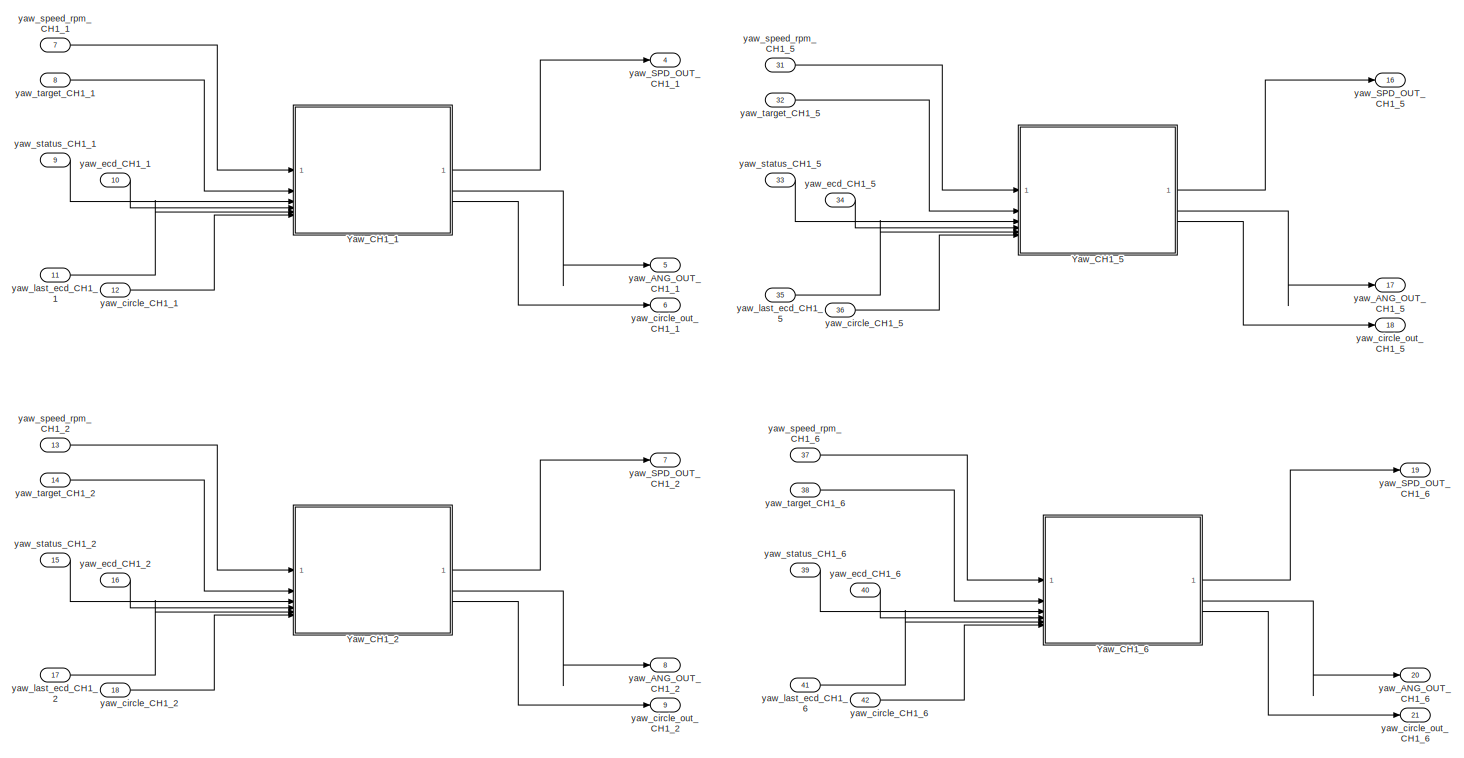
[diagram: root canvas - part 1/5, top left region]
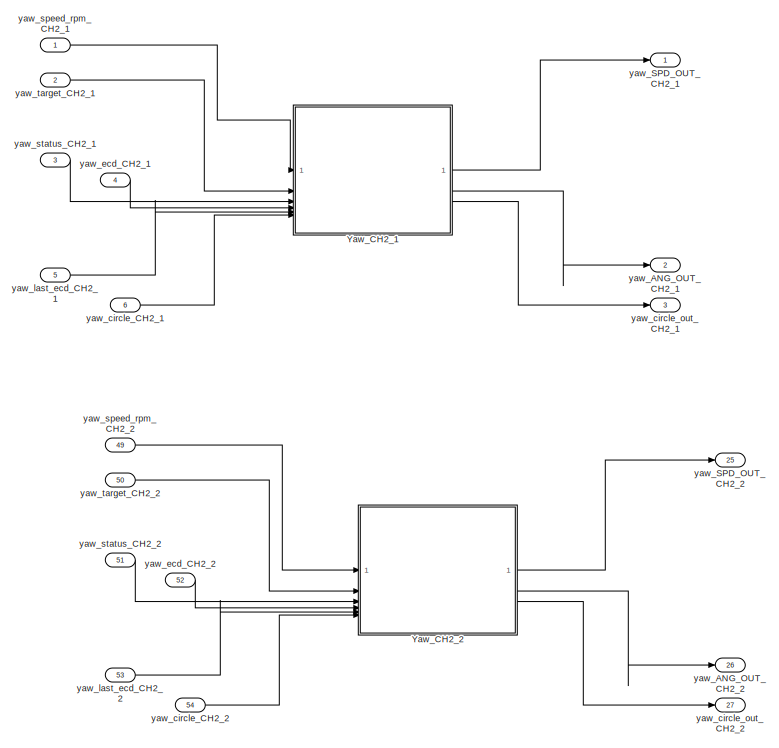
[diagram: root canvas - part 2/5, top center region]
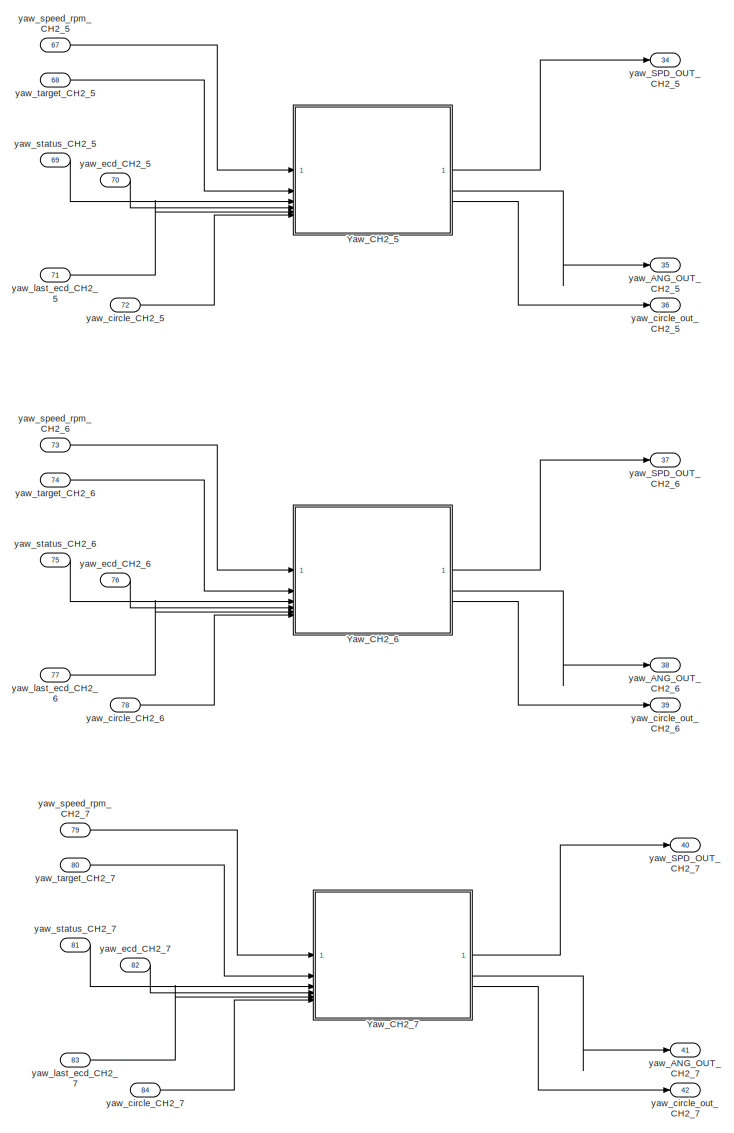
[diagram: root canvas - part 3/5, middle right region]
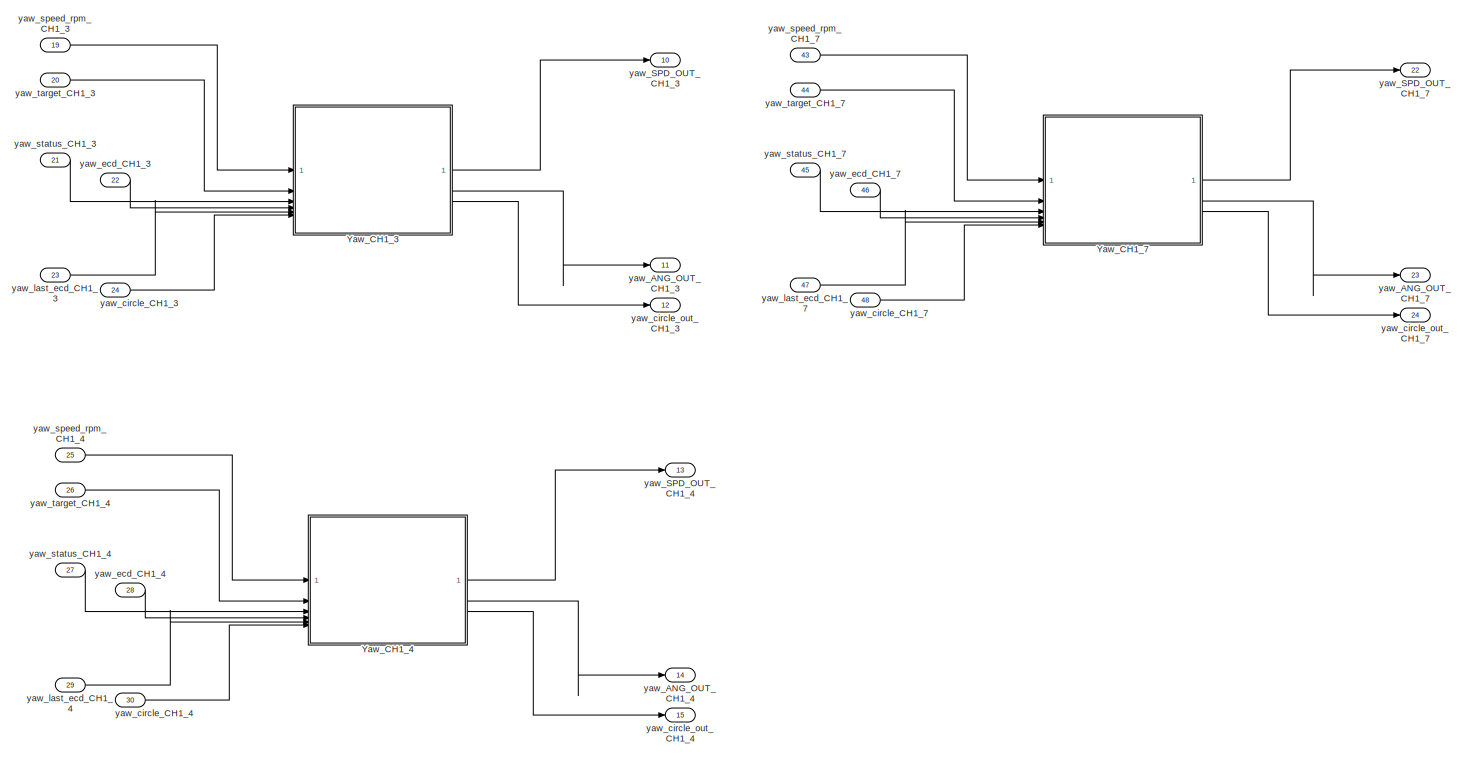
[diagram: root canvas - part 4/5, bottom left region]
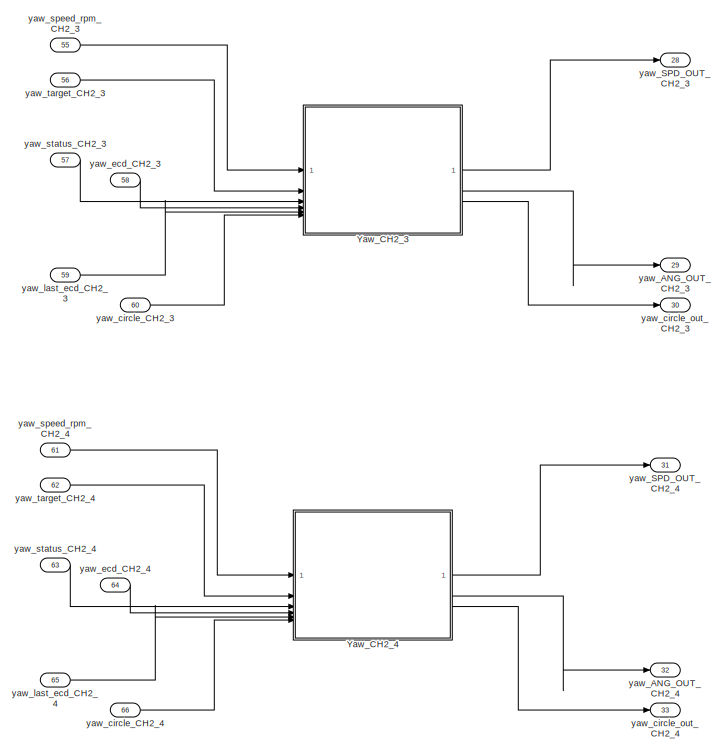
[diagram: root canvas - part 5/5, bottom center region]
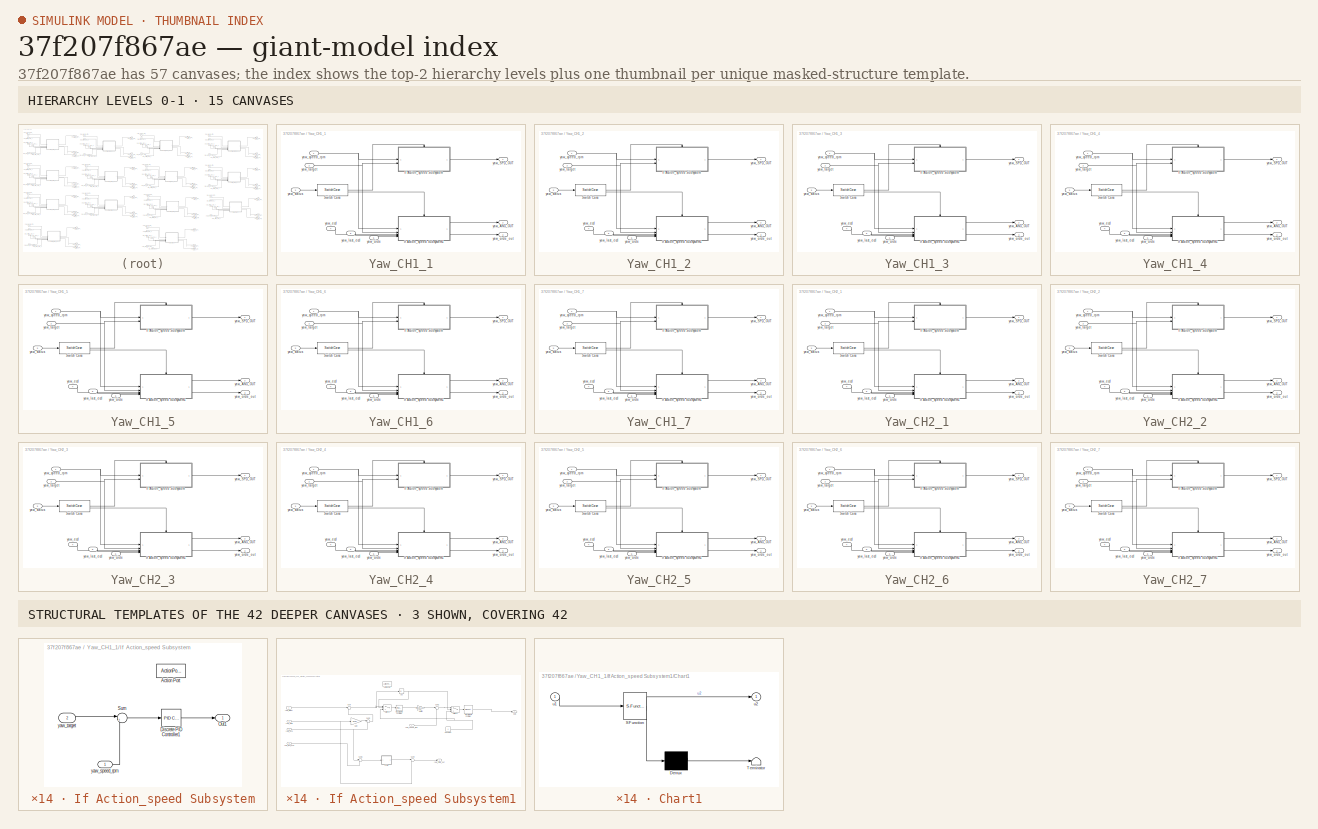
[diagram: thumbnail index - top-2 hierarchy levels (15 canvases) + 3 structural-template representatives of the remaining 42 canvases]
MODEL slx_37f207f867ae
KIND model
CONFIG AbsTol = auto
CONFIG EnableMultiTasking = on
CONFIG FixedStep = 0.001
CONFIG MaxStep = auto
CONFIG MinStep = auto
CONFIG RelTol = 1e-3
CONFIG SampleTimeConstraint = Unconstrained
CONFIG SolverName = FixedStepAuto
CONFIG StartTime = 0.0
CONFIG StopTime = 50
BLOCK [SubSystem] Yaw_CH1_1
BLOCK [SubSystem] Yaw_CH1_1/If Action_speed Subsystem
  TreatAsAtomicUnit = on
BLOCK [ActionPort] Yaw_CH1_1/If Action_speed Subsystem/Action Port
  ActionPortLabel = case [ 1 ]:
BLOCK [Reference] Yaw_CH1_1/If Action_speed Subsystem/Discrete PID Controller1  REF=slpidlib/PID Controller
  LibrarySourceBlock = simulink/Discrete/Discrete PID Controller
  SourceBlock = slpidlib/PID Controller
  SourceType = PID 1dof
BLOCK [Outport] Yaw_CH1_1/If Action_speed Subsystem/Out1
  OutDataTypeStr = single
BLOCK [Sum] Yaw_CH1_1/If Action_speed Subsystem/Sum
  Inputs = |+-
  OutDataTypeStr = single
BLOCK [Inport] Yaw_CH1_1/If Action_speed Subsystem/yaw_speed_rpm
  OutDataTypeStr = single
BLOCK [Inport] Yaw_CH1_1/If Action_speed Subsystem/yaw_target
  OutDataTypeStr = single
  Port = 2
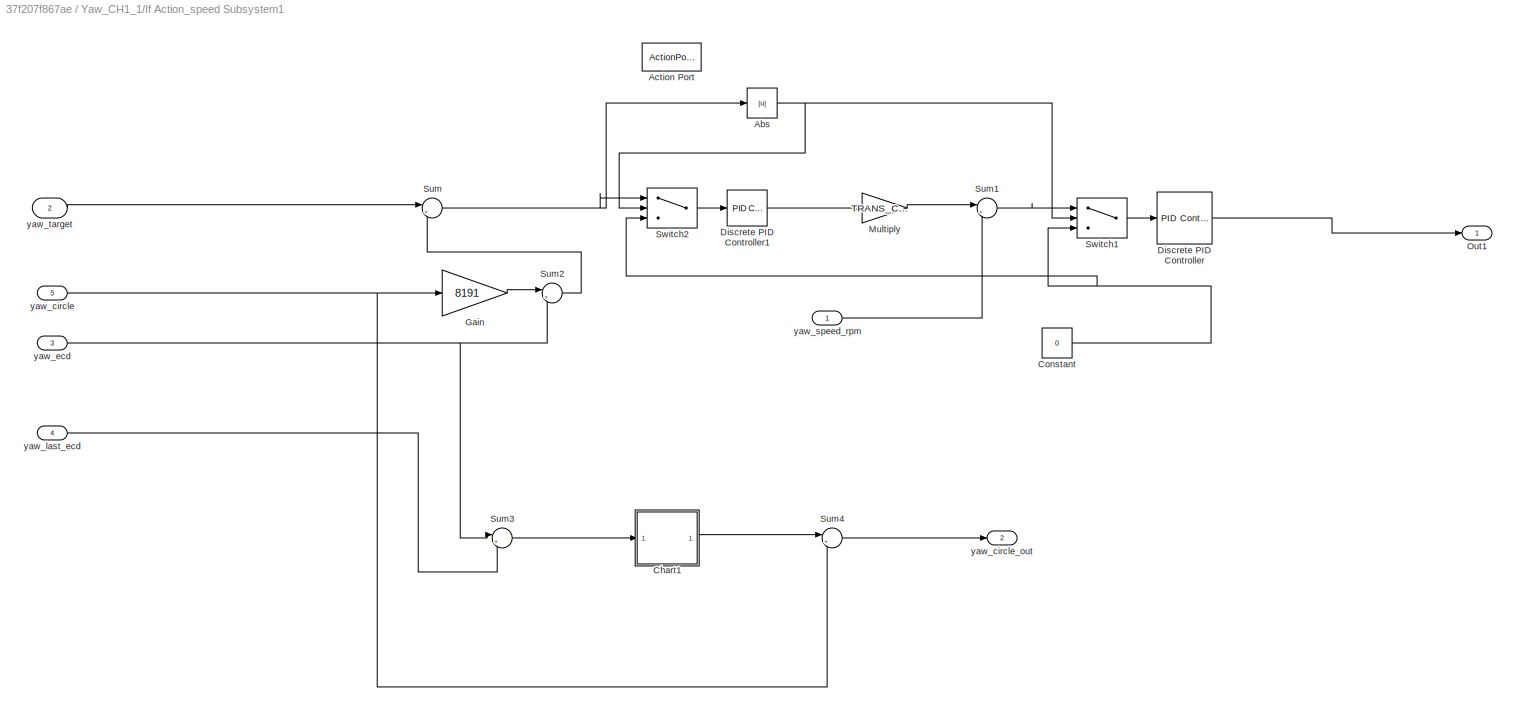
BLOCK [SubSystem] Yaw_CH1_1/If Action_speed Subsystem1
  TreatAsAtomicUnit = on
BLOCK [Abs] Yaw_CH1_1/If Action_speed Subsystem1/Abs
  OutDataTypeStr = single
  SaturateOnIntegerOverflow = off
BLOCK [ActionPort] Yaw_CH1_1/If Action_speed Subsystem1/Action Port
  ActionPortLabel = case [ 2 ]:
BLOCK [SubSystem] Yaw_CH1_1/If Action_speed Subsystem1/Chart1
  ErrorFcn = Stateflow.Translate.translate
  PermitHierarchicalResolution = ExplicitOnly
  SFBlockType = Chart
  TreatAsAtomicUnit = on
BLOCK [Demux] Yaw_CH1_1/If Action_speed Subsystem1/Chart1/ Demux 
  Outputs = 1
BLOCK [S-Function] Yaw_CH1_1/If Action_speed Subsystem1/Chart1/ SFunction 
  EnableBusSupport = on
  FunctionName = sf_sfun
  PortCounts = [1 2]
  SFcnIsStateOwnerBlock = off
  SFunctionDeploymentMode = off
  Tag = Stateflow S-Function 1
BLOCK [Terminator] Yaw_CH1_1/If Action_speed Subsystem1/Chart1/ Terminator 
BLOCK [Inport] Yaw_CH1_1/If Action_speed Subsystem1/Chart1/u1
BLOCK [Outport] Yaw_CH1_1/If Action_speed Subsystem1/Chart1/u2
BLOCK [Constant] Yaw_CH1_1/If Action_speed Subsystem1/Constant
  OutDataTypeStr = single
  Value = 0
BLOCK [Reference] Yaw_CH1_1/If Action_speed Subsystem1/Discrete PID Controller  REF=slpidlib/PID Controller
  LibrarySourceBlock = simulink/Discrete/Discrete PID Controller
  SourceBlock = slpidlib/PID Controller
  SourceType = PID 1dof
BLOCK [Reference] Yaw_CH1_1/If Action_speed Subsystem1/Discrete PID Controller1  REF=slpidlib/PID Controller
  LibrarySourceBlock = simulink/Discrete/Discrete PID Controller
  SourceBlock = slpidlib/PID Controller
  SourceType = PID 1dof
BLOCK [Gain] Yaw_CH1_1/If Action_speed Subsystem1/Gain
  Gain = 8191
  OutDataTypeStr = single
BLOCK [Gain] Yaw_CH1_1/If Action_speed Subsystem1/Multiply
  Gain = TRANS_CH1_1
  OutDataTypeStr = single
BLOCK [Outport] Yaw_CH1_1/If Action_speed Subsystem1/Out1
  OutDataTypeStr = single
BLOCK [Sum] Yaw_CH1_1/If Action_speed Subsystem1/Sum
  Inputs = |+-
  OutDataTypeStr = single
BLOCK [Sum] Yaw_CH1_1/If Action_speed Subsystem1/Sum1
  Inputs = |+-
  OutDataTypeStr = single
BLOCK [Sum] Yaw_CH1_1/If Action_speed Subsystem1/Sum2
  Inputs = |++
  OutDataTypeStr = single
BLOCK [Sum] Yaw_CH1_1/If Action_speed Subsystem1/Sum3
  Inputs = |+-
  OutDataTypeStr = single
BLOCK [Sum] Yaw_CH1_1/If Action_speed Subsystem1/Sum4
  Inputs = |++
  OutDataTypeStr = single
BLOCK [Switch] Yaw_CH1_1/If Action_speed Subsystem1/Switch1
  Criteria = u2 > Threshold
  InputSameDT = off
  OutDataTypeStr = single
  SaturateOnIntegerOverflow = off
  Threshold = DEADBAND_CH1_1
BLOCK [Switch] Yaw_CH1_1/If Action_speed Subsystem1/Switch2
  Criteria = u2 > Threshold
  InputSameDT = off
  OutDataTypeStr = single
  SaturateOnIntegerOverflow = off
  Threshold = DEADBAND_CH1_1
BLOCK [Inport] Yaw_CH1_1/If Action_speed Subsystem1/yaw_circle
  OutDataTypeStr = single
  Port = 5
BLOCK [Outport] Yaw_CH1_1/If Action_speed Subsystem1/yaw_circle_out
  OutDataTypeStr = single
  Port = 2
BLOCK [Inport] Yaw_CH1_1/If Action_speed Subsystem1/yaw_ecd
  OutDataTypeStr = single
  Port = 3
BLOCK [Inport] Yaw_CH1_1/If Action_speed Subsystem1/yaw_last_ecd
  OutDataTypeStr = single
  Port = 4
BLOCK [Inport] Yaw_CH1_1/If Action_speed Subsystem1/yaw_speed_rpm
  OutDataTypeStr = single
BLOCK [Inport] Yaw_CH1_1/If Action_speed Subsystem1/yaw_target
  OutDataTypeStr = single
  Port = 2
BLOCK [SwitchCase] Yaw_CH1_1/Switch Case
  CaseConditions = {1,2}
  ShowDefaultCase = off
BLOCK [Outport] Yaw_CH1_1/yaw_ANG_OUT
  OutDataTypeStr = single
  Port = 2
BLOCK [Outport] Yaw_CH1_1/yaw_SPD_OUT
  OutDataTypeStr = single
BLOCK [Inport] Yaw_CH1_1/yaw_circle
  OutDataTypeStr = single
  Port = 6
BLOCK [Outport] Yaw_CH1_1/yaw_circle_out
  OutDataTypeStr = single
  Port = 3
BLOCK [Inport] Yaw_CH1_1/yaw_ecd
  OutDataTypeStr = single
  Port = 4
BLOCK [Inport] Yaw_CH1_1/yaw_last_ecd
  OutDataTypeStr = single
  Port = 5
BLOCK [Inport] Yaw_CH1_1/yaw_speed_rpm
  OutDataTypeStr = single
BLOCK [Inport] Yaw_CH1_1/yaw_status
  OutDataTypeStr = single
  Port = 3
BLOCK [Inport] Yaw_CH1_1/yaw_target
  OutDataTypeStr = single
  Port = 2
BLOCK [SubSystem] Yaw_CH1_2
BLOCK [SubSystem] Yaw_CH1_2/If Action_speed Subsystem
  TreatAsAtomicUnit = on
BLOCK [ActionPort] Yaw_CH1_2/If Action_speed Subsystem/Action Port
  ActionPortLabel = case [ 1 ]:
BLOCK [Reference] Yaw_CH1_2/If Action_speed Subsystem/Discrete PID Controller1  REF=slpidlib/PID Controller
  LibrarySourceBlock = simulink/Discrete/Discrete PID Controller
  SourceBlock = slpidlib/PID Controller
  SourceType = PID 1dof
BLOCK [Outport] Yaw_CH1_2/If Action_speed Subsystem/Out1
  OutDataTypeStr = single
BLOCK [Sum] Yaw_CH1_2/If Action_speed Subsystem/Sum
  Inputs = |+-
  OutDataTypeStr = single
BLOCK [Inport] Yaw_CH1_2/If Action_speed Subsystem/yaw_speed_rpm
  OutDataTypeStr = single
BLOCK [Inport] Yaw_CH1_2/If Action_speed Subsystem/yaw_target
  OutDataTypeStr = single
  Port = 2
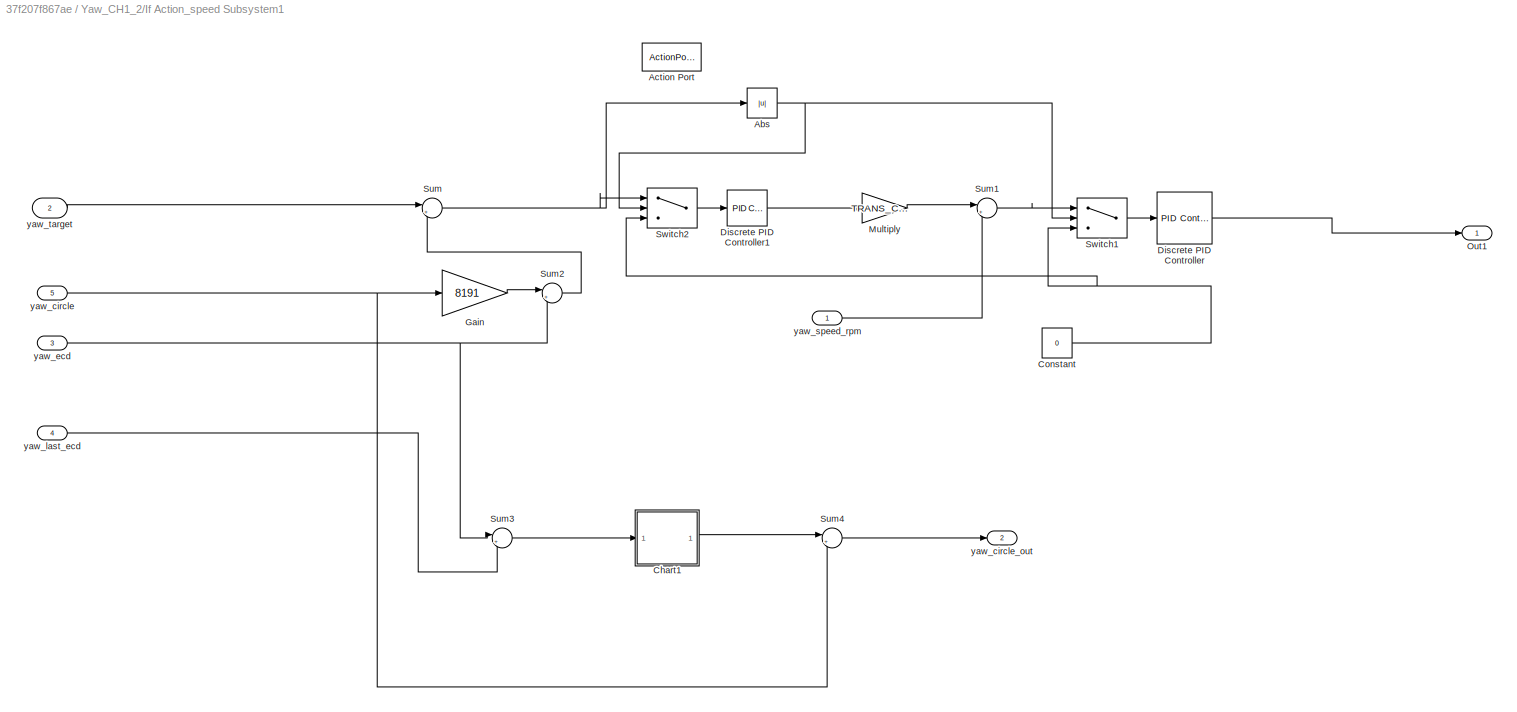
BLOCK [SubSystem] Yaw_CH1_2/If Action_speed Subsystem1
  TreatAsAtomicUnit = on
BLOCK [Abs] Yaw_CH1_2/If Action_speed Subsystem1/Abs
  OutDataTypeStr = single
  SaturateOnIntegerOverflow = off
BLOCK [ActionPort] Yaw_CH1_2/If Action_speed Subsystem1/Action Port
  ActionPortLabel = case [ 2 ]:
BLOCK [SubSystem] Yaw_CH1_2/If Action_speed Subsystem1/Chart1
  ErrorFcn = Stateflow.Translate.translate
  PermitHierarchicalResolution = ExplicitOnly
  SFBlockType = Chart
  TreatAsAtomicUnit = on
BLOCK [Demux] Yaw_CH1_2/If Action_speed Subsystem1/Chart1/ Demux 
  Outputs = 1
BLOCK [S-Function] Yaw_CH1_2/If Action_speed Subsystem1/Chart1/ SFunction 
  EnableBusSupport = on
  FunctionName = sf_sfun
  PortCounts = [1 2]
  SFcnIsStateOwnerBlock = off
  SFunctionDeploymentMode = off
  Tag = Stateflow S-Function 2
BLOCK [Terminator] Yaw_CH1_2/If Action_speed Subsystem1/Chart1/ Terminator 
BLOCK [Inport] Yaw_CH1_2/If Action_speed Subsystem1/Chart1/u1
BLOCK [Outport] Yaw_CH1_2/If Action_speed Subsystem1/Chart1/u2
BLOCK [Constant] Yaw_CH1_2/If Action_speed Subsystem1/Constant
  OutDataTypeStr = single
  Value = 0
BLOCK [Reference] Yaw_CH1_2/If Action_speed Subsystem1/Discrete PID Controller  REF=slpidlib/PID Controller
  LibrarySourceBlock = simulink/Discrete/Discrete PID Controller
  SourceBlock = slpidlib/PID Controller
  SourceType = PID 1dof
BLOCK [Reference] Yaw_CH1_2/If Action_speed Subsystem1/Discrete PID Controller1  REF=slpidlib/PID Controller
  LibrarySourceBlock = simulink/Discrete/Discrete PID Controller
  SourceBlock = slpidlib/PID Controller
  SourceType = PID 1dof
BLOCK [Gain] Yaw_CH1_2/If Action_speed Subsystem1/Gain
  Gain = 8191
  OutDataTypeStr = single
BLOCK [Gain] Yaw_CH1_2/If Action_speed Subsystem1/Multiply
  Gain = TRANS_CH1_2
  OutDataTypeStr = single
BLOCK [Outport] Yaw_CH1_2/If Action_speed Subsystem1/Out1
  OutDataTypeStr = single
BLOCK [Sum] Yaw_CH1_2/If Action_speed Subsystem1/Sum
  Inputs = |+-
  OutDataTypeStr = single
BLOCK [Sum] Yaw_CH1_2/If Action_speed Subsystem1/Sum1
  Inputs = |+-
  OutDataTypeStr = single
BLOCK [Sum] Yaw_CH1_2/If Action_speed Subsystem1/Sum2
  Inputs = |++
  OutDataTypeStr = single
BLOCK [Sum] Yaw_CH1_2/If Action_speed Subsystem1/Sum3
  Inputs = |+-
  OutDataTypeStr = single
BLOCK [Sum] Yaw_CH1_2/If Action_speed Subsystem1/Sum4
  Inputs = |++
  OutDataTypeStr = single
BLOCK [Switch] Yaw_CH1_2/If Action_speed Subsystem1/Switch1
  Criteria = u2 > Threshold
  InputSameDT = off
  OutDataTypeStr = single
  SaturateOnIntegerOverflow = off
  Threshold = DEADBAND_CH1_2
BLOCK [Switch] Yaw_CH1_2/If Action_speed Subsystem1/Switch2
  Criteria = u2 > Threshold
  InputSameDT = off
  OutDataTypeStr = single
  SaturateOnIntegerOverflow = off
  Threshold = DEADBAND_CH1_2
BLOCK [Inport] Yaw_CH1_2/If Action_speed Subsystem1/yaw_circle
  OutDataTypeStr = single
  Port = 5
BLOCK [Outport] Yaw_CH1_2/If Action_speed Subsystem1/yaw_circle_out
  OutDataTypeStr = single
  Port = 2
BLOCK [Inport] Yaw_CH1_2/If Action_speed Subsystem1/yaw_ecd
  OutDataTypeStr = single
  Port = 3
BLOCK [Inport] Yaw_CH1_2/If Action_speed Subsystem1/yaw_last_ecd
  OutDataTypeStr = single
  Port = 4
BLOCK [Inport] Yaw_CH1_2/If Action_speed Subsystem1/yaw_speed_rpm
  OutDataTypeStr = single
BLOCK [Inport] Yaw_CH1_2/If Action_speed Subsystem1/yaw_target
  OutDataTypeStr = single
  Port = 2
BLOCK [SwitchCase] Yaw_CH1_2/Switch Case
  CaseConditions = {1,2}
  ShowDefaultCase = off
BLOCK [Outport] Yaw_CH1_2/yaw_ANG_OUT
  OutDataTypeStr = single
  Port = 2
BLOCK [Outport] Yaw_CH1_2/yaw_SPD_OUT
  OutDataTypeStr = single
BLOCK [Inport] Yaw_CH1_2/yaw_circle
  OutDataTypeStr = single
  Port = 6
BLOCK [Outport] Yaw_CH1_2/yaw_circle_out
  OutDataTypeStr = single
  Port = 3
BLOCK [Inport] Yaw_CH1_2/yaw_ecd
  OutDataTypeStr = single
  Port = 4
BLOCK [Inport] Yaw_CH1_2/yaw_last_ecd
  OutDataTypeStr = single
  Port = 5
BLOCK [Inport] Yaw_CH1_2/yaw_speed_rpm
  OutDataTypeStr = single
BLOCK [Inport] Yaw_CH1_2/yaw_status
  OutDataTypeStr = single
  Port = 3
BLOCK [Inport] Yaw_CH1_2/yaw_target
  OutDataTypeStr = single
  Port = 2
BLOCK [SubSystem] Yaw_CH1_3
BLOCK [SubSystem] Yaw_CH1_3/If Action_speed Subsystem
  TreatAsAtomicUnit = on
BLOCK [ActionPort] Yaw_CH1_3/If Action_speed Subsystem/Action Port
  ActionPortLabel = case [ 1 ]:
BLOCK [Reference] Yaw_CH1_3/If Action_speed Subsystem/Discrete PID Controller1  REF=slpidlib/PID Controller
  LibrarySourceBlock = simulink/Discrete/Discrete PID Controller
  SourceBlock = slpidlib/PID Controller
  SourceType = PID 1dof
BLOCK [Outport] Yaw_CH1_3/If Action_speed Subsystem/Out1
  OutDataTypeStr = single
BLOCK [Sum] Yaw_CH1_3/If Action_speed Subsystem/Sum
  Inputs = |+-
  OutDataTypeStr = single
BLOCK [Inport] Yaw_CH1_3/If Action_speed Subsystem/yaw_speed_rpm
  OutDataTypeStr = single
BLOCK [Inport] Yaw_CH1_3/If Action_speed Subsystem/yaw_target
  OutDataTypeStr = single
  Port = 2
BLOCK [SubSystem] Yaw_CH1_3/If Action_speed Subsystem1
  TreatAsAtomicUnit = on
BLOCK [Abs] Yaw_CH1_3/If Action_speed Subsystem1/Abs
  OutDataTypeStr = single
  SaturateOnIntegerOverflow = off
BLOCK [ActionPort] Yaw_CH1_3/If Action_speed Subsystem1/Action Port
  ActionPortLabel = case [ 2 ]:
BLOCK [SubSystem] Yaw_CH1_3/If Action_speed Subsystem1/Chart1
  ErrorFcn = Stateflow.Translate.translate
  PermitHierarchicalResolution = ExplicitOnly
  SFBlockType = Chart
  TreatAsAtomicUnit = on
BLOCK [Demux] Yaw_CH1_3/If Action_speed Subsystem1/Chart1/ Demux 
  Outputs = 1
BLOCK [S-Function] Yaw_CH1_3/If Action_speed Subsystem1/Chart1/ SFunction 
  EnableBusSupport = on
  FunctionName = sf_sfun
  PortCounts = [1 2]
  SFcnIsStateOwnerBlock = off
  SFunctionDeploymentMode = off
  Tag = Stateflow S-Function 4
BLOCK [Terminator] Yaw_CH1_3/If Action_speed Subsystem1/Chart1/ Terminator 
BLOCK [Inport] Yaw_CH1_3/If Action_speed Subsystem1/Chart1/u1
BLOCK [Outport] Yaw_CH1_3/If Action_speed Subsystem1/Chart1/u2
BLOCK [Constant] Yaw_CH1_3/If Action_speed Subsystem1/Constant
  OutDataTypeStr = single
  Value = 0
BLOCK [Reference] Yaw_CH1_3/If Action_speed Subsystem1/Discrete PID Controller  REF=slpidlib/PID Controller
  LibrarySourceBlock = simulink/Discrete/Discrete PID Controller
  SourceBlock = slpidlib/PID Controller
  SourceType = PID 1dof
BLOCK [Reference] Yaw_CH1_3/If Action_speed Subsystem1/Discrete PID Controller1  REF=slpidlib/PID Controller
  LibrarySourceBlock = simulink/Discrete/Discrete PID Controller
  SourceBlock = slpidlib/PID Controller
  SourceType = PID 1dof
BLOCK [Gain] Yaw_CH1_3/If Action_speed Subsystem1/Gain
  Gain = 8191
  OutDataTypeStr = single
BLOCK [Gain] Yaw_CH1_3/If Action_speed Subsystem1/Multiply
  Gain = TRANS_CH1_3
  OutDataTypeStr = single
BLOCK [Outport] Yaw_CH1_3/If Action_speed Subsystem1/Out1
  OutDataTypeStr = single
BLOCK [Sum] Yaw_CH1_3/If Action_speed Subsystem1/Sum
  Inputs = |+-
  OutDataTypeStr = single
BLOCK [Sum] Yaw_CH1_3/If Action_speed Subsystem1/Sum1
  Inputs = |+-
  OutDataTypeStr = single
BLOCK [Sum] Yaw_CH1_3/If Action_speed Subsystem1/Sum2
  Inputs = |++
  OutDataTypeStr = single
BLOCK [Sum] Yaw_CH1_3/If Action_speed Subsystem1/Sum3
  Inputs = |+-
  OutDataTypeStr = single
BLOCK [Sum] Yaw_CH1_3/If Action_speed Subsystem1/Sum4
  Inputs = |++
  OutDataTypeStr = single
BLOCK [Switch] Yaw_CH1_3/If Action_speed Subsystem1/Switch1
  Criteria = u2 > Threshold
  InputSameDT = off
  OutDataTypeStr = single
  SaturateOnIntegerOverflow = off
  Threshold = DEADBAND_CH1_3
BLOCK [Switch] Yaw_CH1_3/If Action_speed Subsystem1/Switch2
  Criteria = u2 > Threshold
  InputSameDT = off
  OutDataTypeStr = single
  SaturateOnIntegerOverflow = off
  Threshold = DEADBAND_CH1_3
BLOCK [Inport] Yaw_CH1_3/If Action_speed Subsystem1/yaw_circle
  OutDataTypeStr = single
  Port = 5
BLOCK [Outport] Yaw_CH1_3/If Action_speed Subsystem1/yaw_circle_out
  OutDataTypeStr = single
  Port = 2
BLOCK [Inport] Yaw_CH1_3/If Action_speed Subsystem1/yaw_ecd
  OutDataTypeStr = single
  Port = 3
BLOCK [Inport] Yaw_CH1_3/If Action_speed Subsystem1/yaw_last_ecd
  OutDataTypeStr = single
  Port = 4
BLOCK [Inport] Yaw_CH1_3/If Action_speed Subsystem1/yaw_speed_rpm
  OutDataTypeStr = single
BLOCK [Inport] Yaw_CH1_3/If Action_speed Subsystem1/yaw_target
  OutDataTypeStr = single
  Port = 2
BLOCK [SwitchCase] Yaw_CH1_3/Switch Case
  CaseConditions = {1,2}
  ShowDefaultCase = off
BLOCK [Outport] Yaw_CH1_3/yaw_ANG_OUT
  OutDataTypeStr = single
  Port = 2
BLOCK [Outport] Yaw_CH1_3/yaw_SPD_OUT
  OutDataTypeStr = single
BLOCK [Inport] Yaw_CH1_3/yaw_circle
  OutDataTypeStr = single
  Port = 6
BLOCK [Outport] Yaw_CH1_3/yaw_circle_out
  OutDataTypeStr = single
  Port = 3
BLOCK [Inport] Yaw_CH1_3/yaw_ecd
  OutDataTypeStr = single
  Port = 4
BLOCK [Inport] Yaw_CH1_3/yaw_last_ecd
  OutDataTypeStr = single
  Port = 5
BLOCK [Inport] Yaw_CH1_3/yaw_speed_rpm
  OutDataTypeStr = single
BLOCK [Inport] Yaw_CH1_3/yaw_status
  OutDataTypeStr = single
  Port = 3
BLOCK [Inport] Yaw_CH1_3/yaw_target
  OutDataTypeStr = single
  Port = 2
BLOCK [SubSystem] Yaw_CH1_4
BLOCK [SubSystem] Yaw_CH1_4/If Action_speed Subsystem
  TreatAsAtomicUnit = on
BLOCK [ActionPort] Yaw_CH1_4/If Action_speed Subsystem/Action Port
  ActionPortLabel = case [ 1 ]:
BLOCK [Reference] Yaw_CH1_4/If Action_speed Subsystem/Discrete PID Controller1  REF=slpidlib/PID Controller
  LibrarySourceBlock = simulink/Discrete/Discrete PID Controller
  SourceBlock = slpidlib/PID Controller
  SourceType = PID 1dof
BLOCK [Outport] Yaw_CH1_4/If Action_speed Subsystem/Out1
  OutDataTypeStr = single
BLOCK [Sum] Yaw_CH1_4/If Action_speed Subsystem/Sum
  Inputs = |+-
  OutDataTypeStr = single
BLOCK [Inport] Yaw_CH1_4/If Action_speed Subsystem/yaw_speed_rpm
  OutDataTypeStr = single
BLOCK [Inport] Yaw_CH1_4/If Action_speed Subsystem/yaw_target
  OutDataTypeStr = single
  Port = 2
BLOCK [SubSystem] Yaw_CH1_4/If Action_speed Subsystem1
  TreatAsAtomicUnit = on
BLOCK [Abs] Yaw_CH1_4/If Action_speed Subsystem1/Abs
  OutDataTypeStr = single
  SaturateOnIntegerOverflow = off
BLOCK [ActionPort] Yaw_CH1_4/If Action_speed Subsystem1/Action Port
  ActionPortLabel = case [ 2 ]:
BLOCK [SubSystem] Yaw_CH1_4/If Action_speed Subsystem1/Chart1
  ErrorFcn = Stateflow.Translate.translate
  PermitHierarchicalResolution = ExplicitOnly
  SFBlockType = Chart
  TreatAsAtomicUnit = on
BLOCK [Demux] Yaw_CH1_4/If Action_speed Subsystem1/Chart1/ Demux 
  Outputs = 1
BLOCK [S-Function] Yaw_CH1_4/If Action_speed Subsystem1/Chart1/ SFunction 
  EnableBusSupport = on
  FunctionName = sf_sfun
  PortCounts = [1 2]
  SFcnIsStateOwnerBlock = off
  SFunctionDeploymentMode = off
  Tag = Stateflow S-Function 5
BLOCK [Terminator] Yaw_CH1_4/If Action_speed Subsystem1/Chart1/ Terminator 
BLOCK [Inport] Yaw_CH1_4/If Action_speed Subsystem1/Chart1/u1
BLOCK [Outport] Yaw_CH1_4/If Action_speed Subsystem1/Chart1/u2
BLOCK [Constant] Yaw_CH1_4/If Action_speed Subsystem1/Constant
  OutDataTypeStr = single
  Value = 0
BLOCK [Reference] Yaw_CH1_4/If Action_speed Subsystem1/Discrete PID Controller  REF=slpidlib/PID Controller
  LibrarySourceBlock = simulink/Discrete/Discrete PID Controller
  SourceBlock = slpidlib/PID Controller
  SourceType = PID 1dof
BLOCK [Reference] Yaw_CH1_4/If Action_speed Subsystem1/Discrete PID Controller1  REF=slpidlib/PID Controller
  LibrarySourceBlock = simulink/Discrete/Discrete PID Controller
  SourceBlock = slpidlib/PID Controller
  SourceType = PID 1dof
BLOCK [Gain] Yaw_CH1_4/If Action_speed Subsystem1/Gain
  Gain = 8191
  OutDataTypeStr = single
BLOCK [Gain] Yaw_CH1_4/If Action_speed Subsystem1/Multiply
  Gain = TRANS_CH1_4
  OutDataTypeStr = single
BLOCK [Outport] Yaw_CH1_4/If Action_speed Subsystem1/Out1
  OutDataTypeStr = single
BLOCK [Sum] Yaw_CH1_4/If Action_speed Subsystem1/Sum
  Inputs = |+-
  OutDataTypeStr = single
BLOCK [Sum] Yaw_CH1_4/If Action_speed Subsystem1/Sum1
  Inputs = |+-
  OutDataTypeStr = single
BLOCK [Sum] Yaw_CH1_4/If Action_speed Subsystem1/Sum2
  Inputs = |++
  OutDataTypeStr = single
BLOCK [Sum] Yaw_CH1_4/If Action_speed Subsystem1/Sum3
  Inputs = |+-
  OutDataTypeStr = single
BLOCK [Sum] Yaw_CH1_4/If Action_speed Subsystem1/Sum4
  Inputs = |++
  OutDataTypeStr = single
BLOCK [Switch] Yaw_CH1_4/If Action_speed Subsystem1/Switch1
  Criteria = u2 > Threshold
  InputSameDT = off
  OutDataTypeStr = single
  SaturateOnIntegerOverflow = off
  Threshold = DEADBAND_CH1_4
BLOCK [Switch] Yaw_CH1_4/If Action_speed Subsystem1/Switch2
  Criteria = u2 > Threshold
  InputSameDT = off
  OutDataTypeStr = single
  SaturateOnIntegerOverflow = off
  Threshold = DEADBAND_CH1_4
BLOCK [Inport] Yaw_CH1_4/If Action_speed Subsystem1/yaw_circle
  OutDataTypeStr = single
  Port = 5
BLOCK [Outport] Yaw_CH1_4/If Action_speed Subsystem1/yaw_circle_out
  OutDataTypeStr = single
  Port = 2
BLOCK [Inport] Yaw_CH1_4/If Action_speed Subsystem1/yaw_ecd
  OutDataTypeStr = single
  Port = 3
BLOCK [Inport] Yaw_CH1_4/If Action_speed Subsystem1/yaw_last_ecd
  OutDataTypeStr = single
  Port = 4
BLOCK [Inport] Yaw_CH1_4/If Action_speed Subsystem1/yaw_speed_rpm
  OutDataTypeStr = single
BLOCK [Inport] Yaw_CH1_4/If Action_speed Subsystem1/yaw_target
  OutDataTypeStr = single
  Port = 2
BLOCK [SwitchCase] Yaw_CH1_4/Switch Case
  CaseConditions = {1,2}
  ShowDefaultCase = off
BLOCK [Outport] Yaw_CH1_4/yaw_ANG_OUT
  OutDataTypeStr = single
  Port = 2
BLOCK [Outport] Yaw_CH1_4/yaw_SPD_OUT
  OutDataTypeStr = single
BLOCK [Inport] Yaw_CH1_4/yaw_circle
  OutDataTypeStr = single
  Port = 6
BLOCK [Outport] Yaw_CH1_4/yaw_circle_out
  OutDataTypeStr = single
  Port = 3
BLOCK [Inport] Yaw_CH1_4/yaw_ecd
  OutDataTypeStr = single
  Port = 4
BLOCK [Inport] Yaw_CH1_4/yaw_last_ecd
  OutDataTypeStr = single
  Port = 5
BLOCK [Inport] Yaw_CH1_4/yaw_speed_rpm
  OutDataTypeStr = single
BLOCK [Inport] Yaw_CH1_4/yaw_status
  OutDataTypeStr = single
  Port = 3
BLOCK [Inport] Yaw_CH1_4/yaw_target
  OutDataTypeStr = single
  Port = 2
BLOCK [SubSystem] Yaw_CH1_5
BLOCK [SubSystem] Yaw_CH1_5/If Action_speed Subsystem
  TreatAsAtomicUnit = on
BLOCK [ActionPort] Yaw_CH1_5/If Action_speed Subsystem/Action Port
  ActionPortLabel = case [ 1 ]:
BLOCK [Reference] Yaw_CH1_5/If Action_speed Subsystem/Discrete PID Controller1  REF=slpidlib/PID Controller
  LibrarySourceBlock = simulink/Discrete/Discrete PID Controller
  SourceBlock = slpidlib/PID Controller
  SourceType = PID 1dof
BLOCK [Outport] Yaw_CH1_5/If Action_speed Subsystem/Out1
  OutDataTypeStr = single
BLOCK [Sum] Yaw_CH1_5/If Action_speed Subsystem/Sum
  Inputs = |+-
  OutDataTypeStr = single
BLOCK [Inport] Yaw_CH1_5/If Action_speed Subsystem/yaw_speed_rpm
  OutDataTypeStr = single
BLOCK [Inport] Yaw_CH1_5/If Action_speed Subsystem/yaw_target
  OutDataTypeStr = single
  Port = 2
BLOCK [SubSystem] Yaw_CH1_5/If Action_speed Subsystem1
  TreatAsAtomicUnit = on
BLOCK [Abs] Yaw_CH1_5/If Action_speed Subsystem1/Abs
  OutDataTypeStr = single
  SaturateOnIntegerOverflow = off
BLOCK [ActionPort] Yaw_CH1_5/If Action_speed Subsystem1/Action Port
  ActionPortLabel = case [ 2 ]:
BLOCK [SubSystem] Yaw_CH1_5/If Action_speed Subsystem1/Chart1
  ErrorFcn = Stateflow.Translate.translate
  PermitHierarchicalResolution = ExplicitOnly
  SFBlockType = Chart
  TreatAsAtomicUnit = on
BLOCK [Demux] Yaw_CH1_5/If Action_speed Subsystem1/Chart1/ Demux 
  Outputs = 1
BLOCK [S-Function] Yaw_CH1_5/If Action_speed Subsystem1/Chart1/ SFunction 
  EnableBusSupport = on
  FunctionName = sf_sfun
  PortCounts = [1 2]
  SFcnIsStateOwnerBlock = off
  SFunctionDeploymentMode = off
  Tag = Stateflow S-Function 6
BLOCK [Terminator] Yaw_CH1_5/If Action_speed Subsystem1/Chart1/ Terminator 
BLOCK [Inport] Yaw_CH1_5/If Action_speed Subsystem1/Chart1/u1
BLOCK [Outport] Yaw_CH1_5/If Action_speed Subsystem1/Chart1/u2
BLOCK [Constant] Yaw_CH1_5/If Action_speed Subsystem1/Constant
  OutDataTypeStr = single
  Value = 0
BLOCK [Reference] Yaw_CH1_5/If Action_speed Subsystem1/Discrete PID Controller  REF=slpidlib/PID Controller
  LibrarySourceBlock = simulink/Discrete/Discrete PID Controller
  SourceBlock = slpidlib/PID Controller
  SourceType = PID 1dof
BLOCK [Reference] Yaw_CH1_5/If Action_speed Subsystem1/Discrete PID Controller1  REF=slpidlib/PID Controller
  LibrarySourceBlock = simulink/Discrete/Discrete PID Controller
  SourceBlock = slpidlib/PID Controller
  SourceType = PID 1dof
BLOCK [Gain] Yaw_CH1_5/If Action_speed Subsystem1/Gain
  Gain = 8191
  OutDataTypeStr = single
BLOCK [Gain] Yaw_CH1_5/If Action_speed Subsystem1/Multiply
  Gain = TRANS_CH1_5
  OutDataTypeStr = single
BLOCK [Outport] Yaw_CH1_5/If Action_speed Subsystem1/Out1
  OutDataTypeStr = single
BLOCK [Sum] Yaw_CH1_5/If Action_speed Subsystem1/Sum
  Inputs = |+-
  OutDataTypeStr = single
BLOCK [Sum] Yaw_CH1_5/If Action_speed Subsystem1/Sum1
  Inputs = |+-
  OutDataTypeStr = single
BLOCK [Sum] Yaw_CH1_5/If Action_speed Subsystem1/Sum2
  Inputs = |++
  OutDataTypeStr = single
BLOCK [Sum] Yaw_CH1_5/If Action_speed Subsystem1/Sum3
  Inputs = |+-
  OutDataTypeStr = single
BLOCK [Sum] Yaw_CH1_5/If Action_speed Subsystem1/Sum4
  Inputs = |++
  OutDataTypeStr = single
BLOCK [Switch] Yaw_CH1_5/If Action_speed Subsystem1/Switch1
  Criteria = u2 > Threshold
  InputSameDT = off
  OutDataTypeStr = single
  SaturateOnIntegerOverflow = off
  Threshold = DEADBAND_CH1_5
BLOCK [Switch] Yaw_CH1_5/If Action_speed Subsystem1/Switch2
  Criteria = u2 > Threshold
  InputSameDT = off
  OutDataTypeStr = single
  SaturateOnIntegerOverflow = off
  Threshold = DEADBAND_CH1_5
BLOCK [Inport] Yaw_CH1_5/If Action_speed Subsystem1/yaw_circle
  OutDataTypeStr = single
  Port = 5
BLOCK [Outport] Yaw_CH1_5/If Action_speed Subsystem1/yaw_circle_out
  OutDataTypeStr = single
  Port = 2
BLOCK [Inport] Yaw_CH1_5/If Action_speed Subsystem1/yaw_ecd
  OutDataTypeStr = single
  Port = 3
BLOCK [Inport] Yaw_CH1_5/If Action_speed Subsystem1/yaw_last_ecd
  OutDataTypeStr = single
  Port = 4
BLOCK [Inport] Yaw_CH1_5/If Action_speed Subsystem1/yaw_speed_rpm
  OutDataTypeStr = single
BLOCK [Inport] Yaw_CH1_5/If Action_speed Subsystem1/yaw_target
  OutDataTypeStr = single
  Port = 2
BLOCK [SwitchCase] Yaw_CH1_5/Switch Case
  CaseConditions = {1,2}
  ShowDefaultCase = off
BLOCK [Outport] Yaw_CH1_5/yaw_ANG_OUT
  OutDataTypeStr = single
  Port = 2
BLOCK [Outport] Yaw_CH1_5/yaw_SPD_OUT
  OutDataTypeStr = single
BLOCK [Inport] Yaw_CH1_5/yaw_circle
  OutDataTypeStr = single
  Port = 6
BLOCK [Outport] Yaw_CH1_5/yaw_circle_out
  OutDataTypeStr = single
  Port = 3
BLOCK [Inport] Yaw_CH1_5/yaw_ecd
  OutDataTypeStr = single
  Port = 4
BLOCK [Inport] Yaw_CH1_5/yaw_last_ecd
  OutDataTypeStr = single
  Port = 5
BLOCK [Inport] Yaw_CH1_5/yaw_speed_rpm
  OutDataTypeStr = single
BLOCK [Inport] Yaw_CH1_5/yaw_status
  OutDataTypeStr = single
  Port = 3
BLOCK [Inport] Yaw_CH1_5/yaw_target
  OutDataTypeStr = single
  Port = 2
BLOCK [SubSystem] Yaw_CH1_6
BLOCK [SubSystem] Yaw_CH1_6/If Action_speed Subsystem
  TreatAsAtomicUnit = on
BLOCK [ActionPort] Yaw_CH1_6/If Action_speed Subsystem/Action Port
  ActionPortLabel = case [ 1 ]:
BLOCK [Reference] Yaw_CH1_6/If Action_speed Subsystem/Discrete PID Controller1  REF=slpidlib/PID Controller
  LibrarySourceBlock = simulink/Discrete/Discrete PID Controller
  SourceBlock = slpidlib/PID Controller
  SourceType = PID 1dof
BLOCK [Outport] Yaw_CH1_6/If Action_speed Subsystem/Out1
  OutDataTypeStr = single
BLOCK [Sum] Yaw_CH1_6/If Action_speed Subsystem/Sum
  Inputs = |+-
  OutDataTypeStr = single
BLOCK [Inport] Yaw_CH1_6/If Action_speed Subsystem/yaw_speed_rpm
  OutDataTypeStr = single
BLOCK [Inport] Yaw_CH1_6/If Action_speed Subsystem/yaw_target
  OutDataTypeStr = single
  Port = 2
BLOCK [SubSystem] Yaw_CH1_6/If Action_speed Subsystem1
  TreatAsAtomicUnit = on
BLOCK [Abs] Yaw_CH1_6/If Action_speed Subsystem1/Abs
  OutDataTypeStr = single
  SaturateOnIntegerOverflow = off
BLOCK [ActionPort] Yaw_CH1_6/If Action_speed Subsystem1/Action Port
  ActionPortLabel = case [ 2 ]:
BLOCK [SubSystem] Yaw_CH1_6/If Action_speed Subsystem1/Chart1
  ErrorFcn = Stateflow.Translate.translate
  PermitHierarchicalResolution = ExplicitOnly
  SFBlockType = Chart
  TreatAsAtomicUnit = on
BLOCK [Demux] Yaw_CH1_6/If Action_speed Subsystem1/Chart1/ Demux 
  Outputs = 1
BLOCK [S-Function] Yaw_CH1_6/If Action_speed Subsystem1/Chart1/ SFunction 
  EnableBusSupport = on
  FunctionName = sf_sfun
  PortCounts = [1 2]
  SFcnIsStateOwnerBlock = off
  SFunctionDeploymentMode = off
  Tag = Stateflow S-Function 7
BLOCK [Terminator] Yaw_CH1_6/If Action_speed Subsystem1/Chart1/ Terminator 
BLOCK [Inport] Yaw_CH1_6/If Action_speed Subsystem1/Chart1/u1
BLOCK [Outport] Yaw_CH1_6/If Action_speed Subsystem1/Chart1/u2
BLOCK [Constant] Yaw_CH1_6/If Action_speed Subsystem1/Constant
  OutDataTypeStr = single
  Value = 0
BLOCK [Reference] Yaw_CH1_6/If Action_speed Subsystem1/Discrete PID Controller  REF=slpidlib/PID Controller
  LibrarySourceBlock = simulink/Discrete/Discrete PID Controller
  SourceBlock = slpidlib/PID Controller
  SourceType = PID 1dof
BLOCK [Reference] Yaw_CH1_6/If Action_speed Subsystem1/Discrete PID Controller1  REF=slpidlib/PID Controller
  LibrarySourceBlock = simulink/Discrete/Discrete PID Controller
  SourceBlock = slpidlib/PID Controller
  SourceType = PID 1dof
BLOCK [Gain] Yaw_CH1_6/If Action_speed Subsystem1/Gain
  Gain = 8191
  OutDataTypeStr = single
BLOCK [Gain] Yaw_CH1_6/If Action_speed Subsystem1/Multiply
  Gain = TRANS_CH1_6
  OutDataTypeStr = single
BLOCK [Outport] Yaw_CH1_6/If Action_speed Subsystem1/Out1
  OutDataTypeStr = single
BLOCK [Sum] Yaw_CH1_6/If Action_speed Subsystem1/Sum
  Inputs = |+-
  OutDataTypeStr = single
BLOCK [Sum] Yaw_CH1_6/If Action_speed Subsystem1/Sum1
  Inputs = |+-
  OutDataTypeStr = single
BLOCK [Sum] Yaw_CH1_6/If Action_speed Subsystem1/Sum2
  Inputs = |++
  OutDataTypeStr = single
BLOCK [Sum] Yaw_CH1_6/If Action_speed Subsystem1/Sum3
  Inputs = |+-
  OutDataTypeStr = single
BLOCK [Sum] Yaw_CH1_6/If Action_speed Subsystem1/Sum4
  Inputs = |++
  OutDataTypeStr = single
BLOCK [Switch] Yaw_CH1_6/If Action_speed Subsystem1/Switch1
  Criteria = u2 > Threshold
  InputSameDT = off
  OutDataTypeStr = single
  SaturateOnIntegerOverflow = off
  Threshold = DEADBAND_CH1_6
BLOCK [Switch] Yaw_CH1_6/If Action_speed Subsystem1/Switch2
  Criteria = u2 > Threshold
  InputSameDT = off
  OutDataTypeStr = single
  SaturateOnIntegerOverflow = off
  Threshold = DEADBAND_CH1_6
BLOCK [Inport] Yaw_CH1_6/If Action_speed Subsystem1/yaw_circle
  OutDataTypeStr = single
  Port = 5
BLOCK [Outport] Yaw_CH1_6/If Action_speed Subsystem1/yaw_circle_out
  OutDataTypeStr = single
  Port = 2
BLOCK [Inport] Yaw_CH1_6/If Action_speed Subsystem1/yaw_ecd
  OutDataTypeStr = single
  Port = 3
BLOCK [Inport] Yaw_CH1_6/If Action_speed Subsystem1/yaw_last_ecd
  OutDataTypeStr = single
  Port = 4
BLOCK [Inport] Yaw_CH1_6/If Action_speed Subsystem1/yaw_speed_rpm
  OutDataTypeStr = single
BLOCK [Inport] Yaw_CH1_6/If Action_speed Subsystem1/yaw_target
  OutDataTypeStr = single
  Port = 2
BLOCK [SwitchCase] Yaw_CH1_6/Switch Case
  CaseConditions = {1,2}
  ShowDefaultCase = off
BLOCK [Outport] Yaw_CH1_6/yaw_ANG_OUT
  OutDataTypeStr = single
  Port = 2
BLOCK [Outport] Yaw_CH1_6/yaw_SPD_OUT
  OutDataTypeStr = single
BLOCK [Inport] Yaw_CH1_6/yaw_circle
  OutDataTypeStr = single
  Port = 6
BLOCK [Outport] Yaw_CH1_6/yaw_circle_out
  OutDataTypeStr = single
  Port = 3
BLOCK [Inport] Yaw_CH1_6/yaw_ecd
  OutDataTypeStr = single
  Port = 4
BLOCK [Inport] Yaw_CH1_6/yaw_last_ecd
  OutDataTypeStr = single
  Port = 5
BLOCK [Inport] Yaw_CH1_6/yaw_speed_rpm
  OutDataTypeStr = single
BLOCK [Inport] Yaw_CH1_6/yaw_status
  OutDataTypeStr = single
  Port = 3
BLOCK [Inport] Yaw_CH1_6/yaw_target
  OutDataTypeStr = single
  Port = 2
BLOCK [SubSystem] Yaw_CH1_7
BLOCK [SubSystem] Yaw_CH1_7/If Action_speed Subsystem
  TreatAsAtomicUnit = on
BLOCK [ActionPort] Yaw_CH1_7/If Action_speed Subsystem/Action Port
  ActionPortLabel = case [ 1 ]:
BLOCK [Reference] Yaw_CH1_7/If Action_speed Subsystem/Discrete PID Controller1  REF=slpidlib/PID Controller
  LibrarySourceBlock = simulink/Discrete/Discrete PID Controller
  SourceBlock = slpidlib/PID Controller
  SourceType = PID 1dof
BLOCK [Outport] Yaw_CH1_7/If Action_speed Subsystem/Out1
  OutDataTypeStr = single
BLOCK [Sum] Yaw_CH1_7/If Action_speed Subsystem/Sum
  Inputs = |+-
  OutDataTypeStr = single
BLOCK [Inport] Yaw_CH1_7/If Action_speed Subsystem/yaw_speed_rpm
  OutDataTypeStr = single
BLOCK [Inport] Yaw_CH1_7/If Action_speed Subsystem/yaw_target
  OutDataTypeStr = single
  Port = 2
BLOCK [SubSystem] Yaw_CH1_7/If Action_speed Subsystem1
  TreatAsAtomicUnit = on
BLOCK [Abs] Yaw_CH1_7/If Action_speed Subsystem1/Abs
  OutDataTypeStr = single
  SaturateOnIntegerOverflow = off
BLOCK [ActionPort] Yaw_CH1_7/If Action_speed Subsystem1/Action Port
  ActionPortLabel = case [ 2 ]:
BLOCK [SubSystem] Yaw_CH1_7/If Action_speed Subsystem1/Chart1
  ErrorFcn = Stateflow.Translate.translate
  PermitHierarchicalResolution = ExplicitOnly
  SFBlockType = Chart
  TreatAsAtomicUnit = on
BLOCK [Demux] Yaw_CH1_7/If Action_speed Subsystem1/Chart1/ Demux 
  Outputs = 1
BLOCK [S-Function] Yaw_CH1_7/If Action_speed Subsystem1/Chart1/ SFunction 
  EnableBusSupport = on
  FunctionName = sf_sfun
  PortCounts = [1 2]
  SFcnIsStateOwnerBlock = off
  SFunctionDeploymentMode = off
  Tag = Stateflow S-Function 8
BLOCK [Terminator] Yaw_CH1_7/If Action_speed Subsystem1/Chart1/ Terminator 
BLOCK [Inport] Yaw_CH1_7/If Action_speed Subsystem1/Chart1/u1
BLOCK [Outport] Yaw_CH1_7/If Action_speed Subsystem1/Chart1/u2
BLOCK [Constant] Yaw_CH1_7/If Action_speed Subsystem1/Constant
  OutDataTypeStr = single
  Value = 0
BLOCK [Reference] Yaw_CH1_7/If Action_speed Subsystem1/Discrete PID Controller  REF=slpidlib/PID Controller
  LibrarySourceBlock = simulink/Discrete/Discrete PID Controller
  SourceBlock = slpidlib/PID Controller
  SourceType = PID 1dof
BLOCK [Reference] Yaw_CH1_7/If Action_speed Subsystem1/Discrete PID Controller1  REF=slpidlib/PID Controller
  LibrarySourceBlock = simulink/Discrete/Discrete PID Controller
  SourceBlock = slpidlib/PID Controller
  SourceType = PID 1dof
BLOCK [Gain] Yaw_CH1_7/If Action_speed Subsystem1/Gain
  Gain = 8191
  OutDataTypeStr = single
BLOCK [Gain] Yaw_CH1_7/If Action_speed Subsystem1/Multiply
  Gain = TRANS_CH1_7
  OutDataTypeStr = single
BLOCK [Outport] Yaw_CH1_7/If Action_speed Subsystem1/Out1
  OutDataTypeStr = single
BLOCK [Sum] Yaw_CH1_7/If Action_speed Subsystem1/Sum
  Inputs = |+-
  OutDataTypeStr = single
BLOCK [Sum] Yaw_CH1_7/If Action_speed Subsystem1/Sum1
  Inputs = |+-
  OutDataTypeStr = single
BLOCK [Sum] Yaw_CH1_7/If Action_speed Subsystem1/Sum2
  Inputs = |++
  OutDataTypeStr = single
BLOCK [Sum] Yaw_CH1_7/If Action_speed Subsystem1/Sum3
  Inputs = |+-
  OutDataTypeStr = single
BLOCK [Sum] Yaw_CH1_7/If Action_speed Subsystem1/Sum4
  Inputs = |++
  OutDataTypeStr = single
BLOCK [Switch] Yaw_CH1_7/If Action_speed Subsystem1/Switch1
  Criteria = u2 > Threshold
  InputSameDT = off
  OutDataTypeStr = single
  SaturateOnIntegerOverflow = off
  Threshold = DEADBAND_CH1_7
BLOCK [Switch] Yaw_CH1_7/If Action_speed Subsystem1/Switch2
  Criteria = u2 > Threshold
  InputSameDT = off
  OutDataTypeStr = single
  SaturateOnIntegerOverflow = off
  Threshold = DEADBAND_CH1_7
BLOCK [Inport] Yaw_CH1_7/If Action_speed Subsystem1/yaw_circle
  OutDataTypeStr = single
  Port = 5
BLOCK [Outport] Yaw_CH1_7/If Action_speed Subsystem1/yaw_circle_out
  OutDataTypeStr = single
  Port = 2
BLOCK [Inport] Yaw_CH1_7/If Action_speed Subsystem1/yaw_ecd
  OutDataTypeStr = single
  Port = 3
BLOCK [Inport] Yaw_CH1_7/If Action_speed Subsystem1/yaw_last_ecd
  OutDataTypeStr = single
  Port = 4
BLOCK [Inport] Yaw_CH1_7/If Action_speed Subsystem1/yaw_speed_rpm
  OutDataTypeStr = single
BLOCK [Inport] Yaw_CH1_7/If Action_speed Subsystem1/yaw_target
  OutDataTypeStr = single
  Port = 2
BLOCK [SwitchCase] Yaw_CH1_7/Switch Case
  CaseConditions = {1,2}
  ShowDefaultCase = off
BLOCK [Outport] Yaw_CH1_7/yaw_ANG_OUT
  OutDataTypeStr = single
  Port = 2
BLOCK [Outport] Yaw_CH1_7/yaw_SPD_OUT
  OutDataTypeStr = single
BLOCK [Inport] Yaw_CH1_7/yaw_circle
  OutDataTypeStr = single
  Port = 6
BLOCK [Outport] Yaw_CH1_7/yaw_circle_out
  OutDataTypeStr = single
  Port = 3
BLOCK [Inport] Yaw_CH1_7/yaw_ecd
  OutDataTypeStr = single
  Port = 4
BLOCK [Inport] Yaw_CH1_7/yaw_last_ecd
  OutDataTypeStr = single
  Port = 5
BLOCK [Inport] Yaw_CH1_7/yaw_speed_rpm
  OutDataTypeStr = single
BLOCK [Inport] Yaw_CH1_7/yaw_status
  OutDataTypeStr = single
  Port = 3
BLOCK [Inport] Yaw_CH1_7/yaw_target
  OutDataTypeStr = single
  Port = 2
BLOCK [SubSystem] Yaw_CH2_1
BLOCK [SubSystem] Yaw_CH2_1/If Action_speed Subsystem
  TreatAsAtomicUnit = on
BLOCK [ActionPort] Yaw_CH2_1/If Action_speed Subsystem/Action Port
  ActionPortLabel = case [ 1 ]:
BLOCK [Reference] Yaw_CH2_1/If Action_speed Subsystem/Discrete PID Controller1  REF=slpidlib/PID Controller
  LibrarySourceBlock = simulink/Discrete/Discrete PID Controller
  SourceBlock = slpidlib/PID Controller
  SourceType = PID 1dof
BLOCK [Outport] Yaw_CH2_1/If Action_speed Subsystem/Out1
  OutDataTypeStr = single
BLOCK [Sum] Yaw_CH2_1/If Action_speed Subsystem/Sum
  Inputs = |+-
  OutDataTypeStr = single
BLOCK [Inport] Yaw_CH2_1/If Action_speed Subsystem/yaw_speed_rpm
  OutDataTypeStr = single
BLOCK [Inport] Yaw_CH2_1/If Action_speed Subsystem/yaw_target
  OutDataTypeStr = single
  Port = 2
BLOCK [SubSystem] Yaw_CH2_1/If Action_speed Subsystem1
  TreatAsAtomicUnit = on
BLOCK [Abs] Yaw_CH2_1/If Action_speed Subsystem1/Abs
  OutDataTypeStr = single
  SaturateOnIntegerOverflow = off
BLOCK [ActionPort] Yaw_CH2_1/If Action_speed Subsystem1/Action Port
  ActionPortLabel = case [ 2 ]:
BLOCK [SubSystem] Yaw_CH2_1/If Action_speed Subsystem1/Chart1
  ErrorFcn = Stateflow.Translate.translate
  PermitHierarchicalResolution = ExplicitOnly
  SFBlockType = Chart
  TreatAsAtomicUnit = on
BLOCK [Demux] Yaw_CH2_1/If Action_speed Subsystem1/Chart1/ Demux 
  Outputs = 1
BLOCK [S-Function] Yaw_CH2_1/If Action_speed Subsystem1/Chart1/ SFunction 
  EnableBusSupport = on
  FunctionName = sf_sfun
  PortCounts = [1 2]
  SFcnIsStateOwnerBlock = off
  SFunctionDeploymentMode = off
  Tag = Stateflow S-Function 3
BLOCK [Terminator] Yaw_CH2_1/If Action_speed Subsystem1/Chart1/ Terminator 
BLOCK [Inport] Yaw_CH2_1/If Action_speed Subsystem1/Chart1/u1
BLOCK [Outport] Yaw_CH2_1/If Action_speed Subsystem1/Chart1/u2
BLOCK [Constant] Yaw_CH2_1/If Action_speed Subsystem1/Constant
  OutDataTypeStr = single
  Value = 0
BLOCK [Reference] Yaw_CH2_1/If Action_speed Subsystem1/Discrete PID Controller  REF=slpidlib/PID Controller
  LibrarySourceBlock = simulink/Discrete/Discrete PID Controller
  SourceBlock = slpidlib/PID Controller
  SourceType = PID 1dof
BLOCK [Reference] Yaw_CH2_1/If Action_speed Subsystem1/Discrete PID Controller1  REF=slpidlib/PID Controller
  LibrarySourceBlock = simulink/Discrete/Discrete PID Controller
  SourceBlock = slpidlib/PID Controller
  SourceType = PID 1dof
BLOCK [Gain] Yaw_CH2_1/If Action_speed Subsystem1/Gain
  Gain = 8191
  OutDataTypeStr = single
BLOCK [Gain] Yaw_CH2_1/If Action_speed Subsystem1/Multiply
  Gain = TRANS_CH2_1
  OutDataTypeStr = single
BLOCK [Outport] Yaw_CH2_1/If Action_speed Subsystem1/Out1
  OutDataTypeStr = single
BLOCK [Sum] Yaw_CH2_1/If Action_speed Subsystem1/Sum
  Inputs = |+-
  OutDataTypeStr = single
BLOCK [Sum] Yaw_CH2_1/If Action_speed Subsystem1/Sum1
  Inputs = |+-
  OutDataTypeStr = single
BLOCK [Sum] Yaw_CH2_1/If Action_speed Subsystem1/Sum2
  Inputs = |++
  OutDataTypeStr = single
BLOCK [Sum] Yaw_CH2_1/If Action_speed Subsystem1/Sum3
  Inputs = |+-
  OutDataTypeStr = single
BLOCK [Sum] Yaw_CH2_1/If Action_speed Subsystem1/Sum4
  Inputs = |++
  OutDataTypeStr = single
BLOCK [Switch] Yaw_CH2_1/If Action_speed Subsystem1/Switch1
  Criteria = u2 > Threshold
  InputSameDT = off
  OutDataTypeStr = single
  SaturateOnIntegerOverflow = off
  Threshold = DEADBAND_CH2_1
BLOCK [Switch] Yaw_CH2_1/If Action_speed Subsystem1/Switch2
  Criteria = u2 > Threshold
  InputSameDT = off
  OutDataTypeStr = single
  SaturateOnIntegerOverflow = off
  Threshold = DEADBAND_CH2_1
BLOCK [Inport] Yaw_CH2_1/If Action_speed Subsystem1/yaw_circle
  OutDataTypeStr = single
  Port = 5
BLOCK [Outport] Yaw_CH2_1/If Action_speed Subsystem1/yaw_circle_out
  OutDataTypeStr = single
  Port = 2
BLOCK [Inport] Yaw_CH2_1/If Action_speed Subsystem1/yaw_ecd
  OutDataTypeStr = single
  Port = 3
BLOCK [Inport] Yaw_CH2_1/If Action_speed Subsystem1/yaw_last_ecd
  OutDataTypeStr = single
  Port = 4
BLOCK [Inport] Yaw_CH2_1/If Action_speed Subsystem1/yaw_speed_rpm
  OutDataTypeStr = single
BLOCK [Inport] Yaw_CH2_1/If Action_speed Subsystem1/yaw_target
  OutDataTypeStr = single
  Port = 2
BLOCK [SwitchCase] Yaw_CH2_1/Switch Case
  CaseConditions = {1,2}
  ShowDefaultCase = off
BLOCK [Outport] Yaw_CH2_1/yaw_ANG_OUT
  OutDataTypeStr = single
  Port = 2
BLOCK [Outport] Yaw_CH2_1/yaw_SPD_OUT
  OutDataTypeStr = single
BLOCK [Inport] Yaw_CH2_1/yaw_circle
  OutDataTypeStr = single
  Port = 6
BLOCK [Outport] Yaw_CH2_1/yaw_circle_out
  OutDataTypeStr = single
  Port = 3
BLOCK [Inport] Yaw_CH2_1/yaw_ecd
  OutDataTypeStr = single
  Port = 4
BLOCK [Inport] Yaw_CH2_1/yaw_last_ecd
  OutDataTypeStr = single
  Port = 5
BLOCK [Inport] Yaw_CH2_1/yaw_speed_rpm
  OutDataTypeStr = single
BLOCK [Inport] Yaw_CH2_1/yaw_status
  OutDataTypeStr = single
  Port = 3
BLOCK [Inport] Yaw_CH2_1/yaw_target
  OutDataTypeStr = single
  Port = 2
BLOCK [SubSystem] Yaw_CH2_2
BLOCK [SubSystem] Yaw_CH2_2/If Action_speed Subsystem
  TreatAsAtomicUnit = on
BLOCK [ActionPort] Yaw_CH2_2/If Action_speed Subsystem/Action Port
  ActionPortLabel = case [ 1 ]:
BLOCK [Reference] Yaw_CH2_2/If Action_speed Subsystem/Discrete PID Controller1  REF=slpidlib/PID Controller
  LibrarySourceBlock = simulink/Discrete/Discrete PID Controller
  SourceBlock = slpidlib/PID Controller
  SourceType = PID 1dof
BLOCK [Outport] Yaw_CH2_2/If Action_speed Subsystem/Out1
  OutDataTypeStr = single
BLOCK [Sum] Yaw_CH2_2/If Action_speed Subsystem/Sum
  Inputs = |+-
  OutDataTypeStr = single
BLOCK [Inport] Yaw_CH2_2/If Action_speed Subsystem/yaw_speed_rpm
  OutDataTypeStr = single
BLOCK [Inport] Yaw_CH2_2/If Action_speed Subsystem/yaw_target
  OutDataTypeStr = single
  Port = 2
BLOCK [SubSystem] Yaw_CH2_2/If Action_speed Subsystem1
  TreatAsAtomicUnit = on
BLOCK [Abs] Yaw_CH2_2/If Action_speed Subsystem1/Abs
  OutDataTypeStr = single
  SaturateOnIntegerOverflow = off
BLOCK [ActionPort] Yaw_CH2_2/If Action_speed Subsystem1/Action Port
  ActionPortLabel = case [ 2 ]:
BLOCK [SubSystem] Yaw_CH2_2/If Action_speed Subsystem1/Chart1
  ErrorFcn = Stateflow.Translate.translate
  PermitHierarchicalResolution = ExplicitOnly
  SFBlockType = Chart
  TreatAsAtomicUnit = on
BLOCK [Demux] Yaw_CH2_2/If Action_speed Subsystem1/Chart1/ Demux 
  Outputs = 1
BLOCK [S-Function] Yaw_CH2_2/If Action_speed Subsystem1/Chart1/ SFunction 
  EnableBusSupport = on
  FunctionName = sf_sfun
  PortCounts = [1 2]
  SFcnIsStateOwnerBlock = off
  SFunctionDeploymentMode = off
  Tag = Stateflow S-Function 10
BLOCK [Terminator] Yaw_CH2_2/If Action_speed Subsystem1/Chart1/ Terminator 
BLOCK [Inport] Yaw_CH2_2/If Action_speed Subsystem1/Chart1/u1
BLOCK [Outport] Yaw_CH2_2/If Action_speed Subsystem1/Chart1/u2
BLOCK [Constant] Yaw_CH2_2/If Action_speed Subsystem1/Constant
  OutDataTypeStr = single
  Value = 0
BLOCK [Reference] Yaw_CH2_2/If Action_speed Subsystem1/Discrete PID Controller  REF=slpidlib/PID Controller
  LibrarySourceBlock = simulink/Discrete/Discrete PID Controller
  SourceBlock = slpidlib/PID Controller
  SourceType = PID 1dof
BLOCK [Reference] Yaw_CH2_2/If Action_speed Subsystem1/Discrete PID Controller1  REF=slpidlib/PID Controller
  LibrarySourceBlock = simulink/Discrete/Discrete PID Controller
  SourceBlock = slpidlib/PID Controller
  SourceType = PID 1dof
BLOCK [Gain] Yaw_CH2_2/If Action_speed Subsystem1/Gain
  Gain = 8191
  OutDataTypeStr = single
BLOCK [Gain] Yaw_CH2_2/If Action_speed Subsystem1/Multiply
  Gain = TRANS_CH2_2
  OutDataTypeStr = single
BLOCK [Outport] Yaw_CH2_2/If Action_speed Subsystem1/Out1
  OutDataTypeStr = single
BLOCK [Sum] Yaw_CH2_2/If Action_speed Subsystem1/Sum
  Inputs = |+-
  OutDataTypeStr = single
BLOCK [Sum] Yaw_CH2_2/If Action_speed Subsystem1/Sum1
  Inputs = |+-
  OutDataTypeStr = single
BLOCK [Sum] Yaw_CH2_2/If Action_speed Subsystem1/Sum2
  Inputs = |++
  OutDataTypeStr = single
BLOCK [Sum] Yaw_CH2_2/If Action_speed Subsystem1/Sum3
  Inputs = |+-
  OutDataTypeStr = single
BLOCK [Sum] Yaw_CH2_2/If Action_speed Subsystem1/Sum4
  Inputs = |++
  OutDataTypeStr = single
BLOCK [Switch] Yaw_CH2_2/If Action_speed Subsystem1/Switch1
  Criteria = u2 > Threshold
  InputSameDT = off
  OutDataTypeStr = single
  SaturateOnIntegerOverflow = off
  Threshold = DEADBAND_CH2_2
BLOCK [Switch] Yaw_CH2_2/If Action_speed Subsystem1/Switch2
  Criteria = u2 > Threshold
  InputSameDT = off
  OutDataTypeStr = single
  SaturateOnIntegerOverflow = off
  Threshold = DEADBAND_CH2_2
BLOCK [Inport] Yaw_CH2_2/If Action_speed Subsystem1/yaw_circle
  OutDataTypeStr = single
  Port = 5
BLOCK [Outport] Yaw_CH2_2/If Action_speed Subsystem1/yaw_circle_out
  OutDataTypeStr = single
  Port = 2
BLOCK [Inport] Yaw_CH2_2/If Action_speed Subsystem1/yaw_ecd
  OutDataTypeStr = single
  Port = 3
BLOCK [Inport] Yaw_CH2_2/If Action_speed Subsystem1/yaw_last_ecd
  OutDataTypeStr = single
  Port = 4
BLOCK [Inport] Yaw_CH2_2/If Action_speed Subsystem1/yaw_speed_rpm
  OutDataTypeStr = single
BLOCK [Inport] Yaw_CH2_2/If Action_speed Subsystem1/yaw_target
  OutDataTypeStr = single
  Port = 2
BLOCK [SwitchCase] Yaw_CH2_2/Switch Case
  CaseConditions = {1,2}
  ShowDefaultCase = off
BLOCK [Outport] Yaw_CH2_2/yaw_ANG_OUT
  OutDataTypeStr = single
  Port = 2
BLOCK [Outport] Yaw_CH2_2/yaw_SPD_OUT
  OutDataTypeStr = single
BLOCK [Inport] Yaw_CH2_2/yaw_circle
  OutDataTypeStr = single
  Port = 6
BLOCK [Outport] Yaw_CH2_2/yaw_circle_out
  OutDataTypeStr = single
  Port = 3
BLOCK [Inport] Yaw_CH2_2/yaw_ecd
  OutDataTypeStr = single
  Port = 4
BLOCK [Inport] Yaw_CH2_2/yaw_last_ecd
  OutDataTypeStr = single
  Port = 5
BLOCK [Inport] Yaw_CH2_2/yaw_speed_rpm
  OutDataTypeStr = single
BLOCK [Inport] Yaw_CH2_2/yaw_status
  OutDataTypeStr = single
  Port = 3
BLOCK [Inport] Yaw_CH2_2/yaw_target
  OutDataTypeStr = single
  Port = 2
BLOCK [SubSystem] Yaw_CH2_3
BLOCK [SubSystem] Yaw_CH2_3/If Action_speed Subsystem
  TreatAsAtomicUnit = on
BLOCK [ActionPort] Yaw_CH2_3/If Action_speed Subsystem/Action Port
  ActionPortLabel = case [ 1 ]:
BLOCK [Reference] Yaw_CH2_3/If Action_speed Subsystem/Discrete PID Controller1  REF=slpidlib/PID Controller
  LibrarySourceBlock = simulink/Discrete/Discrete PID Controller
  SourceBlock = slpidlib/PID Controller
  SourceType = PID 1dof
BLOCK [Outport] Yaw_CH2_3/If Action_speed Subsystem/Out1
  OutDataTypeStr = single
BLOCK [Sum] Yaw_CH2_3/If Action_speed Subsystem/Sum
  Inputs = |+-
  OutDataTypeStr = single
BLOCK [Inport] Yaw_CH2_3/If Action_speed Subsystem/yaw_speed_rpm
  OutDataTypeStr = single
BLOCK [Inport] Yaw_CH2_3/If Action_speed Subsystem/yaw_target
  OutDataTypeStr = single
  Port = 2
BLOCK [SubSystem] Yaw_CH2_3/If Action_speed Subsystem1
  TreatAsAtomicUnit = on
BLOCK [Abs] Yaw_CH2_3/If Action_speed Subsystem1/Abs
  OutDataTypeStr = single
  SaturateOnIntegerOverflow = off
BLOCK [ActionPort] Yaw_CH2_3/If Action_speed Subsystem1/Action Port
  ActionPortLabel = case [ 2 ]:
BLOCK [SubSystem] Yaw_CH2_3/If Action_speed Subsystem1/Chart1
  ErrorFcn = Stateflow.Translate.translate
  PermitHierarchicalResolution = ExplicitOnly
  SFBlockType = Chart
  TreatAsAtomicUnit = on
BLOCK [Demux] Yaw_CH2_3/If Action_speed Subsystem1/Chart1/ Demux 
  Outputs = 1
BLOCK [S-Function] Yaw_CH2_3/If Action_speed Subsystem1/Chart1/ SFunction 
  EnableBusSupport = on
  FunctionName = sf_sfun
  PortCounts = [1 2]
  SFcnIsStateOwnerBlock = off
  SFunctionDeploymentMode = off
  Tag = Stateflow S-Function 11
BLOCK [Terminator] Yaw_CH2_3/If Action_speed Subsystem1/Chart1/ Terminator 
BLOCK [Inport] Yaw_CH2_3/If Action_speed Subsystem1/Chart1/u1
BLOCK [Outport] Yaw_CH2_3/If Action_speed Subsystem1/Chart1/u2
BLOCK [Constant] Yaw_CH2_3/If Action_speed Subsystem1/Constant
  OutDataTypeStr = single
  Value = 0
BLOCK [Reference] Yaw_CH2_3/If Action_speed Subsystem1/Discrete PID Controller  REF=slpidlib/PID Controller
  LibrarySourceBlock = simulink/Discrete/Discrete PID Controller
  SourceBlock = slpidlib/PID Controller
  SourceType = PID 1dof
BLOCK [Reference] Yaw_CH2_3/If Action_speed Subsystem1/Discrete PID Controller1  REF=slpidlib/PID Controller
  LibrarySourceBlock = simulink/Discrete/Discrete PID Controller
  SourceBlock = slpidlib/PID Controller
  SourceType = PID 1dof
BLOCK [Gain] Yaw_CH2_3/If Action_speed Subsystem1/Gain
  Gain = 8191
  OutDataTypeStr = single
BLOCK [Gain] Yaw_CH2_3/If Action_speed Subsystem1/Multiply
  Gain = TRANS_CH2_3
  OutDataTypeStr = single
BLOCK [Outport] Yaw_CH2_3/If Action_speed Subsystem1/Out1
  OutDataTypeStr = single
BLOCK [Sum] Yaw_CH2_3/If Action_speed Subsystem1/Sum
  Inputs = |+-
  OutDataTypeStr = single
BLOCK [Sum] Yaw_CH2_3/If Action_speed Subsystem1/Sum1
  Inputs = |+-
  OutDataTypeStr = single
BLOCK [Sum] Yaw_CH2_3/If Action_speed Subsystem1/Sum2
  Inputs = |++
  OutDataTypeStr = single
BLOCK [Sum] Yaw_CH2_3/If Action_speed Subsystem1/Sum3
  Inputs = |+-
  OutDataTypeStr = single
BLOCK [Sum] Yaw_CH2_3/If Action_speed Subsystem1/Sum4
  Inputs = |++
  OutDataTypeStr = single
BLOCK [Switch] Yaw_CH2_3/If Action_speed Subsystem1/Switch1
  Criteria = u2 > Threshold
  InputSameDT = off
  OutDataTypeStr = single
  SaturateOnIntegerOverflow = off
  Threshold = DEADBAND_CH2_3
BLOCK [Switch] Yaw_CH2_3/If Action_speed Subsystem1/Switch2
  Criteria = u2 > Threshold
  InputSameDT = off
  OutDataTypeStr = single
  SaturateOnIntegerOverflow = off
  Threshold = DEADBAND_CH2_3
BLOCK [Inport] Yaw_CH2_3/If Action_speed Subsystem1/yaw_circle
  OutDataTypeStr = single
  Port = 5
BLOCK [Outport] Yaw_CH2_3/If Action_speed Subsystem1/yaw_circle_out
  OutDataTypeStr = single
  Port = 2
BLOCK [Inport] Yaw_CH2_3/If Action_speed Subsystem1/yaw_ecd
  OutDataTypeStr = single
  Port = 3
BLOCK [Inport] Yaw_CH2_3/If Action_speed Subsystem1/yaw_last_ecd
  OutDataTypeStr = single
  Port = 4
BLOCK [Inport] Yaw_CH2_3/If Action_speed Subsystem1/yaw_speed_rpm
  OutDataTypeStr = single
BLOCK [Inport] Yaw_CH2_3/If Action_speed Subsystem1/yaw_target
  OutDataTypeStr = single
  Port = 2
BLOCK [SwitchCase] Yaw_CH2_3/Switch Case
  CaseConditions = {1,2}
  ShowDefaultCase = off
BLOCK [Outport] Yaw_CH2_3/yaw_ANG_OUT
  OutDataTypeStr = single
  Port = 2
BLOCK [Outport] Yaw_CH2_3/yaw_SPD_OUT
  OutDataTypeStr = single
BLOCK [Inport] Yaw_CH2_3/yaw_circle
  OutDataTypeStr = single
  Port = 6
BLOCK [Outport] Yaw_CH2_3/yaw_circle_out
  OutDataTypeStr = single
  Port = 3
BLOCK [Inport] Yaw_CH2_3/yaw_ecd
  OutDataTypeStr = single
  Port = 4
BLOCK [Inport] Yaw_CH2_3/yaw_last_ecd
  OutDataTypeStr = single
  Port = 5
BLOCK [Inport] Yaw_CH2_3/yaw_speed_rpm
  OutDataTypeStr = single
BLOCK [Inport] Yaw_CH2_3/yaw_status
  OutDataTypeStr = single
  Port = 3
BLOCK [Inport] Yaw_CH2_3/yaw_target
  OutDataTypeStr = single
  Port = 2
BLOCK [SubSystem] Yaw_CH2_4
BLOCK [SubSystem] Yaw_CH2_4/If Action_speed Subsystem
  TreatAsAtomicUnit = on
BLOCK [ActionPort] Yaw_CH2_4/If Action_speed Subsystem/Action Port
  ActionPortLabel = case [ 1 ]:
BLOCK [Reference] Yaw_CH2_4/If Action_speed Subsystem/Discrete PID Controller1  REF=slpidlib/PID Controller
  LibrarySourceBlock = simulink/Discrete/Discrete PID Controller
  SourceBlock = slpidlib/PID Controller
  SourceType = PID 1dof
BLOCK [Outport] Yaw_CH2_4/If Action_speed Subsystem/Out1
  OutDataTypeStr = single
BLOCK [Sum] Yaw_CH2_4/If Action_speed Subsystem/Sum
  Inputs = |+-
  OutDataTypeStr = single
BLOCK [Inport] Yaw_CH2_4/If Action_speed Subsystem/yaw_speed_rpm
  OutDataTypeStr = single
BLOCK [Inport] Yaw_CH2_4/If Action_speed Subsystem/yaw_target
  OutDataTypeStr = single
  Port = 2
BLOCK [SubSystem] Yaw_CH2_4/If Action_speed Subsystem1
  TreatAsAtomicUnit = on
BLOCK [Abs] Yaw_CH2_4/If Action_speed Subsystem1/Abs
  OutDataTypeStr = single
  SaturateOnIntegerOverflow = off
BLOCK [ActionPort] Yaw_CH2_4/If Action_speed Subsystem1/Action Port
  ActionPortLabel = case [ 2 ]:
BLOCK [SubSystem] Yaw_CH2_4/If Action_speed Subsystem1/Chart1
  ErrorFcn = Stateflow.Translate.translate
  PermitHierarchicalResolution = ExplicitOnly
  SFBlockType = Chart
  TreatAsAtomicUnit = on
BLOCK [Demux] Yaw_CH2_4/If Action_speed Subsystem1/Chart1/ Demux 
  Outputs = 1
BLOCK [S-Function] Yaw_CH2_4/If Action_speed Subsystem1/Chart1/ SFunction 
  EnableBusSupport = on
  FunctionName = sf_sfun
  PortCounts = [1 2]
  SFcnIsStateOwnerBlock = off
  SFunctionDeploymentMode = off
  Tag = Stateflow S-Function 12
BLOCK [Terminator] Yaw_CH2_4/If Action_speed Subsystem1/Chart1/ Terminator 
BLOCK [Inport] Yaw_CH2_4/If Action_speed Subsystem1/Chart1/u1
BLOCK [Outport] Yaw_CH2_4/If Action_speed Subsystem1/Chart1/u2
BLOCK [Constant] Yaw_CH2_4/If Action_speed Subsystem1/Constant
  OutDataTypeStr = single
  Value = 0
BLOCK [Reference] Yaw_CH2_4/If Action_speed Subsystem1/Discrete PID Controller  REF=slpidlib/PID Controller
  LibrarySourceBlock = simulink/Discrete/Discrete PID Controller
  SourceBlock = slpidlib/PID Controller
  SourceType = PID 1dof
BLOCK [Reference] Yaw_CH2_4/If Action_speed Subsystem1/Discrete PID Controller1  REF=slpidlib/PID Controller
  LibrarySourceBlock = simulink/Discrete/Discrete PID Controller
  SourceBlock = slpidlib/PID Controller
  SourceType = PID 1dof
BLOCK [Gain] Yaw_CH2_4/If Action_speed Subsystem1/Gain
  Gain = 8191
  OutDataTypeStr = single
BLOCK [Gain] Yaw_CH2_4/If Action_speed Subsystem1/Multiply
  Gain = TRANS_CH2_4
  OutDataTypeStr = single
BLOCK [Outport] Yaw_CH2_4/If Action_speed Subsystem1/Out1
  OutDataTypeStr = single
BLOCK [Sum] Yaw_CH2_4/If Action_speed Subsystem1/Sum
  Inputs = |+-
  OutDataTypeStr = single
BLOCK [Sum] Yaw_CH2_4/If Action_speed Subsystem1/Sum1
  Inputs = |+-
  OutDataTypeStr = single
BLOCK [Sum] Yaw_CH2_4/If Action_speed Subsystem1/Sum2
  Inputs = |++
  OutDataTypeStr = single
BLOCK [Sum] Yaw_CH2_4/If Action_speed Subsystem1/Sum3
  Inputs = |+-
  OutDataTypeStr = single
BLOCK [Sum] Yaw_CH2_4/If Action_speed Subsystem1/Sum4
  Inputs = |++
  OutDataTypeStr = single
BLOCK [Switch] Yaw_CH2_4/If Action_speed Subsystem1/Switch1
  Criteria = u2 > Threshold
  InputSameDT = off
  OutDataTypeStr = single
  SaturateOnIntegerOverflow = off
  Threshold = DEADBAND_CH2_4
BLOCK [Switch] Yaw_CH2_4/If Action_speed Subsystem1/Switch2
  Criteria = u2 > Threshold
  InputSameDT = off
  OutDataTypeStr = single
  SaturateOnIntegerOverflow = off
  Threshold = DEADBAND_CH2_4
BLOCK [Inport] Yaw_CH2_4/If Action_speed Subsystem1/yaw_circle
  OutDataTypeStr = single
  Port = 5
BLOCK [Outport] Yaw_CH2_4/If Action_speed Subsystem1/yaw_circle_out
  OutDataTypeStr = single
  Port = 2
BLOCK [Inport] Yaw_CH2_4/If Action_speed Subsystem1/yaw_ecd
  OutDataTypeStr = single
  Port = 3
BLOCK [Inport] Yaw_CH2_4/If Action_speed Subsystem1/yaw_last_ecd
  OutDataTypeStr = single
  Port = 4
BLOCK [Inport] Yaw_CH2_4/If Action_speed Subsystem1/yaw_speed_rpm
  OutDataTypeStr = single
BLOCK [Inport] Yaw_CH2_4/If Action_speed Subsystem1/yaw_target
  OutDataTypeStr = single
  Port = 2
BLOCK [SwitchCase] Yaw_CH2_4/Switch Case
  CaseConditions = {1,2}
  ShowDefaultCase = off
BLOCK [Outport] Yaw_CH2_4/yaw_ANG_OUT
  OutDataTypeStr = single
  Port = 2
BLOCK [Outport] Yaw_CH2_4/yaw_SPD_OUT
  OutDataTypeStr = single
BLOCK [Inport] Yaw_CH2_4/yaw_circle
  OutDataTypeStr = single
  Port = 6
BLOCK [Outport] Yaw_CH2_4/yaw_circle_out
  OutDataTypeStr = single
  Port = 3
BLOCK [Inport] Yaw_CH2_4/yaw_ecd
  OutDataTypeStr = single
  Port = 4
BLOCK [Inport] Yaw_CH2_4/yaw_last_ecd
  OutDataTypeStr = single
  Port = 5
BLOCK [Inport] Yaw_CH2_4/yaw_speed_rpm
  OutDataTypeStr = single
BLOCK [Inport] Yaw_CH2_4/yaw_status
  OutDataTypeStr = single
  Port = 3
BLOCK [Inport] Yaw_CH2_4/yaw_target
  OutDataTypeStr = single
  Port = 2
BLOCK [SubSystem] Yaw_CH2_5
BLOCK [SubSystem] Yaw_CH2_5/If Action_speed Subsystem
  TreatAsAtomicUnit = on
BLOCK [ActionPort] Yaw_CH2_5/If Action_speed Subsystem/Action Port
  ActionPortLabel = case [ 1 ]:
BLOCK [Reference] Yaw_CH2_5/If Action_speed Subsystem/Discrete PID Controller1  REF=slpidlib/PID Controller
  LibrarySourceBlock = simulink/Discrete/Discrete PID Controller
  SourceBlock = slpidlib/PID Controller
  SourceType = PID 1dof
BLOCK [Outport] Yaw_CH2_5/If Action_speed Subsystem/Out1
  OutDataTypeStr = single
BLOCK [Sum] Yaw_CH2_5/If Action_speed Subsystem/Sum
  Inputs = |+-
  OutDataTypeStr = single
BLOCK [Inport] Yaw_CH2_5/If Action_speed Subsystem/yaw_speed_rpm
  OutDataTypeStr = single
BLOCK [Inport] Yaw_CH2_5/If Action_speed Subsystem/yaw_target
  OutDataTypeStr = single
  Port = 2
BLOCK [SubSystem] Yaw_CH2_5/If Action_speed Subsystem1
  TreatAsAtomicUnit = on
BLOCK [Abs] Yaw_CH2_5/If Action_speed Subsystem1/Abs
  OutDataTypeStr = single
  SaturateOnIntegerOverflow = off
BLOCK [ActionPort] Yaw_CH2_5/If Action_speed Subsystem1/Action Port
  ActionPortLabel = case [ 2 ]:
BLOCK [SubSystem] Yaw_CH2_5/If Action_speed Subsystem1/Chart1
  ErrorFcn = Stateflow.Translate.translate
  PermitHierarchicalResolution = ExplicitOnly
  SFBlockType = Chart
  TreatAsAtomicUnit = on
BLOCK [Demux] Yaw_CH2_5/If Action_speed Subsystem1/Chart1/ Demux 
  Outputs = 1
BLOCK [S-Function] Yaw_CH2_5/If Action_speed Subsystem1/Chart1/ SFunction 
  EnableBusSupport = on
  FunctionName = sf_sfun
  PortCounts = [1 2]
  SFcnIsStateOwnerBlock = off
  SFunctionDeploymentMode = off
  Tag = Stateflow S-Function 13
BLOCK [Terminator] Yaw_CH2_5/If Action_speed Subsystem1/Chart1/ Terminator 
BLOCK [Inport] Yaw_CH2_5/If Action_speed Subsystem1/Chart1/u1
BLOCK [Outport] Yaw_CH2_5/If Action_speed Subsystem1/Chart1/u2
BLOCK [Constant] Yaw_CH2_5/If Action_speed Subsystem1/Constant
  OutDataTypeStr = single
  Value = 0
BLOCK [Reference] Yaw_CH2_5/If Action_speed Subsystem1/Discrete PID Controller  REF=slpidlib/PID Controller
  LibrarySourceBlock = simulink/Discrete/Discrete PID Controller
  SourceBlock = slpidlib/PID Controller
  SourceType = PID 1dof
BLOCK [Reference] Yaw_CH2_5/If Action_speed Subsystem1/Discrete PID Controller1  REF=slpidlib/PID Controller
  LibrarySourceBlock = simulink/Discrete/Discrete PID Controller
  SourceBlock = slpidlib/PID Controller
  SourceType = PID 1dof
BLOCK [Gain] Yaw_CH2_5/If Action_speed Subsystem1/Gain
  Gain = 8191
  OutDataTypeStr = single
BLOCK [Gain] Yaw_CH2_5/If Action_speed Subsystem1/Multiply
  Gain = TRANS_CH2_5
  OutDataTypeStr = single
BLOCK [Outport] Yaw_CH2_5/If Action_speed Subsystem1/Out1
  OutDataTypeStr = single
BLOCK [Sum] Yaw_CH2_5/If Action_speed Subsystem1/Sum
  Inputs = |+-
  OutDataTypeStr = single
BLOCK [Sum] Yaw_CH2_5/If Action_speed Subsystem1/Sum1
  Inputs = |+-
  OutDataTypeStr = single
BLOCK [Sum] Yaw_CH2_5/If Action_speed Subsystem1/Sum2
  Inputs = |++
  OutDataTypeStr = single
BLOCK [Sum] Yaw_CH2_5/If Action_speed Subsystem1/Sum3
  Inputs = |+-
  OutDataTypeStr = single
BLOCK [Sum] Yaw_CH2_5/If Action_speed Subsystem1/Sum4
  Inputs = |++
  OutDataTypeStr = single
BLOCK [Switch] Yaw_CH2_5/If Action_speed Subsystem1/Switch1
  Criteria = u2 > Threshold
  InputSameDT = off
  OutDataTypeStr = single
  SaturateOnIntegerOverflow = off
  Threshold = DEADBAND_CH2_5
BLOCK [Switch] Yaw_CH2_5/If Action_speed Subsystem1/Switch2
  Criteria = u2 > Threshold
  InputSameDT = off
  OutDataTypeStr = single
  SaturateOnIntegerOverflow = off
  Threshold = DEADBAND_CH2_5
BLOCK [Inport] Yaw_CH2_5/If Action_speed Subsystem1/yaw_circle
  OutDataTypeStr = single
  Port = 5
BLOCK [Outport] Yaw_CH2_5/If Action_speed Subsystem1/yaw_circle_out
  OutDataTypeStr = single
  Port = 2
BLOCK [Inport] Yaw_CH2_5/If Action_speed Subsystem1/yaw_ecd
  OutDataTypeStr = single
  Port = 3
BLOCK [Inport] Yaw_CH2_5/If Action_speed Subsystem1/yaw_last_ecd
  OutDataTypeStr = single
  Port = 4
BLOCK [Inport] Yaw_CH2_5/If Action_speed Subsystem1/yaw_speed_rpm
  OutDataTypeStr = single
BLOCK [Inport] Yaw_CH2_5/If Action_speed Subsystem1/yaw_target
  OutDataTypeStr = single
  Port = 2
BLOCK [SwitchCase] Yaw_CH2_5/Switch Case
  CaseConditions = {1,2}
  ShowDefaultCase = off
BLOCK [Outport] Yaw_CH2_5/yaw_ANG_OUT
  OutDataTypeStr = single
  Port = 2
BLOCK [Outport] Yaw_CH2_5/yaw_SPD_OUT
  OutDataTypeStr = single
BLOCK [Inport] Yaw_CH2_5/yaw_circle
  OutDataTypeStr = single
  Port = 6
BLOCK [Outport] Yaw_CH2_5/yaw_circle_out
  OutDataTypeStr = single
  Port = 3
BLOCK [Inport] Yaw_CH2_5/yaw_ecd
  OutDataTypeStr = single
  Port = 4
BLOCK [Inport] Yaw_CH2_5/yaw_last_ecd
  OutDataTypeStr = single
  Port = 5
BLOCK [Inport] Yaw_CH2_5/yaw_speed_rpm
  OutDataTypeStr = single
BLOCK [Inport] Yaw_CH2_5/yaw_status
  OutDataTypeStr = single
  Port = 3
BLOCK [Inport] Yaw_CH2_5/yaw_target
  OutDataTypeStr = single
  Port = 2
BLOCK [SubSystem] Yaw_CH2_6
BLOCK [SubSystem] Yaw_CH2_6/If Action_speed Subsystem
  TreatAsAtomicUnit = on
BLOCK [ActionPort] Yaw_CH2_6/If Action_speed Subsystem/Action Port
  ActionPortLabel = case [ 1 ]:
BLOCK [Reference] Yaw_CH2_6/If Action_speed Subsystem/Discrete PID Controller1  REF=slpidlib/PID Controller
  LibrarySourceBlock = simulink/Discrete/Discrete PID Controller
  SourceBlock = slpidlib/PID Controller
  SourceType = PID 1dof
BLOCK [Outport] Yaw_CH2_6/If Action_speed Subsystem/Out1
  OutDataTypeStr = single
BLOCK [Sum] Yaw_CH2_6/If Action_speed Subsystem/Sum
  Inputs = |+-
  OutDataTypeStr = single
BLOCK [Inport] Yaw_CH2_6/If Action_speed Subsystem/yaw_speed_rpm
  OutDataTypeStr = single
BLOCK [Inport] Yaw_CH2_6/If Action_speed Subsystem/yaw_target
  OutDataTypeStr = single
  Port = 2
BLOCK [SubSystem] Yaw_CH2_6/If Action_speed Subsystem1
  TreatAsAtomicUnit = on
BLOCK [Abs] Yaw_CH2_6/If Action_speed Subsystem1/Abs
  OutDataTypeStr = single
  SaturateOnIntegerOverflow = off
BLOCK [ActionPort] Yaw_CH2_6/If Action_speed Subsystem1/Action Port
  ActionPortLabel = case [ 2 ]:
BLOCK [SubSystem] Yaw_CH2_6/If Action_speed Subsystem1/Chart1
  ErrorFcn = Stateflow.Translate.translate
  PermitHierarchicalResolution = ExplicitOnly
  SFBlockType = Chart
  TreatAsAtomicUnit = on
BLOCK [Demux] Yaw_CH2_6/If Action_speed Subsystem1/Chart1/ Demux 
  Outputs = 1
BLOCK [S-Function] Yaw_CH2_6/If Action_speed Subsystem1/Chart1/ SFunction 
  EnableBusSupport = on
  FunctionName = sf_sfun
  PortCounts = [1 2]
  SFcnIsStateOwnerBlock = off
  SFunctionDeploymentMode = off
  Tag = Stateflow S-Function 14
BLOCK [Terminator] Yaw_CH2_6/If Action_speed Subsystem1/Chart1/ Terminator 
BLOCK [Inport] Yaw_CH2_6/If Action_speed Subsystem1/Chart1/u1
BLOCK [Outport] Yaw_CH2_6/If Action_speed Subsystem1/Chart1/u2
BLOCK [Constant] Yaw_CH2_6/If Action_speed Subsystem1/Constant
  OutDataTypeStr = single
  Value = 0
BLOCK [Reference] Yaw_CH2_6/If Action_speed Subsystem1/Discrete PID Controller  REF=slpidlib/PID Controller
  LibrarySourceBlock = simulink/Discrete/Discrete PID Controller
  SourceBlock = slpidlib/PID Controller
  SourceType = PID 1dof
BLOCK [Reference] Yaw_CH2_6/If Action_speed Subsystem1/Discrete PID Controller1  REF=slpidlib/PID Controller
  LibrarySourceBlock = simulink/Discrete/Discrete PID Controller
  SourceBlock = slpidlib/PID Controller
  SourceType = PID 1dof
BLOCK [Gain] Yaw_CH2_6/If Action_speed Subsystem1/Gain
  Gain = 8191
  OutDataTypeStr = single
BLOCK [Gain] Yaw_CH2_6/If Action_speed Subsystem1/Multiply
  Gain = TRANS_CH2_6
  OutDataTypeStr = single
BLOCK [Outport] Yaw_CH2_6/If Action_speed Subsystem1/Out1
  OutDataTypeStr = single
BLOCK [Sum] Yaw_CH2_6/If Action_speed Subsystem1/Sum
  Inputs = |+-
  OutDataTypeStr = single
BLOCK [Sum] Yaw_CH2_6/If Action_speed Subsystem1/Sum1
  Inputs = |+-
  OutDataTypeStr = single
BLOCK [Sum] Yaw_CH2_6/If Action_speed Subsystem1/Sum2
  Inputs = |++
  OutDataTypeStr = single
BLOCK [Sum] Yaw_CH2_6/If Action_speed Subsystem1/Sum3
  Inputs = |+-
  OutDataTypeStr = single
BLOCK [Sum] Yaw_CH2_6/If Action_speed Subsystem1/Sum4
  Inputs = |++
  OutDataTypeStr = single
BLOCK [Switch] Yaw_CH2_6/If Action_speed Subsystem1/Switch1
  Criteria = u2 > Threshold
  InputSameDT = off
  OutDataTypeStr = single
  SaturateOnIntegerOverflow = off
  Threshold = DEADBAND_CH2_6
BLOCK [Switch] Yaw_CH2_6/If Action_speed Subsystem1/Switch2
  Criteria = u2 > Threshold
  InputSameDT = off
  OutDataTypeStr = single
  SaturateOnIntegerOverflow = off
  Threshold = DEADBAND_CH2_6
BLOCK [Inport] Yaw_CH2_6/If Action_speed Subsystem1/yaw_circle
  OutDataTypeStr = single
  Port = 5
BLOCK [Outport] Yaw_CH2_6/If Action_speed Subsystem1/yaw_circle_out
  OutDataTypeStr = single
  Port = 2
BLOCK [Inport] Yaw_CH2_6/If Action_speed Subsystem1/yaw_ecd
  OutDataTypeStr = single
  Port = 3
BLOCK [Inport] Yaw_CH2_6/If Action_speed Subsystem1/yaw_last_ecd
  OutDataTypeStr = single
  Port = 4
BLOCK [Inport] Yaw_CH2_6/If Action_speed Subsystem1/yaw_speed_rpm
  OutDataTypeStr = single
BLOCK [Inport] Yaw_CH2_6/If Action_speed Subsystem1/yaw_target
  OutDataTypeStr = single
  Port = 2
BLOCK [SwitchCase] Yaw_CH2_6/Switch Case
  CaseConditions = {1,2}
  ShowDefaultCase = off
BLOCK [Outport] Yaw_CH2_6/yaw_ANG_OUT
  OutDataTypeStr = single
  Port = 2
BLOCK [Outport] Yaw_CH2_6/yaw_SPD_OUT
  OutDataTypeStr = single
BLOCK [Inport] Yaw_CH2_6/yaw_circle
  OutDataTypeStr = single
  Port = 6
BLOCK [Outport] Yaw_CH2_6/yaw_circle_out
  OutDataTypeStr = single
  Port = 3
BLOCK [Inport] Yaw_CH2_6/yaw_ecd
  OutDataTypeStr = single
  Port = 4
BLOCK [Inport] Yaw_CH2_6/yaw_last_ecd
  OutDataTypeStr = single
  Port = 5
BLOCK [Inport] Yaw_CH2_6/yaw_speed_rpm
  OutDataTypeStr = single
BLOCK [Inport] Yaw_CH2_6/yaw_status
  OutDataTypeStr = single
  Port = 3
BLOCK [Inport] Yaw_CH2_6/yaw_target
  OutDataTypeStr = single
  Port = 2
BLOCK [SubSystem] Yaw_CH2_7
BLOCK [SubSystem] Yaw_CH2_7/If Action_speed Subsystem
  TreatAsAtomicUnit = on
BLOCK [ActionPort] Yaw_CH2_7/If Action_speed Subsystem/Action Port
  ActionPortLabel = case [ 1 ]:
BLOCK [Reference] Yaw_CH2_7/If Action_speed Subsystem/Discrete PID Controller1  REF=slpidlib/PID Controller
  LibrarySourceBlock = simulink/Discrete/Discrete PID Controller
  SourceBlock = slpidlib/PID Controller
  SourceType = PID 1dof
BLOCK [Outport] Yaw_CH2_7/If Action_speed Subsystem/Out1
  OutDataTypeStr = single
BLOCK [Sum] Yaw_CH2_7/If Action_speed Subsystem/Sum
  Inputs = |+-
  OutDataTypeStr = single
BLOCK [Inport] Yaw_CH2_7/If Action_speed Subsystem/yaw_speed_rpm
  OutDataTypeStr = single
BLOCK [Inport] Yaw_CH2_7/If Action_speed Subsystem/yaw_target
  OutDataTypeStr = single
  Port = 2
BLOCK [SubSystem] Yaw_CH2_7/If Action_speed Subsystem1
  TreatAsAtomicUnit = on
BLOCK [Abs] Yaw_CH2_7/If Action_speed Subsystem1/Abs
  OutDataTypeStr = single
  SaturateOnIntegerOverflow = off
BLOCK [ActionPort] Yaw_CH2_7/If Action_speed Subsystem1/Action Port
  ActionPortLabel = case [ 2 ]:
BLOCK [SubSystem] Yaw_CH2_7/If Action_speed Subsystem1/Chart1
  ErrorFcn = Stateflow.Translate.translate
  PermitHierarchicalResolution = ExplicitOnly
  SFBlockType = Chart
  TreatAsAtomicUnit = on
BLOCK [Demux] Yaw_CH2_7/If Action_speed Subsystem1/Chart1/ Demux 
  Outputs = 1
BLOCK [S-Function] Yaw_CH2_7/If Action_speed Subsystem1/Chart1/ SFunction 
  EnableBusSupport = on
  FunctionName = sf_sfun
  PortCounts = [1 2]
  SFcnIsStateOwnerBlock = off
  SFunctionDeploymentMode = off
  Tag = Stateflow S-Function 15
BLOCK [Terminator] Yaw_CH2_7/If Action_speed Subsystem1/Chart1/ Terminator 
BLOCK [Inport] Yaw_CH2_7/If Action_speed Subsystem1/Chart1/u1
BLOCK [Outport] Yaw_CH2_7/If Action_speed Subsystem1/Chart1/u2
BLOCK [Constant] Yaw_CH2_7/If Action_speed Subsystem1/Constant
  OutDataTypeStr = single
  Value = 0
BLOCK [Reference] Yaw_CH2_7/If Action_speed Subsystem1/Discrete PID Controller  REF=slpidlib/PID Controller
  LibrarySourceBlock = simulink/Discrete/Discrete PID Controller
  SourceBlock = slpidlib/PID Controller
  SourceType = PID 1dof
BLOCK [Reference] Yaw_CH2_7/If Action_speed Subsystem1/Discrete PID Controller1  REF=slpidlib/PID Controller
  LibrarySourceBlock = simulink/Discrete/Discrete PID Controller
  SourceBlock = slpidlib/PID Controller
  SourceType = PID 1dof
BLOCK [Gain] Yaw_CH2_7/If Action_speed Subsystem1/Gain
  Gain = 8191
  OutDataTypeStr = single
BLOCK [Gain] Yaw_CH2_7/If Action_speed Subsystem1/Multiply
  Gain = TRANS_CH2_7
  OutDataTypeStr = single
BLOCK [Outport] Yaw_CH2_7/If Action_speed Subsystem1/Out1
  OutDataTypeStr = single
BLOCK [Sum] Yaw_CH2_7/If Action_speed Subsystem1/Sum
  Inputs = |+-
  OutDataTypeStr = single
BLOCK [Sum] Yaw_CH2_7/If Action_speed Subsystem1/Sum1
  Inputs = |+-
  OutDataTypeStr = single
BLOCK [Sum] Yaw_CH2_7/If Action_speed Subsystem1/Sum2
  Inputs = |++
  OutDataTypeStr = single
BLOCK [Sum] Yaw_CH2_7/If Action_speed Subsystem1/Sum3
  Inputs = |+-
  OutDataTypeStr = single
BLOCK [Sum] Yaw_CH2_7/If Action_speed Subsystem1/Sum4
  Inputs = |++
  OutDataTypeStr = single
BLOCK [Switch] Yaw_CH2_7/If Action_speed Subsystem1/Switch1
  Criteria = u2 > Threshold
  InputSameDT = off
  OutDataTypeStr = single
  SaturateOnIntegerOverflow = off
  Threshold = DEADBAND_CH2_7
BLOCK [Switch] Yaw_CH2_7/If Action_speed Subsystem1/Switch2
  Criteria = u2 > Threshold
  InputSameDT = off
  OutDataTypeStr = single
  SaturateOnIntegerOverflow = off
  Threshold = DEADBAND_CH2_7
BLOCK [Inport] Yaw_CH2_7/If Action_speed Subsystem1/yaw_circle
  OutDataTypeStr = single
  Port = 5
BLOCK [Outport] Yaw_CH2_7/If Action_speed Subsystem1/yaw_circle_out
  OutDataTypeStr = single
  Port = 2
BLOCK [Inport] Yaw_CH2_7/If Action_speed Subsystem1/yaw_ecd
  OutDataTypeStr = single
  Port = 3
BLOCK [Inport] Yaw_CH2_7/If Action_speed Subsystem1/yaw_last_ecd
  OutDataTypeStr = single
  Port = 4
BLOCK [Inport] Yaw_CH2_7/If Action_speed Subsystem1/yaw_speed_rpm
  OutDataTypeStr = single
BLOCK [Inport] Yaw_CH2_7/If Action_speed Subsystem1/yaw_target
  OutDataTypeStr = single
  Port = 2
BLOCK [SwitchCase] Yaw_CH2_7/Switch Case
  CaseConditions = {1,2}
  ShowDefaultCase = off
BLOCK [Outport] Yaw_CH2_7/yaw_ANG_OUT
  OutDataTypeStr = single
  Port = 2
BLOCK [Outport] Yaw_CH2_7/yaw_SPD_OUT
  OutDataTypeStr = single
BLOCK [Inport] Yaw_CH2_7/yaw_circle
  OutDataTypeStr = single
  Port = 6
BLOCK [Outport] Yaw_CH2_7/yaw_circle_out
  OutDataTypeStr = single
  Port = 3
BLOCK [Inport] Yaw_CH2_7/yaw_ecd
  OutDataTypeStr = single
  Port = 4
BLOCK [Inport] Yaw_CH2_7/yaw_last_ecd
  OutDataTypeStr = single
  Port = 5
BLOCK [Inport] Yaw_CH2_7/yaw_speed_rpm
  OutDataTypeStr = single
BLOCK [Inport] Yaw_CH2_7/yaw_status
  OutDataTypeStr = single
  Port = 3
BLOCK [Inport] Yaw_CH2_7/yaw_target
  OutDataTypeStr = single
  Port = 2
BLOCK [Outport] yaw_ANG_OUT_CH1_1
  OutDataTypeStr = single
  Port = 5
BLOCK [Outport] yaw_ANG_OUT_CH1_2
  OutDataTypeStr = single
  Port = 8
BLOCK [Outport] yaw_ANG_OUT_CH1_3
  OutDataTypeStr = single
  Port = 11
BLOCK [Outport] yaw_ANG_OUT_CH1_4
  OutDataTypeStr = single
  Port = 14
BLOCK [Outport] yaw_ANG_OUT_CH1_5
  OutDataTypeStr = single
  Port = 17
BLOCK [Outport] yaw_ANG_OUT_CH1_6
  OutDataTypeStr = single
  Port = 20
BLOCK [Outport] yaw_ANG_OUT_CH1_7
  OutDataTypeStr = single
  Port = 23
BLOCK [Outport] yaw_ANG_OUT_CH2_1
  OutDataTypeStr = single
  Port = 2
BLOCK [Outport] yaw_ANG_OUT_CH2_2
  OutDataTypeStr = single
  Port = 26
BLOCK [Outport] yaw_ANG_OUT_CH2_3
  OutDataTypeStr = single
  Port = 29
BLOCK [Outport] yaw_ANG_OUT_CH2_4
  OutDataTypeStr = single
  Port = 32
BLOCK [Outport] yaw_ANG_OUT_CH2_5
  OutDataTypeStr = single
  Port = 35
BLOCK [Outport] yaw_ANG_OUT_CH2_6
  OutDataTypeStr = single
  Port = 38
BLOCK [Outport] yaw_ANG_OUT_CH2_7
  OutDataTypeStr = single
  Port = 41
BLOCK [Outport] yaw_SPD_OUT_CH1_1
  OutDataTypeStr = single
  Port = 4
BLOCK [Outport] yaw_SPD_OUT_CH1_2
  OutDataTypeStr = single
  Port = 7
BLOCK [Outport] yaw_SPD_OUT_CH1_3
  OutDataTypeStr = single
  Port = 10
BLOCK [Outport] yaw_SPD_OUT_CH1_4
  OutDataTypeStr = single
  Port = 13
BLOCK [Outport] yaw_SPD_OUT_CH1_5
  OutDataTypeStr = single
  Port = 16
BLOCK [Outport] yaw_SPD_OUT_CH1_6
  OutDataTypeStr = single
  Port = 19
BLOCK [Outport] yaw_SPD_OUT_CH1_7
  OutDataTypeStr = single
  Port = 22
BLOCK [Outport] yaw_SPD_OUT_CH2_1
  OutDataTypeStr = single
BLOCK [Outport] yaw_SPD_OUT_CH2_2
  OutDataTypeStr = single
  Port = 25
BLOCK [Outport] yaw_SPD_OUT_CH2_3
  OutDataTypeStr = single
  Port = 28
BLOCK [Outport] yaw_SPD_OUT_CH2_4
  OutDataTypeStr = single
  Port = 31
BLOCK [Outport] yaw_SPD_OUT_CH2_5
  OutDataTypeStr = single
  Port = 34
BLOCK [Outport] yaw_SPD_OUT_CH2_6
  OutDataTypeStr = single
  Port = 37
BLOCK [Outport] yaw_SPD_OUT_CH2_7
  OutDataTypeStr = single
  Port = 40
BLOCK [Inport] yaw_circle_CH1_1
  OutDataTypeStr = single
  Port = 12
BLOCK [Inport] yaw_circle_CH1_2
  OutDataTypeStr = single
  Port = 18
BLOCK [Inport] yaw_circle_CH1_3
  OutDataTypeStr = single
  Port = 24
BLOCK [Inport] yaw_circle_CH1_4
  OutDataTypeStr = single
  Port = 30
BLOCK [Inport] yaw_circle_CH1_5
  OutDataTypeStr = single
  Port = 36
BLOCK [Inport] yaw_circle_CH1_6
  OutDataTypeStr = single
  Port = 42
BLOCK [Inport] yaw_circle_CH1_7
  OutDataTypeStr = single
  Port = 48
BLOCK [Inport] yaw_circle_CH2_1
  OutDataTypeStr = single
  Port = 6
BLOCK [Inport] yaw_circle_CH2_2
  OutDataTypeStr = single
  Port = 54
BLOCK [Inport] yaw_circle_CH2_3
  OutDataTypeStr = single
  Port = 60
BLOCK [Inport] yaw_circle_CH2_4
  OutDataTypeStr = single
  Port = 66
BLOCK [Inport] yaw_circle_CH2_5
  OutDataTypeStr = single
  Port = 72
BLOCK [Inport] yaw_circle_CH2_6
  OutDataTypeStr = single
  Port = 78
BLOCK [Inport] yaw_circle_CH2_7
  OutDataTypeStr = single
  Port = 84
BLOCK [Outport] yaw_circle_out_CH1_1
  OutDataTypeStr = single
  Port = 6
BLOCK [Outport] yaw_circle_out_CH1_2
  OutDataTypeStr = single
  Port = 9
BLOCK [Outport] yaw_circle_out_CH1_3
  OutDataTypeStr = single
  Port = 12
BLOCK [Outport] yaw_circle_out_CH1_4
  OutDataTypeStr = single
  Port = 15
BLOCK [Outport] yaw_circle_out_CH1_5
  OutDataTypeStr = single
  Port = 18
BLOCK [Outport] yaw_circle_out_CH1_6
  OutDataTypeStr = single
  Port = 21
BLOCK [Outport] yaw_circle_out_CH1_7
  OutDataTypeStr = single
  Port = 24
BLOCK [Outport] yaw_circle_out_CH2_1
  OutDataTypeStr = single
  Port = 3
BLOCK [Outport] yaw_circle_out_CH2_2
  OutDataTypeStr = single
  Port = 27
BLOCK [Outport] yaw_circle_out_CH2_3
  OutDataTypeStr = single
  Port = 30
BLOCK [Outport] yaw_circle_out_CH2_4
  OutDataTypeStr = single
  Port = 33
BLOCK [Outport] yaw_circle_out_CH2_5
  OutDataTypeStr = single
  Port = 36
BLOCK [Outport] yaw_circle_out_CH2_6
  OutDataTypeStr = single
  Port = 39
BLOCK [Outport] yaw_circle_out_CH2_7
  OutDataTypeStr = single
  Port = 42
BLOCK [Inport] yaw_ecd_CH1_1
  OutDataTypeStr = single
  Port = 10
BLOCK [Inport] yaw_ecd_CH1_2
  OutDataTypeStr = single
  Port = 16
BLOCK [Inport] yaw_ecd_CH1_3
  OutDataTypeStr = single
  Port = 22
BLOCK [Inport] yaw_ecd_CH1_4
  OutDataTypeStr = single
  Port = 28
BLOCK [Inport] yaw_ecd_CH1_5
  OutDataTypeStr = single
  Port = 34
BLOCK [Inport] yaw_ecd_CH1_6
  OutDataTypeStr = single
  Port = 40
BLOCK [Inport] yaw_ecd_CH1_7
  OutDataTypeStr = single
  Port = 46
BLOCK [Inport] yaw_ecd_CH2_1
  OutDataTypeStr = single
  Port = 4
BLOCK [Inport] yaw_ecd_CH2_2
  OutDataTypeStr = single
  Port = 52
BLOCK [Inport] yaw_ecd_CH2_3
  OutDataTypeStr = single
  Port = 58
BLOCK [Inport] yaw_ecd_CH2_4
  OutDataTypeStr = single
  Port = 64
BLOCK [Inport] yaw_ecd_CH2_5
  OutDataTypeStr = single
  Port = 70
BLOCK [Inport] yaw_ecd_CH2_6
  OutDataTypeStr = single
  Port = 76
BLOCK [Inport] yaw_ecd_CH2_7
  OutDataTypeStr = single
  Port = 82
BLOCK [Inport] yaw_last_ecd_CH1_1
  OutDataTypeStr = single
  Port = 11
BLOCK [Inport] yaw_last_ecd_CH1_2
  OutDataTypeStr = single
  Port = 17
BLOCK [Inport] yaw_last_ecd_CH1_3
  OutDataTypeStr = single
  Port = 23
BLOCK [Inport] yaw_last_ecd_CH1_4
  OutDataTypeStr = single
  Port = 29
BLOCK [Inport] yaw_last_ecd_CH1_5
  OutDataTypeStr = single
  Port = 35
BLOCK [Inport] yaw_last_ecd_CH1_6
  OutDataTypeStr = single
  Port = 41
BLOCK [Inport] yaw_last_ecd_CH1_7
  OutDataTypeStr = single
  Port = 47
BLOCK [Inport] yaw_last_ecd_CH2_1
  OutDataTypeStr = single
  Port = 5
BLOCK [Inport] yaw_last_ecd_CH2_2
  OutDataTypeStr = single
  Port = 53
BLOCK [Inport] yaw_last_ecd_CH2_3
  OutDataTypeStr = single
  Port = 59
BLOCK [Inport] yaw_last_ecd_CH2_4
  OutDataTypeStr = single
  Port = 65
BLOCK [Inport] yaw_last_ecd_CH2_5
  OutDataTypeStr = single
  Port = 71
BLOCK [Inport] yaw_last_ecd_CH2_6
  OutDataTypeStr = single
  Port = 77
BLOCK [Inport] yaw_last_ecd_CH2_7
  OutDataTypeStr = single
  Port = 83
BLOCK [Inport] yaw_speed_rpm_CH1_1
  OutDataTypeStr = single
  Port = 7
BLOCK [Inport] yaw_speed_rpm_CH1_2
  OutDataTypeStr = single
  Port = 13
BLOCK [Inport] yaw_speed_rpm_CH1_3
  OutDataTypeStr = single
  Port = 19
BLOCK [Inport] yaw_speed_rpm_CH1_4
  OutDataTypeStr = single
  Port = 25
BLOCK [Inport] yaw_speed_rpm_CH1_5
  OutDataTypeStr = single
  Port = 31
BLOCK [Inport] yaw_speed_rpm_CH1_6
  OutDataTypeStr = single
  Port = 37
BLOCK [Inport] yaw_speed_rpm_CH1_7
  OutDataTypeStr = single
  Port = 43
BLOCK [Inport] yaw_speed_rpm_CH2_1
  OutDataTypeStr = single
BLOCK [Inport] yaw_speed_rpm_CH2_2
  OutDataTypeStr = single
  Port = 49
BLOCK [Inport] yaw_speed_rpm_CH2_3
  OutDataTypeStr = single
  Port = 55
BLOCK [Inport] yaw_speed_rpm_CH2_4
  OutDataTypeStr = single
  Port = 61
BLOCK [Inport] yaw_speed_rpm_CH2_5
  OutDataTypeStr = single
  Port = 67
BLOCK [Inport] yaw_speed_rpm_CH2_6
  OutDataTypeStr = single
  Port = 73
BLOCK [Inport] yaw_speed_rpm_CH2_7
  OutDataTypeStr = single
  Port = 79
BLOCK [Inport] yaw_status_CH1_1
  OutDataTypeStr = single
  Port = 9
BLOCK [Inport] yaw_status_CH1_2
  OutDataTypeStr = single
  Port = 15
BLOCK [Inport] yaw_status_CH1_3
  OutDataTypeStr = single
  Port = 21
BLOCK [Inport] yaw_status_CH1_4
  OutDataTypeStr = single
  Port = 27
BLOCK [Inport] yaw_status_CH1_5
  OutDataTypeStr = single
  Port = 33
BLOCK [Inport] yaw_status_CH1_6
  OutDataTypeStr = single
  Port = 39
BLOCK [Inport] yaw_status_CH1_7
  OutDataTypeStr = single
  Port = 45
BLOCK [Inport] yaw_status_CH2_1
  OutDataTypeStr = single
  Port = 3
BLOCK [Inport] yaw_status_CH2_2
  OutDataTypeStr = single
  Port = 51
BLOCK [Inport] yaw_status_CH2_3
  OutDataTypeStr = single
  Port = 57
BLOCK [Inport] yaw_status_CH2_4
  OutDataTypeStr = single
  Port = 63
BLOCK [Inport] yaw_status_CH2_5
  OutDataTypeStr = single
  Port = 69
BLOCK [Inport] yaw_status_CH2_6
  OutDataTypeStr = single
  Port = 75
BLOCK [Inport] yaw_status_CH2_7
  OutDataTypeStr = single
  Port = 81
BLOCK [Inport] yaw_target_CH1_1
  OutDataTypeStr = single
  Port = 8
BLOCK [Inport] yaw_target_CH1_2
  OutDataTypeStr = single
  Port = 14
BLOCK [Inport] yaw_target_CH1_3
  OutDataTypeStr = single
  Port = 20
BLOCK [Inport] yaw_target_CH1_4
  OutDataTypeStr = single
  Port = 26
BLOCK [Inport] yaw_target_CH1_5
  OutDataTypeStr = single
  Port = 32
BLOCK [Inport] yaw_target_CH1_6
  OutDataTypeStr = single
  Port = 38
BLOCK [Inport] yaw_target_CH1_7
  OutDataTypeStr = single
  Port = 44
BLOCK [Inport] yaw_target_CH2_1
  OutDataTypeStr = single
  Port = 2
BLOCK [Inport] yaw_target_CH2_2
  OutDataTypeStr = single
  Port = 50
BLOCK [Inport] yaw_target_CH2_3
  OutDataTypeStr = single
  Port = 56
BLOCK [Inport] yaw_target_CH2_4
  OutDataTypeStr = single
  Port = 62
BLOCK [Inport] yaw_target_CH2_5
  OutDataTypeStr = single
  Port = 68
BLOCK [Inport] yaw_target_CH2_6
  OutDataTypeStr = single
  Port = 74
BLOCK [Inport] yaw_target_CH2_7
  OutDataTypeStr = single
  Port = 80
LINE Yaw_CH1_1/If Action_speed Subsystem/Discrete PID Controller1:1 -> Yaw_CH1_1/If Action_speed Subsystem/Out1:1
LINE Yaw_CH1_1/If Action_speed Subsystem/Sum:1 -> Yaw_CH1_1/If Action_speed Subsystem/Discrete PID Controller1:1
LINE Yaw_CH1_1/If Action_speed Subsystem/yaw_speed_rpm:1 -> Yaw_CH1_1/If Action_speed Subsystem/Sum:2
LINE Yaw_CH1_1/If Action_speed Subsystem/yaw_target:1 -> Yaw_CH1_1/If Action_speed Subsystem/Sum:1
NET Yaw_CH1_1/If Action_speed Subsystem1/Abs:1 -> Yaw_CH1_1/If Action_speed Subsystem1/Switch1:2, Yaw_CH1_1/If Action_speed Subsystem1/Switch2:2
LINE Yaw_CH1_1/If Action_speed Subsystem1/Chart1:1 -> Yaw_CH1_1/If Action_speed Subsystem1/Sum4:1
NET Yaw_CH1_1/If Action_speed Subsystem1/Constant:1 -> Yaw_CH1_1/If Action_speed Subsystem1/Switch1:3, Yaw_CH1_1/If Action_speed Subsystem1/Switch2:3
LINE Yaw_CH1_1/If Action_speed Subsystem1/Discrete PID Controller1:1 -> Yaw_CH1_1/If Action_speed Subsystem1/Multiply:1
LINE Yaw_CH1_1/If Action_speed Subsystem1/Discrete PID Controller:1 -> Yaw_CH1_1/If Action_speed Subsystem1/Out1:1
LINE Yaw_CH1_1/If Action_speed Subsystem1/Gain:1 -> Yaw_CH1_1/If Action_speed Subsystem1/Sum2:1
LINE Yaw_CH1_1/If Action_speed Subsystem1/Multiply:1 -> Yaw_CH1_1/If Action_speed Subsystem1/Sum1:1
LINE Yaw_CH1_1/If Action_speed Subsystem1/Sum1:1 -> Yaw_CH1_1/If Action_speed Subsystem1/Switch1:1
LINE Yaw_CH1_1/If Action_speed Subsystem1/Sum2:1 -> Yaw_CH1_1/If Action_speed Subsystem1/Sum:2
LINE Yaw_CH1_1/If Action_speed Subsystem1/Sum3:1 -> Yaw_CH1_1/If Action_speed Subsystem1/Chart1:1
LINE Yaw_CH1_1/If Action_speed Subsystem1/Sum4:1 -> Yaw_CH1_1/If Action_speed Subsystem1/yaw_circle_out:1
NET Yaw_CH1_1/If Action_speed Subsystem1/Sum:1 -> Yaw_CH1_1/If Action_speed Subsystem1/Abs:1, Yaw_CH1_1/If Action_speed Subsystem1/Switch2:1
LINE Yaw_CH1_1/If Action_speed Subsystem1/Switch1:1 -> Yaw_CH1_1/If Action_speed Subsystem1/Discrete PID Controller:1
LINE Yaw_CH1_1/If Action_speed Subsystem1/Switch2:1 -> Yaw_CH1_1/If Action_speed Subsystem1/Discrete PID Controller1:1
NET Yaw_CH1_1/If Action_speed Subsystem1/yaw_circle:1 -> Yaw_CH1_1/If Action_speed Subsystem1/Gain:1, Yaw_CH1_1/If Action_speed Subsystem1/Sum4:2
NET Yaw_CH1_1/If Action_speed Subsystem1/yaw_ecd:1 -> Yaw_CH1_1/If Action_speed Subsystem1/Sum2:2, Yaw_CH1_1/If Action_speed Subsystem1/Sum3:1
LINE Yaw_CH1_1/If Action_speed Subsystem1/yaw_last_ecd:1 -> Yaw_CH1_1/If Action_speed Subsystem1/Sum3:2
LINE Yaw_CH1_1/If Action_speed Subsystem1/yaw_speed_rpm:1 -> Yaw_CH1_1/If Action_speed Subsystem1/Sum1:2
LINE Yaw_CH1_1/If Action_speed Subsystem1/yaw_target:1 -> Yaw_CH1_1/If Action_speed Subsystem1/Sum:1
LINE Yaw_CH1_1/If Action_speed Subsystem1:1 -> Yaw_CH1_1/yaw_ANG_OUT:1
LINE Yaw_CH1_1/If Action_speed Subsystem1:2 -> Yaw_CH1_1/yaw_circle_out:1
LINE Yaw_CH1_1/If Action_speed Subsystem:1 -> Yaw_CH1_1/yaw_SPD_OUT:1
LINE Yaw_CH1_1/Switch Case:1 -> Yaw_CH1_1/If Action_speed Subsystem:ifaction
LINE Yaw_CH1_1/Switch Case:2 -> Yaw_CH1_1/If Action_speed Subsystem1:ifaction
LINE Yaw_CH1_1/yaw_circle:1 -> Yaw_CH1_1/If Action_speed Subsystem1:5
LINE Yaw_CH1_1/yaw_ecd:1 -> Yaw_CH1_1/If Action_speed Subsystem1:3
LINE Yaw_CH1_1/yaw_last_ecd:1 -> Yaw_CH1_1/If Action_speed Subsystem1:4
NET Yaw_CH1_1/yaw_speed_rpm:1 -> Yaw_CH1_1/If Action_speed Subsystem1:1, Yaw_CH1_1/If Action_speed Subsystem:1
LINE Yaw_CH1_1/yaw_status:1 -> Yaw_CH1_1/Switch Case:1
NET Yaw_CH1_1/yaw_target:1 -> Yaw_CH1_1/If Action_speed Subsystem1:2, Yaw_CH1_1/If Action_speed Subsystem:2
LINE Yaw_CH1_1:1 -> yaw_SPD_OUT_CH1_1:1
LINE Yaw_CH1_1:2 -> yaw_ANG_OUT_CH1_1:1
LINE Yaw_CH1_1:3 -> yaw_circle_out_CH1_1:1
LINE Yaw_CH1_2/If Action_speed Subsystem/Discrete PID Controller1:1 -> Yaw_CH1_2/If Action_speed Subsystem/Out1:1
LINE Yaw_CH1_2/If Action_speed Subsystem/Sum:1 -> Yaw_CH1_2/If Action_speed Subsystem/Discrete PID Controller1:1
LINE Yaw_CH1_2/If Action_speed Subsystem/yaw_speed_rpm:1 -> Yaw_CH1_2/If Action_speed Subsystem/Sum:2
LINE Yaw_CH1_2/If Action_speed Subsystem/yaw_target:1 -> Yaw_CH1_2/If Action_speed Subsystem/Sum:1
NET Yaw_CH1_2/If Action_speed Subsystem1/Abs:1 -> Yaw_CH1_2/If Action_speed Subsystem1/Switch1:2, Yaw_CH1_2/If Action_speed Subsystem1/Switch2:2
LINE Yaw_CH1_2/If Action_speed Subsystem1/Chart1:1 -> Yaw_CH1_2/If Action_speed Subsystem1/Sum4:1
NET Yaw_CH1_2/If Action_speed Subsystem1/Constant:1 -> Yaw_CH1_2/If Action_speed Subsystem1/Switch1:3, Yaw_CH1_2/If Action_speed Subsystem1/Switch2:3
LINE Yaw_CH1_2/If Action_speed Subsystem1/Discrete PID Controller1:1 -> Yaw_CH1_2/If Action_speed Subsystem1/Multiply:1
LINE Yaw_CH1_2/If Action_speed Subsystem1/Discrete PID Controller:1 -> Yaw_CH1_2/If Action_speed Subsystem1/Out1:1
LINE Yaw_CH1_2/If Action_speed Subsystem1/Gain:1 -> Yaw_CH1_2/If Action_speed Subsystem1/Sum2:1
LINE Yaw_CH1_2/If Action_speed Subsystem1/Multiply:1 -> Yaw_CH1_2/If Action_speed Subsystem1/Sum1:1
LINE Yaw_CH1_2/If Action_speed Subsystem1/Sum1:1 -> Yaw_CH1_2/If Action_speed Subsystem1/Switch1:1
LINE Yaw_CH1_2/If Action_speed Subsystem1/Sum2:1 -> Yaw_CH1_2/If Action_speed Subsystem1/Sum:2
LINE Yaw_CH1_2/If Action_speed Subsystem1/Sum3:1 -> Yaw_CH1_2/If Action_speed Subsystem1/Chart1:1
LINE Yaw_CH1_2/If Action_speed Subsystem1/Sum4:1 -> Yaw_CH1_2/If Action_speed Subsystem1/yaw_circle_out:1
NET Yaw_CH1_2/If Action_speed Subsystem1/Sum:1 -> Yaw_CH1_2/If Action_speed Subsystem1/Abs:1, Yaw_CH1_2/If Action_speed Subsystem1/Switch2:1
LINE Yaw_CH1_2/If Action_speed Subsystem1/Switch1:1 -> Yaw_CH1_2/If Action_speed Subsystem1/Discrete PID Controller:1
LINE Yaw_CH1_2/If Action_speed Subsystem1/Switch2:1 -> Yaw_CH1_2/If Action_speed Subsystem1/Discrete PID Controller1:1
NET Yaw_CH1_2/If Action_speed Subsystem1/yaw_circle:1 -> Yaw_CH1_2/If Action_speed Subsystem1/Gain:1, Yaw_CH1_2/If Action_speed Subsystem1/Sum4:2
NET Yaw_CH1_2/If Action_speed Subsystem1/yaw_ecd:1 -> Yaw_CH1_2/If Action_speed Subsystem1/Sum2:2, Yaw_CH1_2/If Action_speed Subsystem1/Sum3:1
LINE Yaw_CH1_2/If Action_speed Subsystem1/yaw_last_ecd:1 -> Yaw_CH1_2/If Action_speed Subsystem1/Sum3:2
LINE Yaw_CH1_2/If Action_speed Subsystem1/yaw_speed_rpm:1 -> Yaw_CH1_2/If Action_speed Subsystem1/Sum1:2
LINE Yaw_CH1_2/If Action_speed Subsystem1/yaw_target:1 -> Yaw_CH1_2/If Action_speed Subsystem1/Sum:1
LINE Yaw_CH1_2/If Action_speed Subsystem1:1 -> Yaw_CH1_2/yaw_ANG_OUT:1
LINE Yaw_CH1_2/If Action_speed Subsystem1:2 -> Yaw_CH1_2/yaw_circle_out:1
LINE Yaw_CH1_2/If Action_speed Subsystem:1 -> Yaw_CH1_2/yaw_SPD_OUT:1
LINE Yaw_CH1_2/Switch Case:1 -> Yaw_CH1_2/If Action_speed Subsystem:ifaction
LINE Yaw_CH1_2/Switch Case:2 -> Yaw_CH1_2/If Action_speed Subsystem1:ifaction
LINE Yaw_CH1_2/yaw_circle:1 -> Yaw_CH1_2/If Action_speed Subsystem1:5
LINE Yaw_CH1_2/yaw_ecd:1 -> Yaw_CH1_2/If Action_speed Subsystem1:3
LINE Yaw_CH1_2/yaw_last_ecd:1 -> Yaw_CH1_2/If Action_speed Subsystem1:4
NET Yaw_CH1_2/yaw_speed_rpm:1 -> Yaw_CH1_2/If Action_speed Subsystem1:1, Yaw_CH1_2/If Action_speed Subsystem:1
LINE Yaw_CH1_2/yaw_status:1 -> Yaw_CH1_2/Switch Case:1
NET Yaw_CH1_2/yaw_target:1 -> Yaw_CH1_2/If Action_speed Subsystem1:2, Yaw_CH1_2/If Action_speed Subsystem:2
LINE Yaw_CH1_2:1 -> yaw_SPD_OUT_CH1_2:1
LINE Yaw_CH1_2:2 -> yaw_ANG_OUT_CH1_2:1
LINE Yaw_CH1_2:3 -> yaw_circle_out_CH1_2:1
LINE Yaw_CH1_3/If Action_speed Subsystem/Discrete PID Controller1:1 -> Yaw_CH1_3/If Action_speed Subsystem/Out1:1
LINE Yaw_CH1_3/If Action_speed Subsystem/Sum:1 -> Yaw_CH1_3/If Action_speed Subsystem/Discrete PID Controller1:1
LINE Yaw_CH1_3/If Action_speed Subsystem/yaw_speed_rpm:1 -> Yaw_CH1_3/If Action_speed Subsystem/Sum:2
LINE Yaw_CH1_3/If Action_speed Subsystem/yaw_target:1 -> Yaw_CH1_3/If Action_speed Subsystem/Sum:1
NET Yaw_CH1_3/If Action_speed Subsystem1/Abs:1 -> Yaw_CH1_3/If Action_speed Subsystem1/Switch1:2, Yaw_CH1_3/If Action_speed Subsystem1/Switch2:2
LINE Yaw_CH1_3/If Action_speed Subsystem1/Chart1:1 -> Yaw_CH1_3/If Action_speed Subsystem1/Sum4:1
NET Yaw_CH1_3/If Action_speed Subsystem1/Constant:1 -> Yaw_CH1_3/If Action_speed Subsystem1/Switch1:3, Yaw_CH1_3/If Action_speed Subsystem1/Switch2:3
LINE Yaw_CH1_3/If Action_speed Subsystem1/Discrete PID Controller1:1 -> Yaw_CH1_3/If Action_speed Subsystem1/Multiply:1
LINE Yaw_CH1_3/If Action_speed Subsystem1/Discrete PID Controller:1 -> Yaw_CH1_3/If Action_speed Subsystem1/Out1:1
LINE Yaw_CH1_3/If Action_speed Subsystem1/Gain:1 -> Yaw_CH1_3/If Action_speed Subsystem1/Sum2:1
LINE Yaw_CH1_3/If Action_speed Subsystem1/Multiply:1 -> Yaw_CH1_3/If Action_speed Subsystem1/Sum1:1
LINE Yaw_CH1_3/If Action_speed Subsystem1/Sum1:1 -> Yaw_CH1_3/If Action_speed Subsystem1/Switch1:1
LINE Yaw_CH1_3/If Action_speed Subsystem1/Sum2:1 -> Yaw_CH1_3/If Action_speed Subsystem1/Sum:2
LINE Yaw_CH1_3/If Action_speed Subsystem1/Sum3:1 -> Yaw_CH1_3/If Action_speed Subsystem1/Chart1:1
LINE Yaw_CH1_3/If Action_speed Subsystem1/Sum4:1 -> Yaw_CH1_3/If Action_speed Subsystem1/yaw_circle_out:1
NET Yaw_CH1_3/If Action_speed Subsystem1/Sum:1 -> Yaw_CH1_3/If Action_speed Subsystem1/Abs:1, Yaw_CH1_3/If Action_speed Subsystem1/Switch2:1
LINE Yaw_CH1_3/If Action_speed Subsystem1/Switch1:1 -> Yaw_CH1_3/If Action_speed Subsystem1/Discrete PID Controller:1
LINE Yaw_CH1_3/If Action_speed Subsystem1/Switch2:1 -> Yaw_CH1_3/If Action_speed Subsystem1/Discrete PID Controller1:1
NET Yaw_CH1_3/If Action_speed Subsystem1/yaw_circle:1 -> Yaw_CH1_3/If Action_speed Subsystem1/Gain:1, Yaw_CH1_3/If Action_speed Subsystem1/Sum4:2
NET Yaw_CH1_3/If Action_speed Subsystem1/yaw_ecd:1 -> Yaw_CH1_3/If Action_speed Subsystem1/Sum2:2, Yaw_CH1_3/If Action_speed Subsystem1/Sum3:1
LINE Yaw_CH1_3/If Action_speed Subsystem1/yaw_last_ecd:1 -> Yaw_CH1_3/If Action_speed Subsystem1/Sum3:2
LINE Yaw_CH1_3/If Action_speed Subsystem1/yaw_speed_rpm:1 -> Yaw_CH1_3/If Action_speed Subsystem1/Sum1:2
LINE Yaw_CH1_3/If Action_speed Subsystem1/yaw_target:1 -> Yaw_CH1_3/If Action_speed Subsystem1/Sum:1
LINE Yaw_CH1_3/If Action_speed Subsystem1:1 -> Yaw_CH1_3/yaw_ANG_OUT:1
LINE Yaw_CH1_3/If Action_speed Subsystem1:2 -> Yaw_CH1_3/yaw_circle_out:1
LINE Yaw_CH1_3/If Action_speed Subsystem:1 -> Yaw_CH1_3/yaw_SPD_OUT:1
LINE Yaw_CH1_3/Switch Case:1 -> Yaw_CH1_3/If Action_speed Subsystem:ifaction
LINE Yaw_CH1_3/Switch Case:2 -> Yaw_CH1_3/If Action_speed Subsystem1:ifaction
LINE Yaw_CH1_3/yaw_circle:1 -> Yaw_CH1_3/If Action_speed Subsystem1:5
LINE Yaw_CH1_3/yaw_ecd:1 -> Yaw_CH1_3/If Action_speed Subsystem1:3
LINE Yaw_CH1_3/yaw_last_ecd:1 -> Yaw_CH1_3/If Action_speed Subsystem1:4
NET Yaw_CH1_3/yaw_speed_rpm:1 -> Yaw_CH1_3/If Action_speed Subsystem1:1, Yaw_CH1_3/If Action_speed Subsystem:1
LINE Yaw_CH1_3/yaw_status:1 -> Yaw_CH1_3/Switch Case:1
NET Yaw_CH1_3/yaw_target:1 -> Yaw_CH1_3/If Action_speed Subsystem1:2, Yaw_CH1_3/If Action_speed Subsystem:2
LINE Yaw_CH1_3:1 -> yaw_SPD_OUT_CH1_3:1
LINE Yaw_CH1_3:2 -> yaw_ANG_OUT_CH1_3:1
LINE Yaw_CH1_3:3 -> yaw_circle_out_CH1_3:1
LINE Yaw_CH1_4/If Action_speed Subsystem/Discrete PID Controller1:1 -> Yaw_CH1_4/If Action_speed Subsystem/Out1:1
LINE Yaw_CH1_4/If Action_speed Subsystem/Sum:1 -> Yaw_CH1_4/If Action_speed Subsystem/Discrete PID Controller1:1
LINE Yaw_CH1_4/If Action_speed Subsystem/yaw_speed_rpm:1 -> Yaw_CH1_4/If Action_speed Subsystem/Sum:2
LINE Yaw_CH1_4/If Action_speed Subsystem/yaw_target:1 -> Yaw_CH1_4/If Action_speed Subsystem/Sum:1
NET Yaw_CH1_4/If Action_speed Subsystem1/Abs:1 -> Yaw_CH1_4/If Action_speed Subsystem1/Switch1:2, Yaw_CH1_4/If Action_speed Subsystem1/Switch2:2
LINE Yaw_CH1_4/If Action_speed Subsystem1/Chart1:1 -> Yaw_CH1_4/If Action_speed Subsystem1/Sum4:1
NET Yaw_CH1_4/If Action_speed Subsystem1/Constant:1 -> Yaw_CH1_4/If Action_speed Subsystem1/Switch1:3, Yaw_CH1_4/If Action_speed Subsystem1/Switch2:3
LINE Yaw_CH1_4/If Action_speed Subsystem1/Discrete PID Controller1:1 -> Yaw_CH1_4/If Action_speed Subsystem1/Multiply:1
LINE Yaw_CH1_4/If Action_speed Subsystem1/Discrete PID Controller:1 -> Yaw_CH1_4/If Action_speed Subsystem1/Out1:1
LINE Yaw_CH1_4/If Action_speed Subsystem1/Gain:1 -> Yaw_CH1_4/If Action_speed Subsystem1/Sum2:1
LINE Yaw_CH1_4/If Action_speed Subsystem1/Multiply:1 -> Yaw_CH1_4/If Action_speed Subsystem1/Sum1:1
LINE Yaw_CH1_4/If Action_speed Subsystem1/Sum1:1 -> Yaw_CH1_4/If Action_speed Subsystem1/Switch1:1
LINE Yaw_CH1_4/If Action_speed Subsystem1/Sum2:1 -> Yaw_CH1_4/If Action_speed Subsystem1/Sum:2
LINE Yaw_CH1_4/If Action_speed Subsystem1/Sum3:1 -> Yaw_CH1_4/If Action_speed Subsystem1/Chart1:1
LINE Yaw_CH1_4/If Action_speed Subsystem1/Sum4:1 -> Yaw_CH1_4/If Action_speed Subsystem1/yaw_circle_out:1
NET Yaw_CH1_4/If Action_speed Subsystem1/Sum:1 -> Yaw_CH1_4/If Action_speed Subsystem1/Abs:1, Yaw_CH1_4/If Action_speed Subsystem1/Switch2:1
LINE Yaw_CH1_4/If Action_speed Subsystem1/Switch1:1 -> Yaw_CH1_4/If Action_speed Subsystem1/Discrete PID Controller:1
LINE Yaw_CH1_4/If Action_speed Subsystem1/Switch2:1 -> Yaw_CH1_4/If Action_speed Subsystem1/Discrete PID Controller1:1
NET Yaw_CH1_4/If Action_speed Subsystem1/yaw_circle:1 -> Yaw_CH1_4/If Action_speed Subsystem1/Gain:1, Yaw_CH1_4/If Action_speed Subsystem1/Sum4:2
NET Yaw_CH1_4/If Action_speed Subsystem1/yaw_ecd:1 -> Yaw_CH1_4/If Action_speed Subsystem1/Sum2:2, Yaw_CH1_4/If Action_speed Subsystem1/Sum3:1
LINE Yaw_CH1_4/If Action_speed Subsystem1/yaw_last_ecd:1 -> Yaw_CH1_4/If Action_speed Subsystem1/Sum3:2
LINE Yaw_CH1_4/If Action_speed Subsystem1/yaw_speed_rpm:1 -> Yaw_CH1_4/If Action_speed Subsystem1/Sum1:2
LINE Yaw_CH1_4/If Action_speed Subsystem1/yaw_target:1 -> Yaw_CH1_4/If Action_speed Subsystem1/Sum:1
LINE Yaw_CH1_4/If Action_speed Subsystem1:1 -> Yaw_CH1_4/yaw_ANG_OUT:1
LINE Yaw_CH1_4/If Action_speed Subsystem1:2 -> Yaw_CH1_4/yaw_circle_out:1
LINE Yaw_CH1_4/If Action_speed Subsystem:1 -> Yaw_CH1_4/yaw_SPD_OUT:1
LINE Yaw_CH1_4/Switch Case:1 -> Yaw_CH1_4/If Action_speed Subsystem:ifaction
LINE Yaw_CH1_4/Switch Case:2 -> Yaw_CH1_4/If Action_speed Subsystem1:ifaction
LINE Yaw_CH1_4/yaw_circle:1 -> Yaw_CH1_4/If Action_speed Subsystem1:5
LINE Yaw_CH1_4/yaw_ecd:1 -> Yaw_CH1_4/If Action_speed Subsystem1:3
LINE Yaw_CH1_4/yaw_last_ecd:1 -> Yaw_CH1_4/If Action_speed Subsystem1:4
NET Yaw_CH1_4/yaw_speed_rpm:1 -> Yaw_CH1_4/If Action_speed Subsystem1:1, Yaw_CH1_4/If Action_speed Subsystem:1
LINE Yaw_CH1_4/yaw_status:1 -> Yaw_CH1_4/Switch Case:1
NET Yaw_CH1_4/yaw_target:1 -> Yaw_CH1_4/If Action_speed Subsystem1:2, Yaw_CH1_4/If Action_speed Subsystem:2
LINE Yaw_CH1_4:1 -> yaw_SPD_OUT_CH1_4:1
LINE Yaw_CH1_4:2 -> yaw_ANG_OUT_CH1_4:1
LINE Yaw_CH1_4:3 -> yaw_circle_out_CH1_4:1
LINE Yaw_CH1_5/If Action_speed Subsystem/Discrete PID Controller1:1 -> Yaw_CH1_5/If Action_speed Subsystem/Out1:1
LINE Yaw_CH1_5/If Action_speed Subsystem/Sum:1 -> Yaw_CH1_5/If Action_speed Subsystem/Discrete PID Controller1:1
LINE Yaw_CH1_5/If Action_speed Subsystem/yaw_speed_rpm:1 -> Yaw_CH1_5/If Action_speed Subsystem/Sum:2
LINE Yaw_CH1_5/If Action_speed Subsystem/yaw_target:1 -> Yaw_CH1_5/If Action_speed Subsystem/Sum:1
NET Yaw_CH1_5/If Action_speed Subsystem1/Abs:1 -> Yaw_CH1_5/If Action_speed Subsystem1/Switch1:2, Yaw_CH1_5/If Action_speed Subsystem1/Switch2:2
LINE Yaw_CH1_5/If Action_speed Subsystem1/Chart1:1 -> Yaw_CH1_5/If Action_speed Subsystem1/Sum4:1
NET Yaw_CH1_5/If Action_speed Subsystem1/Constant:1 -> Yaw_CH1_5/If Action_speed Subsystem1/Switch1:3, Yaw_CH1_5/If Action_speed Subsystem1/Switch2:3
LINE Yaw_CH1_5/If Action_speed Subsystem1/Discrete PID Controller1:1 -> Yaw_CH1_5/If Action_speed Subsystem1/Multiply:1
LINE Yaw_CH1_5/If Action_speed Subsystem1/Discrete PID Controller:1 -> Yaw_CH1_5/If Action_speed Subsystem1/Out1:1
LINE Yaw_CH1_5/If Action_speed Subsystem1/Gain:1 -> Yaw_CH1_5/If Action_speed Subsystem1/Sum2:1
LINE Yaw_CH1_5/If Action_speed Subsystem1/Multiply:1 -> Yaw_CH1_5/If Action_speed Subsystem1/Sum1:1
LINE Yaw_CH1_5/If Action_speed Subsystem1/Sum1:1 -> Yaw_CH1_5/If Action_speed Subsystem1/Switch1:1
LINE Yaw_CH1_5/If Action_speed Subsystem1/Sum2:1 -> Yaw_CH1_5/If Action_speed Subsystem1/Sum:2
LINE Yaw_CH1_5/If Action_speed Subsystem1/Sum3:1 -> Yaw_CH1_5/If Action_speed Subsystem1/Chart1:1
LINE Yaw_CH1_5/If Action_speed Subsystem1/Sum4:1 -> Yaw_CH1_5/If Action_speed Subsystem1/yaw_circle_out:1
NET Yaw_CH1_5/If Action_speed Subsystem1/Sum:1 -> Yaw_CH1_5/If Action_speed Subsystem1/Abs:1, Yaw_CH1_5/If Action_speed Subsystem1/Switch2:1
LINE Yaw_CH1_5/If Action_speed Subsystem1/Switch1:1 -> Yaw_CH1_5/If Action_speed Subsystem1/Discrete PID Controller:1
LINE Yaw_CH1_5/If Action_speed Subsystem1/Switch2:1 -> Yaw_CH1_5/If Action_speed Subsystem1/Discrete PID Controller1:1
NET Yaw_CH1_5/If Action_speed Subsystem1/yaw_circle:1 -> Yaw_CH1_5/If Action_speed Subsystem1/Gain:1, Yaw_CH1_5/If Action_speed Subsystem1/Sum4:2
NET Yaw_CH1_5/If Action_speed Subsystem1/yaw_ecd:1 -> Yaw_CH1_5/If Action_speed Subsystem1/Sum2:2, Yaw_CH1_5/If Action_speed Subsystem1/Sum3:1
LINE Yaw_CH1_5/If Action_speed Subsystem1/yaw_last_ecd:1 -> Yaw_CH1_5/If Action_speed Subsystem1/Sum3:2
LINE Yaw_CH1_5/If Action_speed Subsystem1/yaw_speed_rpm:1 -> Yaw_CH1_5/If Action_speed Subsystem1/Sum1:2
LINE Yaw_CH1_5/If Action_speed Subsystem1/yaw_target:1 -> Yaw_CH1_5/If Action_speed Subsystem1/Sum:1
LINE Yaw_CH1_5/If Action_speed Subsystem1:1 -> Yaw_CH1_5/yaw_ANG_OUT:1
LINE Yaw_CH1_5/If Action_speed Subsystem1:2 -> Yaw_CH1_5/yaw_circle_out:1
LINE Yaw_CH1_5/If Action_speed Subsystem:1 -> Yaw_CH1_5/yaw_SPD_OUT:1
LINE Yaw_CH1_5/Switch Case:1 -> Yaw_CH1_5/If Action_speed Subsystem:ifaction
LINE Yaw_CH1_5/Switch Case:2 -> Yaw_CH1_5/If Action_speed Subsystem1:ifaction
LINE Yaw_CH1_5/yaw_circle:1 -> Yaw_CH1_5/If Action_speed Subsystem1:5
LINE Yaw_CH1_5/yaw_ecd:1 -> Yaw_CH1_5/If Action_speed Subsystem1:3
LINE Yaw_CH1_5/yaw_last_ecd:1 -> Yaw_CH1_5/If Action_speed Subsystem1:4
NET Yaw_CH1_5/yaw_speed_rpm:1 -> Yaw_CH1_5/If Action_speed Subsystem1:1, Yaw_CH1_5/If Action_speed Subsystem:1
LINE Yaw_CH1_5/yaw_status:1 -> Yaw_CH1_5/Switch Case:1
NET Yaw_CH1_5/yaw_target:1 -> Yaw_CH1_5/If Action_speed Subsystem1:2, Yaw_CH1_5/If Action_speed Subsystem:2
LINE Yaw_CH1_5:1 -> yaw_SPD_OUT_CH1_5:1
LINE Yaw_CH1_5:2 -> yaw_ANG_OUT_CH1_5:1
LINE Yaw_CH1_5:3 -> yaw_circle_out_CH1_5:1
LINE Yaw_CH1_6/If Action_speed Subsystem/Discrete PID Controller1:1 -> Yaw_CH1_6/If Action_speed Subsystem/Out1:1
LINE Yaw_CH1_6/If Action_speed Subsystem/Sum:1 -> Yaw_CH1_6/If Action_speed Subsystem/Discrete PID Controller1:1
LINE Yaw_CH1_6/If Action_speed Subsystem/yaw_speed_rpm:1 -> Yaw_CH1_6/If Action_speed Subsystem/Sum:2
LINE Yaw_CH1_6/If Action_speed Subsystem/yaw_target:1 -> Yaw_CH1_6/If Action_speed Subsystem/Sum:1
NET Yaw_CH1_6/If Action_speed Subsystem1/Abs:1 -> Yaw_CH1_6/If Action_speed Subsystem1/Switch1:2, Yaw_CH1_6/If Action_speed Subsystem1/Switch2:2
LINE Yaw_CH1_6/If Action_speed Subsystem1/Chart1:1 -> Yaw_CH1_6/If Action_speed Subsystem1/Sum4:1
NET Yaw_CH1_6/If Action_speed Subsystem1/Constant:1 -> Yaw_CH1_6/If Action_speed Subsystem1/Switch1:3, Yaw_CH1_6/If Action_speed Subsystem1/Switch2:3
LINE Yaw_CH1_6/If Action_speed Subsystem1/Discrete PID Controller1:1 -> Yaw_CH1_6/If Action_speed Subsystem1/Multiply:1
LINE Yaw_CH1_6/If Action_speed Subsystem1/Discrete PID Controller:1 -> Yaw_CH1_6/If Action_speed Subsystem1/Out1:1
LINE Yaw_CH1_6/If Action_speed Subsystem1/Gain:1 -> Yaw_CH1_6/If Action_speed Subsystem1/Sum2:1
LINE Yaw_CH1_6/If Action_speed Subsystem1/Multiply:1 -> Yaw_CH1_6/If Action_speed Subsystem1/Sum1:1
LINE Yaw_CH1_6/If Action_speed Subsystem1/Sum1:1 -> Yaw_CH1_6/If Action_speed Subsystem1/Switch1:1
LINE Yaw_CH1_6/If Action_speed Subsystem1/Sum2:1 -> Yaw_CH1_6/If Action_speed Subsystem1/Sum:2
LINE Yaw_CH1_6/If Action_speed Subsystem1/Sum3:1 -> Yaw_CH1_6/If Action_speed Subsystem1/Chart1:1
LINE Yaw_CH1_6/If Action_speed Subsystem1/Sum4:1 -> Yaw_CH1_6/If Action_speed Subsystem1/yaw_circle_out:1
NET Yaw_CH1_6/If Action_speed Subsystem1/Sum:1 -> Yaw_CH1_6/If Action_speed Subsystem1/Abs:1, Yaw_CH1_6/If Action_speed Subsystem1/Switch2:1
LINE Yaw_CH1_6/If Action_speed Subsystem1/Switch1:1 -> Yaw_CH1_6/If Action_speed Subsystem1/Discrete PID Controller:1
LINE Yaw_CH1_6/If Action_speed Subsystem1/Switch2:1 -> Yaw_CH1_6/If Action_speed Subsystem1/Discrete PID Controller1:1
NET Yaw_CH1_6/If Action_speed Subsystem1/yaw_circle:1 -> Yaw_CH1_6/If Action_speed Subsystem1/Gain:1, Yaw_CH1_6/If Action_speed Subsystem1/Sum4:2
NET Yaw_CH1_6/If Action_speed Subsystem1/yaw_ecd:1 -> Yaw_CH1_6/If Action_speed Subsystem1/Sum2:2, Yaw_CH1_6/If Action_speed Subsystem1/Sum3:1
LINE Yaw_CH1_6/If Action_speed Subsystem1/yaw_last_ecd:1 -> Yaw_CH1_6/If Action_speed Subsystem1/Sum3:2
LINE Yaw_CH1_6/If Action_speed Subsystem1/yaw_speed_rpm:1 -> Yaw_CH1_6/If Action_speed Subsystem1/Sum1:2
LINE Yaw_CH1_6/If Action_speed Subsystem1/yaw_target:1 -> Yaw_CH1_6/If Action_speed Subsystem1/Sum:1
LINE Yaw_CH1_6/If Action_speed Subsystem1:1 -> Yaw_CH1_6/yaw_ANG_OUT:1
LINE Yaw_CH1_6/If Action_speed Subsystem1:2 -> Yaw_CH1_6/yaw_circle_out:1
LINE Yaw_CH1_6/If Action_speed Subsystem:1 -> Yaw_CH1_6/yaw_SPD_OUT:1
LINE Yaw_CH1_6/Switch Case:1 -> Yaw_CH1_6/If Action_speed Subsystem:ifaction
LINE Yaw_CH1_6/Switch Case:2 -> Yaw_CH1_6/If Action_speed Subsystem1:ifaction
LINE Yaw_CH1_6/yaw_circle:1 -> Yaw_CH1_6/If Action_speed Subsystem1:5
LINE Yaw_CH1_6/yaw_ecd:1 -> Yaw_CH1_6/If Action_speed Subsystem1:3
LINE Yaw_CH1_6/yaw_last_ecd:1 -> Yaw_CH1_6/If Action_speed Subsystem1:4
NET Yaw_CH1_6/yaw_speed_rpm:1 -> Yaw_CH1_6/If Action_speed Subsystem1:1, Yaw_CH1_6/If Action_speed Subsystem:1
LINE Yaw_CH1_6/yaw_status:1 -> Yaw_CH1_6/Switch Case:1
NET Yaw_CH1_6/yaw_target:1 -> Yaw_CH1_6/If Action_speed Subsystem1:2, Yaw_CH1_6/If Action_speed Subsystem:2
LINE Yaw_CH1_6:1 -> yaw_SPD_OUT_CH1_6:1
LINE Yaw_CH1_6:2 -> yaw_ANG_OUT_CH1_6:1
LINE Yaw_CH1_6:3 -> yaw_circle_out_CH1_6:1
LINE Yaw_CH1_7/If Action_speed Subsystem/Discrete PID Controller1:1 -> Yaw_CH1_7/If Action_speed Subsystem/Out1:1
LINE Yaw_CH1_7/If Action_speed Subsystem/Sum:1 -> Yaw_CH1_7/If Action_speed Subsystem/Discrete PID Controller1:1
LINE Yaw_CH1_7/If Action_speed Subsystem/yaw_speed_rpm:1 -> Yaw_CH1_7/If Action_speed Subsystem/Sum:2
LINE Yaw_CH1_7/If Action_speed Subsystem/yaw_target:1 -> Yaw_CH1_7/If Action_speed Subsystem/Sum:1
NET Yaw_CH1_7/If Action_speed Subsystem1/Abs:1 -> Yaw_CH1_7/If Action_speed Subsystem1/Switch1:2, Yaw_CH1_7/If Action_speed Subsystem1/Switch2:2
LINE Yaw_CH1_7/If Action_speed Subsystem1/Chart1:1 -> Yaw_CH1_7/If Action_speed Subsystem1/Sum4:1
NET Yaw_CH1_7/If Action_speed Subsystem1/Constant:1 -> Yaw_CH1_7/If Action_speed Subsystem1/Switch1:3, Yaw_CH1_7/If Action_speed Subsystem1/Switch2:3
LINE Yaw_CH1_7/If Action_speed Subsystem1/Discrete PID Controller1:1 -> Yaw_CH1_7/If Action_speed Subsystem1/Multiply:1
LINE Yaw_CH1_7/If Action_speed Subsystem1/Discrete PID Controller:1 -> Yaw_CH1_7/If Action_speed Subsystem1/Out1:1
LINE Yaw_CH1_7/If Action_speed Subsystem1/Gain:1 -> Yaw_CH1_7/If Action_speed Subsystem1/Sum2:1
LINE Yaw_CH1_7/If Action_speed Subsystem1/Multiply:1 -> Yaw_CH1_7/If Action_speed Subsystem1/Sum1:1
LINE Yaw_CH1_7/If Action_speed Subsystem1/Sum1:1 -> Yaw_CH1_7/If Action_speed Subsystem1/Switch1:1
LINE Yaw_CH1_7/If Action_speed Subsystem1/Sum2:1 -> Yaw_CH1_7/If Action_speed Subsystem1/Sum:2
LINE Yaw_CH1_7/If Action_speed Subsystem1/Sum3:1 -> Yaw_CH1_7/If Action_speed Subsystem1/Chart1:1
LINE Yaw_CH1_7/If Action_speed Subsystem1/Sum4:1 -> Yaw_CH1_7/If Action_speed Subsystem1/yaw_circle_out:1
NET Yaw_CH1_7/If Action_speed Subsystem1/Sum:1 -> Yaw_CH1_7/If Action_speed Subsystem1/Abs:1, Yaw_CH1_7/If Action_speed Subsystem1/Switch2:1
LINE Yaw_CH1_7/If Action_speed Subsystem1/Switch1:1 -> Yaw_CH1_7/If Action_speed Subsystem1/Discrete PID Controller:1
LINE Yaw_CH1_7/If Action_speed Subsystem1/Switch2:1 -> Yaw_CH1_7/If Action_speed Subsystem1/Discrete PID Controller1:1
NET Yaw_CH1_7/If Action_speed Subsystem1/yaw_circle:1 -> Yaw_CH1_7/If Action_speed Subsystem1/Gain:1, Yaw_CH1_7/If Action_speed Subsystem1/Sum4:2
NET Yaw_CH1_7/If Action_speed Subsystem1/yaw_ecd:1 -> Yaw_CH1_7/If Action_speed Subsystem1/Sum2:2, Yaw_CH1_7/If Action_speed Subsystem1/Sum3:1
LINE Yaw_CH1_7/If Action_speed Subsystem1/yaw_last_ecd:1 -> Yaw_CH1_7/If Action_speed Subsystem1/Sum3:2
LINE Yaw_CH1_7/If Action_speed Subsystem1/yaw_speed_rpm:1 -> Yaw_CH1_7/If Action_speed Subsystem1/Sum1:2
LINE Yaw_CH1_7/If Action_speed Subsystem1/yaw_target:1 -> Yaw_CH1_7/If Action_speed Subsystem1/Sum:1
LINE Yaw_CH1_7/If Action_speed Subsystem1:1 -> Yaw_CH1_7/yaw_ANG_OUT:1
LINE Yaw_CH1_7/If Action_speed Subsystem1:2 -> Yaw_CH1_7/yaw_circle_out:1
LINE Yaw_CH1_7/If Action_speed Subsystem:1 -> Yaw_CH1_7/yaw_SPD_OUT:1
LINE Yaw_CH1_7/Switch Case:1 -> Yaw_CH1_7/If Action_speed Subsystem:ifaction
LINE Yaw_CH1_7/Switch Case:2 -> Yaw_CH1_7/If Action_speed Subsystem1:ifaction
LINE Yaw_CH1_7/yaw_circle:1 -> Yaw_CH1_7/If Action_speed Subsystem1:5
LINE Yaw_CH1_7/yaw_ecd:1 -> Yaw_CH1_7/If Action_speed Subsystem1:3
LINE Yaw_CH1_7/yaw_last_ecd:1 -> Yaw_CH1_7/If Action_speed Subsystem1:4
NET Yaw_CH1_7/yaw_speed_rpm:1 -> Yaw_CH1_7/If Action_speed Subsystem1:1, Yaw_CH1_7/If Action_speed Subsystem:1
LINE Yaw_CH1_7/yaw_status:1 -> Yaw_CH1_7/Switch Case:1
NET Yaw_CH1_7/yaw_target:1 -> Yaw_CH1_7/If Action_speed Subsystem1:2, Yaw_CH1_7/If Action_speed Subsystem:2
LINE Yaw_CH1_7:1 -> yaw_SPD_OUT_CH1_7:1
LINE Yaw_CH1_7:2 -> yaw_ANG_OUT_CH1_7:1
LINE Yaw_CH1_7:3 -> yaw_circle_out_CH1_7:1
LINE Yaw_CH2_1/If Action_speed Subsystem/Discrete PID Controller1:1 -> Yaw_CH2_1/If Action_speed Subsystem/Out1:1
LINE Yaw_CH2_1/If Action_speed Subsystem/Sum:1 -> Yaw_CH2_1/If Action_speed Subsystem/Discrete PID Controller1:1
LINE Yaw_CH2_1/If Action_speed Subsystem/yaw_speed_rpm:1 -> Yaw_CH2_1/If Action_speed Subsystem/Sum:2
LINE Yaw_CH2_1/If Action_speed Subsystem/yaw_target:1 -> Yaw_CH2_1/If Action_speed Subsystem/Sum:1
NET Yaw_CH2_1/If Action_speed Subsystem1/Abs:1 -> Yaw_CH2_1/If Action_speed Subsystem1/Switch1:2, Yaw_CH2_1/If Action_speed Subsystem1/Switch2:2
LINE Yaw_CH2_1/If Action_speed Subsystem1/Chart1:1 -> Yaw_CH2_1/If Action_speed Subsystem1/Sum4:1
NET Yaw_CH2_1/If Action_speed Subsystem1/Constant:1 -> Yaw_CH2_1/If Action_speed Subsystem1/Switch1:3, Yaw_CH2_1/If Action_speed Subsystem1/Switch2:3
LINE Yaw_CH2_1/If Action_speed Subsystem1/Discrete PID Controller1:1 -> Yaw_CH2_1/If Action_speed Subsystem1/Multiply:1
LINE Yaw_CH2_1/If Action_speed Subsystem1/Discrete PID Controller:1 -> Yaw_CH2_1/If Action_speed Subsystem1/Out1:1
LINE Yaw_CH2_1/If Action_speed Subsystem1/Gain:1 -> Yaw_CH2_1/If Action_speed Subsystem1/Sum2:1
LINE Yaw_CH2_1/If Action_speed Subsystem1/Multiply:1 -> Yaw_CH2_1/If Action_speed Subsystem1/Sum1:1
LINE Yaw_CH2_1/If Action_speed Subsystem1/Sum1:1 -> Yaw_CH2_1/If Action_speed Subsystem1/Switch1:1
LINE Yaw_CH2_1/If Action_speed Subsystem1/Sum2:1 -> Yaw_CH2_1/If Action_speed Subsystem1/Sum:2
LINE Yaw_CH2_1/If Action_speed Subsystem1/Sum3:1 -> Yaw_CH2_1/If Action_speed Subsystem1/Chart1:1
LINE Yaw_CH2_1/If Action_speed Subsystem1/Sum4:1 -> Yaw_CH2_1/If Action_speed Subsystem1/yaw_circle_out:1
NET Yaw_CH2_1/If Action_speed Subsystem1/Sum:1 -> Yaw_CH2_1/If Action_speed Subsystem1/Abs:1, Yaw_CH2_1/If Action_speed Subsystem1/Switch2:1
LINE Yaw_CH2_1/If Action_speed Subsystem1/Switch1:1 -> Yaw_CH2_1/If Action_speed Subsystem1/Discrete PID Controller:1
LINE Yaw_CH2_1/If Action_speed Subsystem1/Switch2:1 -> Yaw_CH2_1/If Action_speed Subsystem1/Discrete PID Controller1:1
NET Yaw_CH2_1/If Action_speed Subsystem1/yaw_circle:1 -> Yaw_CH2_1/If Action_speed Subsystem1/Gain:1, Yaw_CH2_1/If Action_speed Subsystem1/Sum4:2
NET Yaw_CH2_1/If Action_speed Subsystem1/yaw_ecd:1 -> Yaw_CH2_1/If Action_speed Subsystem1/Sum2:2, Yaw_CH2_1/If Action_speed Subsystem1/Sum3:1
LINE Yaw_CH2_1/If Action_speed Subsystem1/yaw_last_ecd:1 -> Yaw_CH2_1/If Action_speed Subsystem1/Sum3:2
LINE Yaw_CH2_1/If Action_speed Subsystem1/yaw_speed_rpm:1 -> Yaw_CH2_1/If Action_speed Subsystem1/Sum1:2
LINE Yaw_CH2_1/If Action_speed Subsystem1/yaw_target:1 -> Yaw_CH2_1/If Action_speed Subsystem1/Sum:1
LINE Yaw_CH2_1/If Action_speed Subsystem1:1 -> Yaw_CH2_1/yaw_ANG_OUT:1
LINE Yaw_CH2_1/If Action_speed Subsystem1:2 -> Yaw_CH2_1/yaw_circle_out:1
LINE Yaw_CH2_1/If Action_speed Subsystem:1 -> Yaw_CH2_1/yaw_SPD_OUT:1
LINE Yaw_CH2_1/Switch Case:1 -> Yaw_CH2_1/If Action_speed Subsystem:ifaction
LINE Yaw_CH2_1/Switch Case:2 -> Yaw_CH2_1/If Action_speed Subsystem1:ifaction
LINE Yaw_CH2_1/yaw_circle:1 -> Yaw_CH2_1/If Action_speed Subsystem1:5
LINE Yaw_CH2_1/yaw_ecd:1 -> Yaw_CH2_1/If Action_speed Subsystem1:3
LINE Yaw_CH2_1/yaw_last_ecd:1 -> Yaw_CH2_1/If Action_speed Subsystem1:4
NET Yaw_CH2_1/yaw_speed_rpm:1 -> Yaw_CH2_1/If Action_speed Subsystem1:1, Yaw_CH2_1/If Action_speed Subsystem:1
LINE Yaw_CH2_1/yaw_status:1 -> Yaw_CH2_1/Switch Case:1
NET Yaw_CH2_1/yaw_target:1 -> Yaw_CH2_1/If Action_speed Subsystem1:2, Yaw_CH2_1/If Action_speed Subsystem:2
LINE Yaw_CH2_1:1 -> yaw_SPD_OUT_CH2_1:1
LINE Yaw_CH2_1:2 -> yaw_ANG_OUT_CH2_1:1
LINE Yaw_CH2_1:3 -> yaw_circle_out_CH2_1:1
LINE Yaw_CH2_2/If Action_speed Subsystem/Discrete PID Controller1:1 -> Yaw_CH2_2/If Action_speed Subsystem/Out1:1
LINE Yaw_CH2_2/If Action_speed Subsystem/Sum:1 -> Yaw_CH2_2/If Action_speed Subsystem/Discrete PID Controller1:1
LINE Yaw_CH2_2/If Action_speed Subsystem/yaw_speed_rpm:1 -> Yaw_CH2_2/If Action_speed Subsystem/Sum:2
LINE Yaw_CH2_2/If Action_speed Subsystem/yaw_target:1 -> Yaw_CH2_2/If Action_speed Subsystem/Sum:1
NET Yaw_CH2_2/If Action_speed Subsystem1/Abs:1 -> Yaw_CH2_2/If Action_speed Subsystem1/Switch1:2, Yaw_CH2_2/If Action_speed Subsystem1/Switch2:2
LINE Yaw_CH2_2/If Action_speed Subsystem1/Chart1:1 -> Yaw_CH2_2/If Action_speed Subsystem1/Sum4:1
NET Yaw_CH2_2/If Action_speed Subsystem1/Constant:1 -> Yaw_CH2_2/If Action_speed Subsystem1/Switch1:3, Yaw_CH2_2/If Action_speed Subsystem1/Switch2:3
LINE Yaw_CH2_2/If Action_speed Subsystem1/Discrete PID Controller1:1 -> Yaw_CH2_2/If Action_speed Subsystem1/Multiply:1
LINE Yaw_CH2_2/If Action_speed Subsystem1/Discrete PID Controller:1 -> Yaw_CH2_2/If Action_speed Subsystem1/Out1:1
LINE Yaw_CH2_2/If Action_speed Subsystem1/Gain:1 -> Yaw_CH2_2/If Action_speed Subsystem1/Sum2:1
LINE Yaw_CH2_2/If Action_speed Subsystem1/Multiply:1 -> Yaw_CH2_2/If Action_speed Subsystem1/Sum1:1
LINE Yaw_CH2_2/If Action_speed Subsystem1/Sum1:1 -> Yaw_CH2_2/If Action_speed Subsystem1/Switch1:1
LINE Yaw_CH2_2/If Action_speed Subsystem1/Sum2:1 -> Yaw_CH2_2/If Action_speed Subsystem1/Sum:2
LINE Yaw_CH2_2/If Action_speed Subsystem1/Sum3:1 -> Yaw_CH2_2/If Action_speed Subsystem1/Chart1:1
LINE Yaw_CH2_2/If Action_speed Subsystem1/Sum4:1 -> Yaw_CH2_2/If Action_speed Subsystem1/yaw_circle_out:1
NET Yaw_CH2_2/If Action_speed Subsystem1/Sum:1 -> Yaw_CH2_2/If Action_speed Subsystem1/Abs:1, Yaw_CH2_2/If Action_speed Subsystem1/Switch2:1
LINE Yaw_CH2_2/If Action_speed Subsystem1/Switch1:1 -> Yaw_CH2_2/If Action_speed Subsystem1/Discrete PID Controller:1
LINE Yaw_CH2_2/If Action_speed Subsystem1/Switch2:1 -> Yaw_CH2_2/If Action_speed Subsystem1/Discrete PID Controller1:1
NET Yaw_CH2_2/If Action_speed Subsystem1/yaw_circle:1 -> Yaw_CH2_2/If Action_speed Subsystem1/Gain:1, Yaw_CH2_2/If Action_speed Subsystem1/Sum4:2
NET Yaw_CH2_2/If Action_speed Subsystem1/yaw_ecd:1 -> Yaw_CH2_2/If Action_speed Subsystem1/Sum2:2, Yaw_CH2_2/If Action_speed Subsystem1/Sum3:1
LINE Yaw_CH2_2/If Action_speed Subsystem1/yaw_last_ecd:1 -> Yaw_CH2_2/If Action_speed Subsystem1/Sum3:2
LINE Yaw_CH2_2/If Action_speed Subsystem1/yaw_speed_rpm:1 -> Yaw_CH2_2/If Action_speed Subsystem1/Sum1:2
LINE Yaw_CH2_2/If Action_speed Subsystem1/yaw_target:1 -> Yaw_CH2_2/If Action_speed Subsystem1/Sum:1
LINE Yaw_CH2_2/If Action_speed Subsystem1:1 -> Yaw_CH2_2/yaw_ANG_OUT:1
LINE Yaw_CH2_2/If Action_speed Subsystem1:2 -> Yaw_CH2_2/yaw_circle_out:1
LINE Yaw_CH2_2/If Action_speed Subsystem:1 -> Yaw_CH2_2/yaw_SPD_OUT:1
LINE Yaw_CH2_2/Switch Case:1 -> Yaw_CH2_2/If Action_speed Subsystem:ifaction
LINE Yaw_CH2_2/Switch Case:2 -> Yaw_CH2_2/If Action_speed Subsystem1:ifaction
LINE Yaw_CH2_2/yaw_circle:1 -> Yaw_CH2_2/If Action_speed Subsystem1:5
LINE Yaw_CH2_2/yaw_ecd:1 -> Yaw_CH2_2/If Action_speed Subsystem1:3
LINE Yaw_CH2_2/yaw_last_ecd:1 -> Yaw_CH2_2/If Action_speed Subsystem1:4
NET Yaw_CH2_2/yaw_speed_rpm:1 -> Yaw_CH2_2/If Action_speed Subsystem1:1, Yaw_CH2_2/If Action_speed Subsystem:1
LINE Yaw_CH2_2/yaw_status:1 -> Yaw_CH2_2/Switch Case:1
NET Yaw_CH2_2/yaw_target:1 -> Yaw_CH2_2/If Action_speed Subsystem1:2, Yaw_CH2_2/If Action_speed Subsystem:2
LINE Yaw_CH2_2:1 -> yaw_SPD_OUT_CH2_2:1
LINE Yaw_CH2_2:2 -> yaw_ANG_OUT_CH2_2:1
LINE Yaw_CH2_2:3 -> yaw_circle_out_CH2_2:1
LINE Yaw_CH2_3/If Action_speed Subsystem/Discrete PID Controller1:1 -> Yaw_CH2_3/If Action_speed Subsystem/Out1:1
LINE Yaw_CH2_3/If Action_speed Subsystem/Sum:1 -> Yaw_CH2_3/If Action_speed Subsystem/Discrete PID Controller1:1
LINE Yaw_CH2_3/If Action_speed Subsystem/yaw_speed_rpm:1 -> Yaw_CH2_3/If Action_speed Subsystem/Sum:2
LINE Yaw_CH2_3/If Action_speed Subsystem/yaw_target:1 -> Yaw_CH2_3/If Action_speed Subsystem/Sum:1
NET Yaw_CH2_3/If Action_speed Subsystem1/Abs:1 -> Yaw_CH2_3/If Action_speed Subsystem1/Switch1:2, Yaw_CH2_3/If Action_speed Subsystem1/Switch2:2
LINE Yaw_CH2_3/If Action_speed Subsystem1/Chart1:1 -> Yaw_CH2_3/If Action_speed Subsystem1/Sum4:1
NET Yaw_CH2_3/If Action_speed Subsystem1/Constant:1 -> Yaw_CH2_3/If Action_speed Subsystem1/Switch1:3, Yaw_CH2_3/If Action_speed Subsystem1/Switch2:3
LINE Yaw_CH2_3/If Action_speed Subsystem1/Discrete PID Controller1:1 -> Yaw_CH2_3/If Action_speed Subsystem1/Multiply:1
LINE Yaw_CH2_3/If Action_speed Subsystem1/Discrete PID Controller:1 -> Yaw_CH2_3/If Action_speed Subsystem1/Out1:1
LINE Yaw_CH2_3/If Action_speed Subsystem1/Gain:1 -> Yaw_CH2_3/If Action_speed Subsystem1/Sum2:1
LINE Yaw_CH2_3/If Action_speed Subsystem1/Multiply:1 -> Yaw_CH2_3/If Action_speed Subsystem1/Sum1:1
LINE Yaw_CH2_3/If Action_speed Subsystem1/Sum1:1 -> Yaw_CH2_3/If Action_speed Subsystem1/Switch1:1
LINE Yaw_CH2_3/If Action_speed Subsystem1/Sum2:1 -> Yaw_CH2_3/If Action_speed Subsystem1/Sum:2
LINE Yaw_CH2_3/If Action_speed Subsystem1/Sum3:1 -> Yaw_CH2_3/If Action_speed Subsystem1/Chart1:1
LINE Yaw_CH2_3/If Action_speed Subsystem1/Sum4:1 -> Yaw_CH2_3/If Action_speed Subsystem1/yaw_circle_out:1
NET Yaw_CH2_3/If Action_speed Subsystem1/Sum:1 -> Yaw_CH2_3/If Action_speed Subsystem1/Abs:1, Yaw_CH2_3/If Action_speed Subsystem1/Switch2:1
LINE Yaw_CH2_3/If Action_speed Subsystem1/Switch1:1 -> Yaw_CH2_3/If Action_speed Subsystem1/Discrete PID Controller:1
LINE Yaw_CH2_3/If Action_speed Subsystem1/Switch2:1 -> Yaw_CH2_3/If Action_speed Subsystem1/Discrete PID Controller1:1
NET Yaw_CH2_3/If Action_speed Subsystem1/yaw_circle:1 -> Yaw_CH2_3/If Action_speed Subsystem1/Gain:1, Yaw_CH2_3/If Action_speed Subsystem1/Sum4:2
NET Yaw_CH2_3/If Action_speed Subsystem1/yaw_ecd:1 -> Yaw_CH2_3/If Action_speed Subsystem1/Sum2:2, Yaw_CH2_3/If Action_speed Subsystem1/Sum3:1
LINE Yaw_CH2_3/If Action_speed Subsystem1/yaw_last_ecd:1 -> Yaw_CH2_3/If Action_speed Subsystem1/Sum3:2
LINE Yaw_CH2_3/If Action_speed Subsystem1/yaw_speed_rpm:1 -> Yaw_CH2_3/If Action_speed Subsystem1/Sum1:2
LINE Yaw_CH2_3/If Action_speed Subsystem1/yaw_target:1 -> Yaw_CH2_3/If Action_speed Subsystem1/Sum:1
LINE Yaw_CH2_3/If Action_speed Subsystem1:1 -> Yaw_CH2_3/yaw_ANG_OUT:1
LINE Yaw_CH2_3/If Action_speed Subsystem1:2 -> Yaw_CH2_3/yaw_circle_out:1
LINE Yaw_CH2_3/If Action_speed Subsystem:1 -> Yaw_CH2_3/yaw_SPD_OUT:1
LINE Yaw_CH2_3/Switch Case:1 -> Yaw_CH2_3/If Action_speed Subsystem:ifaction
LINE Yaw_CH2_3/Switch Case:2 -> Yaw_CH2_3/If Action_speed Subsystem1:ifaction
LINE Yaw_CH2_3/yaw_circle:1 -> Yaw_CH2_3/If Action_speed Subsystem1:5
LINE Yaw_CH2_3/yaw_ecd:1 -> Yaw_CH2_3/If Action_speed Subsystem1:3
LINE Yaw_CH2_3/yaw_last_ecd:1 -> Yaw_CH2_3/If Action_speed Subsystem1:4
NET Yaw_CH2_3/yaw_speed_rpm:1 -> Yaw_CH2_3/If Action_speed Subsystem1:1, Yaw_CH2_3/If Action_speed Subsystem:1
LINE Yaw_CH2_3/yaw_status:1 -> Yaw_CH2_3/Switch Case:1
NET Yaw_CH2_3/yaw_target:1 -> Yaw_CH2_3/If Action_speed Subsystem1:2, Yaw_CH2_3/If Action_speed Subsystem:2
LINE Yaw_CH2_3:1 -> yaw_SPD_OUT_CH2_3:1
LINE Yaw_CH2_3:2 -> yaw_ANG_OUT_CH2_3:1
LINE Yaw_CH2_3:3 -> yaw_circle_out_CH2_3:1
LINE Yaw_CH2_4/If Action_speed Subsystem/Discrete PID Controller1:1 -> Yaw_CH2_4/If Action_speed Subsystem/Out1:1
LINE Yaw_CH2_4/If Action_speed Subsystem/Sum:1 -> Yaw_CH2_4/If Action_speed Subsystem/Discrete PID Controller1:1
LINE Yaw_CH2_4/If Action_speed Subsystem/yaw_speed_rpm:1 -> Yaw_CH2_4/If Action_speed Subsystem/Sum:2
LINE Yaw_CH2_4/If Action_speed Subsystem/yaw_target:1 -> Yaw_CH2_4/If Action_speed Subsystem/Sum:1
NET Yaw_CH2_4/If Action_speed Subsystem1/Abs:1 -> Yaw_CH2_4/If Action_speed Subsystem1/Switch1:2, Yaw_CH2_4/If Action_speed Subsystem1/Switch2:2
LINE Yaw_CH2_4/If Action_speed Subsystem1/Chart1:1 -> Yaw_CH2_4/If Action_speed Subsystem1/Sum4:1
NET Yaw_CH2_4/If Action_speed Subsystem1/Constant:1 -> Yaw_CH2_4/If Action_speed Subsystem1/Switch1:3, Yaw_CH2_4/If Action_speed Subsystem1/Switch2:3
LINE Yaw_CH2_4/If Action_speed Subsystem1/Discrete PID Controller1:1 -> Yaw_CH2_4/If Action_speed Subsystem1/Multiply:1
LINE Yaw_CH2_4/If Action_speed Subsystem1/Discrete PID Controller:1 -> Yaw_CH2_4/If Action_speed Subsystem1/Out1:1
LINE Yaw_CH2_4/If Action_speed Subsystem1/Gain:1 -> Yaw_CH2_4/If Action_speed Subsystem1/Sum2:1
LINE Yaw_CH2_4/If Action_speed Subsystem1/Multiply:1 -> Yaw_CH2_4/If Action_speed Subsystem1/Sum1:1
LINE Yaw_CH2_4/If Action_speed Subsystem1/Sum1:1 -> Yaw_CH2_4/If Action_speed Subsystem1/Switch1:1
LINE Yaw_CH2_4/If Action_speed Subsystem1/Sum2:1 -> Yaw_CH2_4/If Action_speed Subsystem1/Sum:2
LINE Yaw_CH2_4/If Action_speed Subsystem1/Sum3:1 -> Yaw_CH2_4/If Action_speed Subsystem1/Chart1:1
LINE Yaw_CH2_4/If Action_speed Subsystem1/Sum4:1 -> Yaw_CH2_4/If Action_speed Subsystem1/yaw_circle_out:1
NET Yaw_CH2_4/If Action_speed Subsystem1/Sum:1 -> Yaw_CH2_4/If Action_speed Subsystem1/Abs:1, Yaw_CH2_4/If Action_speed Subsystem1/Switch2:1
LINE Yaw_CH2_4/If Action_speed Subsystem1/Switch1:1 -> Yaw_CH2_4/If Action_speed Subsystem1/Discrete PID Controller:1
LINE Yaw_CH2_4/If Action_speed Subsystem1/Switch2:1 -> Yaw_CH2_4/If Action_speed Subsystem1/Discrete PID Controller1:1
NET Yaw_CH2_4/If Action_speed Subsystem1/yaw_circle:1 -> Yaw_CH2_4/If Action_speed Subsystem1/Gain:1, Yaw_CH2_4/If Action_speed Subsystem1/Sum4:2
NET Yaw_CH2_4/If Action_speed Subsystem1/yaw_ecd:1 -> Yaw_CH2_4/If Action_speed Subsystem1/Sum2:2, Yaw_CH2_4/If Action_speed Subsystem1/Sum3:1
LINE Yaw_CH2_4/If Action_speed Subsystem1/yaw_last_ecd:1 -> Yaw_CH2_4/If Action_speed Subsystem1/Sum3:2
LINE Yaw_CH2_4/If Action_speed Subsystem1/yaw_speed_rpm:1 -> Yaw_CH2_4/If Action_speed Subsystem1/Sum1:2
LINE Yaw_CH2_4/If Action_speed Subsystem1/yaw_target:1 -> Yaw_CH2_4/If Action_speed Subsystem1/Sum:1
LINE Yaw_CH2_4/If Action_speed Subsystem1:1 -> Yaw_CH2_4/yaw_ANG_OUT:1
LINE Yaw_CH2_4/If Action_speed Subsystem1:2 -> Yaw_CH2_4/yaw_circle_out:1
LINE Yaw_CH2_4/If Action_speed Subsystem:1 -> Yaw_CH2_4/yaw_SPD_OUT:1
LINE Yaw_CH2_4/Switch Case:1 -> Yaw_CH2_4/If Action_speed Subsystem:ifaction
LINE Yaw_CH2_4/Switch Case:2 -> Yaw_CH2_4/If Action_speed Subsystem1:ifaction
LINE Yaw_CH2_4/yaw_circle:1 -> Yaw_CH2_4/If Action_speed Subsystem1:5
LINE Yaw_CH2_4/yaw_ecd:1 -> Yaw_CH2_4/If Action_speed Subsystem1:3
LINE Yaw_CH2_4/yaw_last_ecd:1 -> Yaw_CH2_4/If Action_speed Subsystem1:4
NET Yaw_CH2_4/yaw_speed_rpm:1 -> Yaw_CH2_4/If Action_speed Subsystem1:1, Yaw_CH2_4/If Action_speed Subsystem:1
LINE Yaw_CH2_4/yaw_status:1 -> Yaw_CH2_4/Switch Case:1
NET Yaw_CH2_4/yaw_target:1 -> Yaw_CH2_4/If Action_speed Subsystem1:2, Yaw_CH2_4/If Action_speed Subsystem:2
LINE Yaw_CH2_4:1 -> yaw_SPD_OUT_CH2_4:1
LINE Yaw_CH2_4:2 -> yaw_ANG_OUT_CH2_4:1
LINE Yaw_CH2_4:3 -> yaw_circle_out_CH2_4:1
LINE Yaw_CH2_5/If Action_speed Subsystem/Discrete PID Controller1:1 -> Yaw_CH2_5/If Action_speed Subsystem/Out1:1
LINE Yaw_CH2_5/If Action_speed Subsystem/Sum:1 -> Yaw_CH2_5/If Action_speed Subsystem/Discrete PID Controller1:1
LINE Yaw_CH2_5/If Action_speed Subsystem/yaw_speed_rpm:1 -> Yaw_CH2_5/If Action_speed Subsystem/Sum:2
LINE Yaw_CH2_5/If Action_speed Subsystem/yaw_target:1 -> Yaw_CH2_5/If Action_speed Subsystem/Sum:1
NET Yaw_CH2_5/If Action_speed Subsystem1/Abs:1 -> Yaw_CH2_5/If Action_speed Subsystem1/Switch1:2, Yaw_CH2_5/If Action_speed Subsystem1/Switch2:2
LINE Yaw_CH2_5/If Action_speed Subsystem1/Chart1:1 -> Yaw_CH2_5/If Action_speed Subsystem1/Sum4:1
NET Yaw_CH2_5/If Action_speed Subsystem1/Constant:1 -> Yaw_CH2_5/If Action_speed Subsystem1/Switch1:3, Yaw_CH2_5/If Action_speed Subsystem1/Switch2:3
LINE Yaw_CH2_5/If Action_speed Subsystem1/Discrete PID Controller1:1 -> Yaw_CH2_5/If Action_speed Subsystem1/Multiply:1
LINE Yaw_CH2_5/If Action_speed Subsystem1/Discrete PID Controller:1 -> Yaw_CH2_5/If Action_speed Subsystem1/Out1:1
LINE Yaw_CH2_5/If Action_speed Subsystem1/Gain:1 -> Yaw_CH2_5/If Action_speed Subsystem1/Sum2:1
LINE Yaw_CH2_5/If Action_speed Subsystem1/Multiply:1 -> Yaw_CH2_5/If Action_speed Subsystem1/Sum1:1
LINE Yaw_CH2_5/If Action_speed Subsystem1/Sum1:1 -> Yaw_CH2_5/If Action_speed Subsystem1/Switch1:1
LINE Yaw_CH2_5/If Action_speed Subsystem1/Sum2:1 -> Yaw_CH2_5/If Action_speed Subsystem1/Sum:2
LINE Yaw_CH2_5/If Action_speed Subsystem1/Sum3:1 -> Yaw_CH2_5/If Action_speed Subsystem1/Chart1:1
LINE Yaw_CH2_5/If Action_speed Subsystem1/Sum4:1 -> Yaw_CH2_5/If Action_speed Subsystem1/yaw_circle_out:1
NET Yaw_CH2_5/If Action_speed Subsystem1/Sum:1 -> Yaw_CH2_5/If Action_speed Subsystem1/Abs:1, Yaw_CH2_5/If Action_speed Subsystem1/Switch2:1
LINE Yaw_CH2_5/If Action_speed Subsystem1/Switch1:1 -> Yaw_CH2_5/If Action_speed Subsystem1/Discrete PID Controller:1
LINE Yaw_CH2_5/If Action_speed Subsystem1/Switch2:1 -> Yaw_CH2_5/If Action_speed Subsystem1/Discrete PID Controller1:1
NET Yaw_CH2_5/If Action_speed Subsystem1/yaw_circle:1 -> Yaw_CH2_5/If Action_speed Subsystem1/Gain:1, Yaw_CH2_5/If Action_speed Subsystem1/Sum4:2
NET Yaw_CH2_5/If Action_speed Subsystem1/yaw_ecd:1 -> Yaw_CH2_5/If Action_speed Subsystem1/Sum2:2, Yaw_CH2_5/If Action_speed Subsystem1/Sum3:1
LINE Yaw_CH2_5/If Action_speed Subsystem1/yaw_last_ecd:1 -> Yaw_CH2_5/If Action_speed Subsystem1/Sum3:2
LINE Yaw_CH2_5/If Action_speed Subsystem1/yaw_speed_rpm:1 -> Yaw_CH2_5/If Action_speed Subsystem1/Sum1:2
LINE Yaw_CH2_5/If Action_speed Subsystem1/yaw_target:1 -> Yaw_CH2_5/If Action_speed Subsystem1/Sum:1
LINE Yaw_CH2_5/If Action_speed Subsystem1:1 -> Yaw_CH2_5/yaw_ANG_OUT:1
LINE Yaw_CH2_5/If Action_speed Subsystem1:2 -> Yaw_CH2_5/yaw_circle_out:1
LINE Yaw_CH2_5/If Action_speed Subsystem:1 -> Yaw_CH2_5/yaw_SPD_OUT:1
LINE Yaw_CH2_5/Switch Case:1 -> Yaw_CH2_5/If Action_speed Subsystem:ifaction
LINE Yaw_CH2_5/Switch Case:2 -> Yaw_CH2_5/If Action_speed Subsystem1:ifaction
LINE Yaw_CH2_5/yaw_circle:1 -> Yaw_CH2_5/If Action_speed Subsystem1:5
LINE Yaw_CH2_5/yaw_ecd:1 -> Yaw_CH2_5/If Action_speed Subsystem1:3
LINE Yaw_CH2_5/yaw_last_ecd:1 -> Yaw_CH2_5/If Action_speed Subsystem1:4
NET Yaw_CH2_5/yaw_speed_rpm:1 -> Yaw_CH2_5/If Action_speed Subsystem1:1, Yaw_CH2_5/If Action_speed Subsystem:1
LINE Yaw_CH2_5/yaw_status:1 -> Yaw_CH2_5/Switch Case:1
NET Yaw_CH2_5/yaw_target:1 -> Yaw_CH2_5/If Action_speed Subsystem1:2, Yaw_CH2_5/If Action_speed Subsystem:2
LINE Yaw_CH2_5:1 -> yaw_SPD_OUT_CH2_5:1
LINE Yaw_CH2_5:2 -> yaw_ANG_OUT_CH2_5:1
LINE Yaw_CH2_5:3 -> yaw_circle_out_CH2_5:1
LINE Yaw_CH2_6/If Action_speed Subsystem/Discrete PID Controller1:1 -> Yaw_CH2_6/If Action_speed Subsystem/Out1:1
LINE Yaw_CH2_6/If Action_speed Subsystem/Sum:1 -> Yaw_CH2_6/If Action_speed Subsystem/Discrete PID Controller1:1
LINE Yaw_CH2_6/If Action_speed Subsystem/yaw_speed_rpm:1 -> Yaw_CH2_6/If Action_speed Subsystem/Sum:2
LINE Yaw_CH2_6/If Action_speed Subsystem/yaw_target:1 -> Yaw_CH2_6/If Action_speed Subsystem/Sum:1
NET Yaw_CH2_6/If Action_speed Subsystem1/Abs:1 -> Yaw_CH2_6/If Action_speed Subsystem1/Switch1:2, Yaw_CH2_6/If Action_speed Subsystem1/Switch2:2
LINE Yaw_CH2_6/If Action_speed Subsystem1/Chart1:1 -> Yaw_CH2_6/If Action_speed Subsystem1/Sum4:1
NET Yaw_CH2_6/If Action_speed Subsystem1/Constant:1 -> Yaw_CH2_6/If Action_speed Subsystem1/Switch1:3, Yaw_CH2_6/If Action_speed Subsystem1/Switch2:3
LINE Yaw_CH2_6/If Action_speed Subsystem1/Discrete PID Controller1:1 -> Yaw_CH2_6/If Action_speed Subsystem1/Multiply:1
LINE Yaw_CH2_6/If Action_speed Subsystem1/Discrete PID Controller:1 -> Yaw_CH2_6/If Action_speed Subsystem1/Out1:1
LINE Yaw_CH2_6/If Action_speed Subsystem1/Gain:1 -> Yaw_CH2_6/If Action_speed Subsystem1/Sum2:1
LINE Yaw_CH2_6/If Action_speed Subsystem1/Multiply:1 -> Yaw_CH2_6/If Action_speed Subsystem1/Sum1:1
LINE Yaw_CH2_6/If Action_speed Subsystem1/Sum1:1 -> Yaw_CH2_6/If Action_speed Subsystem1/Switch1:1
LINE Yaw_CH2_6/If Action_speed Subsystem1/Sum2:1 -> Yaw_CH2_6/If Action_speed Subsystem1/Sum:2
LINE Yaw_CH2_6/If Action_speed Subsystem1/Sum3:1 -> Yaw_CH2_6/If Action_speed Subsystem1/Chart1:1
LINE Yaw_CH2_6/If Action_speed Subsystem1/Sum4:1 -> Yaw_CH2_6/If Action_speed Subsystem1/yaw_circle_out:1
NET Yaw_CH2_6/If Action_speed Subsystem1/Sum:1 -> Yaw_CH2_6/If Action_speed Subsystem1/Abs:1, Yaw_CH2_6/If Action_speed Subsystem1/Switch2:1
LINE Yaw_CH2_6/If Action_speed Subsystem1/Switch1:1 -> Yaw_CH2_6/If Action_speed Subsystem1/Discrete PID Controller:1
LINE Yaw_CH2_6/If Action_speed Subsystem1/Switch2:1 -> Yaw_CH2_6/If Action_speed Subsystem1/Discrete PID Controller1:1
NET Yaw_CH2_6/If Action_speed Subsystem1/yaw_circle:1 -> Yaw_CH2_6/If Action_speed Subsystem1/Gain:1, Yaw_CH2_6/If Action_speed Subsystem1/Sum4:2
NET Yaw_CH2_6/If Action_speed Subsystem1/yaw_ecd:1 -> Yaw_CH2_6/If Action_speed Subsystem1/Sum2:2, Yaw_CH2_6/If Action_speed Subsystem1/Sum3:1
LINE Yaw_CH2_6/If Action_speed Subsystem1/yaw_last_ecd:1 -> Yaw_CH2_6/If Action_speed Subsystem1/Sum3:2
LINE Yaw_CH2_6/If Action_speed Subsystem1/yaw_speed_rpm:1 -> Yaw_CH2_6/If Action_speed Subsystem1/Sum1:2
LINE Yaw_CH2_6/If Action_speed Subsystem1/yaw_target:1 -> Yaw_CH2_6/If Action_speed Subsystem1/Sum:1
LINE Yaw_CH2_6/If Action_speed Subsystem1:1 -> Yaw_CH2_6/yaw_ANG_OUT:1
LINE Yaw_CH2_6/If Action_speed Subsystem1:2 -> Yaw_CH2_6/yaw_circle_out:1
LINE Yaw_CH2_6/If Action_speed Subsystem:1 -> Yaw_CH2_6/yaw_SPD_OUT:1
LINE Yaw_CH2_6/Switch Case:1 -> Yaw_CH2_6/If Action_speed Subsystem:ifaction
LINE Yaw_CH2_6/Switch Case:2 -> Yaw_CH2_6/If Action_speed Subsystem1:ifaction
LINE Yaw_CH2_6/yaw_circle:1 -> Yaw_CH2_6/If Action_speed Subsystem1:5
LINE Yaw_CH2_6/yaw_ecd:1 -> Yaw_CH2_6/If Action_speed Subsystem1:3
LINE Yaw_CH2_6/yaw_last_ecd:1 -> Yaw_CH2_6/If Action_speed Subsystem1:4
NET Yaw_CH2_6/yaw_speed_rpm:1 -> Yaw_CH2_6/If Action_speed Subsystem1:1, Yaw_CH2_6/If Action_speed Subsystem:1
LINE Yaw_CH2_6/yaw_status:1 -> Yaw_CH2_6/Switch Case:1
NET Yaw_CH2_6/yaw_target:1 -> Yaw_CH2_6/If Action_speed Subsystem1:2, Yaw_CH2_6/If Action_speed Subsystem:2
LINE Yaw_CH2_6:1 -> yaw_SPD_OUT_CH2_6:1
LINE Yaw_CH2_6:2 -> yaw_ANG_OUT_CH2_6:1
LINE Yaw_CH2_6:3 -> yaw_circle_out_CH2_6:1
LINE Yaw_CH2_7/If Action_speed Subsystem/Discrete PID Controller1:1 -> Yaw_CH2_7/If Action_speed Subsystem/Out1:1
LINE Yaw_CH2_7/If Action_speed Subsystem/Sum:1 -> Yaw_CH2_7/If Action_speed Subsystem/Discrete PID Controller1:1
LINE Yaw_CH2_7/If Action_speed Subsystem/yaw_speed_rpm:1 -> Yaw_CH2_7/If Action_speed Subsystem/Sum:2
LINE Yaw_CH2_7/If Action_speed Subsystem/yaw_target:1 -> Yaw_CH2_7/If Action_speed Subsystem/Sum:1
NET Yaw_CH2_7/If Action_speed Subsystem1/Abs:1 -> Yaw_CH2_7/If Action_speed Subsystem1/Switch1:2, Yaw_CH2_7/If Action_speed Subsystem1/Switch2:2
LINE Yaw_CH2_7/If Action_speed Subsystem1/Chart1:1 -> Yaw_CH2_7/If Action_speed Subsystem1/Sum4:1
NET Yaw_CH2_7/If Action_speed Subsystem1/Constant:1 -> Yaw_CH2_7/If Action_speed Subsystem1/Switch1:3, Yaw_CH2_7/If Action_speed Subsystem1/Switch2:3
LINE Yaw_CH2_7/If Action_speed Subsystem1/Discrete PID Controller1:1 -> Yaw_CH2_7/If Action_speed Subsystem1/Multiply:1
LINE Yaw_CH2_7/If Action_speed Subsystem1/Discrete PID Controller:1 -> Yaw_CH2_7/If Action_speed Subsystem1/Out1:1
LINE Yaw_CH2_7/If Action_speed Subsystem1/Gain:1 -> Yaw_CH2_7/If Action_speed Subsystem1/Sum2:1
LINE Yaw_CH2_7/If Action_speed Subsystem1/Multiply:1 -> Yaw_CH2_7/If Action_speed Subsystem1/Sum1:1
LINE Yaw_CH2_7/If Action_speed Subsystem1/Sum1:1 -> Yaw_CH2_7/If Action_speed Subsystem1/Switch1:1
LINE Yaw_CH2_7/If Action_speed Subsystem1/Sum2:1 -> Yaw_CH2_7/If Action_speed Subsystem1/Sum:2
LINE Yaw_CH2_7/If Action_speed Subsystem1/Sum3:1 -> Yaw_CH2_7/If Action_speed Subsystem1/Chart1:1
LINE Yaw_CH2_7/If Action_speed Subsystem1/Sum4:1 -> Yaw_CH2_7/If Action_speed Subsystem1/yaw_circle_out:1
NET Yaw_CH2_7/If Action_speed Subsystem1/Sum:1 -> Yaw_CH2_7/If Action_speed Subsystem1/Abs:1, Yaw_CH2_7/If Action_speed Subsystem1/Switch2:1
LINE Yaw_CH2_7/If Action_speed Subsystem1/Switch1:1 -> Yaw_CH2_7/If Action_speed Subsystem1/Discrete PID Controller:1
LINE Yaw_CH2_7/If Action_speed Subsystem1/Switch2:1 -> Yaw_CH2_7/If Action_speed Subsystem1/Discrete PID Controller1:1
NET Yaw_CH2_7/If Action_speed Subsystem1/yaw_circle:1 -> Yaw_CH2_7/If Action_speed Subsystem1/Gain:1, Yaw_CH2_7/If Action_speed Subsystem1/Sum4:2
NET Yaw_CH2_7/If Action_speed Subsystem1/yaw_ecd:1 -> Yaw_CH2_7/If Action_speed Subsystem1/Sum2:2, Yaw_CH2_7/If Action_speed Subsystem1/Sum3:1
LINE Yaw_CH2_7/If Action_speed Subsystem1/yaw_last_ecd:1 -> Yaw_CH2_7/If Action_speed Subsystem1/Sum3:2
LINE Yaw_CH2_7/If Action_speed Subsystem1/yaw_speed_rpm:1 -> Yaw_CH2_7/If Action_speed Subsystem1/Sum1:2
LINE Yaw_CH2_7/If Action_speed Subsystem1/yaw_target:1 -> Yaw_CH2_7/If Action_speed Subsystem1/Sum:1
LINE Yaw_CH2_7/If Action_speed Subsystem1:1 -> Yaw_CH2_7/yaw_ANG_OUT:1
LINE Yaw_CH2_7/If Action_speed Subsystem1:2 -> Yaw_CH2_7/yaw_circle_out:1
LINE Yaw_CH2_7/If Action_speed Subsystem:1 -> Yaw_CH2_7/yaw_SPD_OUT:1
LINE Yaw_CH2_7/Switch Case:1 -> Yaw_CH2_7/If Action_speed Subsystem:ifaction
LINE Yaw_CH2_7/Switch Case:2 -> Yaw_CH2_7/If Action_speed Subsystem1:ifaction
LINE Yaw_CH2_7/yaw_circle:1 -> Yaw_CH2_7/If Action_speed Subsystem1:5
LINE Yaw_CH2_7/yaw_ecd:1 -> Yaw_CH2_7/If Action_speed Subsystem1:3
LINE Yaw_CH2_7/yaw_last_ecd:1 -> Yaw_CH2_7/If Action_speed Subsystem1:4
NET Yaw_CH2_7/yaw_speed_rpm:1 -> Yaw_CH2_7/If Action_speed Subsystem1:1, Yaw_CH2_7/If Action_speed Subsystem:1
LINE Yaw_CH2_7/yaw_status:1 -> Yaw_CH2_7/Switch Case:1
NET Yaw_CH2_7/yaw_target:1 -> Yaw_CH2_7/If Action_speed Subsystem1:2, Yaw_CH2_7/If Action_speed Subsystem:2
LINE Yaw_CH2_7:1 -> yaw_SPD_OUT_CH2_7:1
LINE Yaw_CH2_7:2 -> yaw_ANG_OUT_CH2_7:1
LINE Yaw_CH2_7:3 -> yaw_circle_out_CH2_7:1
LINE yaw_circle_CH1_1:1 -> Yaw_CH1_1:6
LINE yaw_circle_CH1_2:1 -> Yaw_CH1_2:6
LINE yaw_circle_CH1_3:1 -> Yaw_CH1_3:6
LINE yaw_circle_CH1_4:1 -> Yaw_CH1_4:6
LINE yaw_circle_CH1_5:1 -> Yaw_CH1_5:6
LINE yaw_circle_CH1_6:1 -> Yaw_CH1_6:6
LINE yaw_circle_CH1_7:1 -> Yaw_CH1_7:6
LINE yaw_circle_CH2_1:1 -> Yaw_CH2_1:6
LINE yaw_circle_CH2_2:1 -> Yaw_CH2_2:6
LINE yaw_circle_CH2_3:1 -> Yaw_CH2_3:6
LINE yaw_circle_CH2_4:1 -> Yaw_CH2_4:6
LINE yaw_circle_CH2_5:1 -> Yaw_CH2_5:6
LINE yaw_circle_CH2_6:1 -> Yaw_CH2_6:6
LINE yaw_circle_CH2_7:1 -> Yaw_CH2_7:6
LINE yaw_ecd_CH1_1:1 -> Yaw_CH1_1:4
LINE yaw_ecd_CH1_2:1 -> Yaw_CH1_2:4
LINE yaw_ecd_CH1_3:1 -> Yaw_CH1_3:4
LINE yaw_ecd_CH1_4:1 -> Yaw_CH1_4:4
LINE yaw_ecd_CH1_5:1 -> Yaw_CH1_5:4
LINE yaw_ecd_CH1_6:1 -> Yaw_CH1_6:4
LINE yaw_ecd_CH1_7:1 -> Yaw_CH1_7:4
LINE yaw_ecd_CH2_1:1 -> Yaw_CH2_1:4
LINE yaw_ecd_CH2_2:1 -> Yaw_CH2_2:4
LINE yaw_ecd_CH2_3:1 -> Yaw_CH2_3:4
LINE yaw_ecd_CH2_4:1 -> Yaw_CH2_4:4
LINE yaw_ecd_CH2_5:1 -> Yaw_CH2_5:4
LINE yaw_ecd_CH2_6:1 -> Yaw_CH2_6:4
LINE yaw_ecd_CH2_7:1 -> Yaw_CH2_7:4
LINE yaw_last_ecd_CH1_1:1 -> Yaw_CH1_1:5
LINE yaw_last_ecd_CH1_2:1 -> Yaw_CH1_2:5
LINE yaw_last_ecd_CH1_3:1 -> Yaw_CH1_3:5
LINE yaw_last_ecd_CH1_4:1 -> Yaw_CH1_4:5
LINE yaw_last_ecd_CH1_5:1 -> Yaw_CH1_5:5
LINE yaw_last_ecd_CH1_6:1 -> Yaw_CH1_6:5
LINE yaw_last_ecd_CH1_7:1 -> Yaw_CH1_7:5
LINE yaw_last_ecd_CH2_1:1 -> Yaw_CH2_1:5
LINE yaw_last_ecd_CH2_2:1 -> Yaw_CH2_2:5
LINE yaw_last_ecd_CH2_3:1 -> Yaw_CH2_3:5
LINE yaw_last_ecd_CH2_4:1 -> Yaw_CH2_4:5
LINE yaw_last_ecd_CH2_5:1 -> Yaw_CH2_5:5
LINE yaw_last_ecd_CH2_6:1 -> Yaw_CH2_6:5
LINE yaw_last_ecd_CH2_7:1 -> Yaw_CH2_7:5
LINE yaw_speed_rpm_CH1_1:1 -> Yaw_CH1_1:1
LINE yaw_speed_rpm_CH1_2:1 -> Yaw_CH1_2:1
LINE yaw_speed_rpm_CH1_3:1 -> Yaw_CH1_3:1
LINE yaw_speed_rpm_CH1_4:1 -> Yaw_CH1_4:1
LINE yaw_speed_rpm_CH1_5:1 -> Yaw_CH1_5:1
LINE yaw_speed_rpm_CH1_6:1 -> Yaw_CH1_6:1
LINE yaw_speed_rpm_CH1_7:1 -> Yaw_CH1_7:1
LINE yaw_speed_rpm_CH2_1:1 -> Yaw_CH2_1:1
LINE yaw_speed_rpm_CH2_2:1 -> Yaw_CH2_2:1
LINE yaw_speed_rpm_CH2_3:1 -> Yaw_CH2_3:1
LINE yaw_speed_rpm_CH2_4:1 -> Yaw_CH2_4:1
LINE yaw_speed_rpm_CH2_5:1 -> Yaw_CH2_5:1
LINE yaw_speed_rpm_CH2_6:1 -> Yaw_CH2_6:1
LINE yaw_speed_rpm_CH2_7:1 -> Yaw_CH2_7:1
LINE yaw_status_CH1_1:1 -> Yaw_CH1_1:3
LINE yaw_status_CH1_2:1 -> Yaw_CH1_2:3
LINE yaw_status_CH1_3:1 -> Yaw_CH1_3:3
LINE yaw_status_CH1_4:1 -> Yaw_CH1_4:3
LINE yaw_status_CH1_5:1 -> Yaw_CH1_5:3
LINE yaw_status_CH1_6:1 -> Yaw_CH1_6:3
LINE yaw_status_CH1_7:1 -> Yaw_CH1_7:3
LINE yaw_status_CH2_1:1 -> Yaw_CH2_1:3
LINE yaw_status_CH2_2:1 -> Yaw_CH2_2:3
LINE yaw_status_CH2_3:1 -> Yaw_CH2_3:3
LINE yaw_status_CH2_4:1 -> Yaw_CH2_4:3
LINE yaw_status_CH2_5:1 -> Yaw_CH2_5:3
LINE yaw_status_CH2_6:1 -> Yaw_CH2_6:3
LINE yaw_status_CH2_7:1 -> Yaw_CH2_7:3
LINE yaw_target_CH1_1:1 -> Yaw_CH1_1:2
LINE yaw_target_CH1_2:1 -> Yaw_CH1_2:2
LINE yaw_target_CH1_3:1 -> Yaw_CH1_3:2
LINE yaw_target_CH1_4:1 -> Yaw_CH1_4:2
LINE yaw_target_CH1_5:1 -> Yaw_CH1_5:2
LINE yaw_target_CH1_6:1 -> Yaw_CH1_6:2
LINE yaw_target_CH1_7:1 -> Yaw_CH1_7:2
LINE yaw_target_CH2_1:1 -> Yaw_CH2_1:2
LINE yaw_target_CH2_2:1 -> Yaw_CH2_2:2
LINE yaw_target_CH2_3:1 -> Yaw_CH2_3:2
LINE yaw_target_CH2_4:1 -> Yaw_CH2_4:2
LINE yaw_target_CH2_5:1 -> Yaw_CH2_5:2
LINE yaw_target_CH2_6:1 -> Yaw_CH2_6:2
LINE yaw_target_CH2_7:1 -> Yaw_CH2_7:2
note: NET lines group one-source signal fan-out (src -> all destinations, sorted); 1:1 wires keep LINE
CHART Yaw_CH1_5/If Action_speed
Subsystem1/Chart1 states=3 transitions=7
  STATE_LABEL 'ADD\nen:\nu2 = 1;\ndu:\n'
  STATE_LABEL 'IDLE\nen:\ndu:\nu2 = 0 ;\n'
  STATE_LABEL 'SUB\nen:\nu2 = -1;\ndu:\n'
CHART Yaw_CH1_6/If Action_speed
Subsystem1/Chart1 states=3 transitions=7
  STATE_LABEL 'ADD\nen:\nu2 = 1;\ndu:\n'
  STATE_LABEL 'IDLE\nen:\ndu:\nu2 = 0 ;\n'
  STATE_LABEL 'SUB\nen:\nu2 = -1;\ndu:\n'
CHART Yaw_CH1_7/If Action_speed
Subsystem1/Chart1 states=3 transitions=7
  STATE_LABEL 'ADD\nen:\nu2 = 1;\ndu:\n'
  STATE_LABEL 'IDLE\nen:\ndu:\nu2 = 0 ;\n'
  STATE_LABEL 'SUB\nen:\nu2 = -1;\ndu:\n'
CHART Yaw_CH2_2/If Action_speed
Subsystem1/Chart1 states=3 transitions=7
  STATE_LABEL 'ADD\nen:\nu2 = 1;\ndu:\n'
  STATE_LABEL 'IDLE\nen:\ndu:\nu2 = 0 ;\n'
  STATE_LABEL 'SUB\nen:\nu2 = -1;\ndu:\n'
CHART Yaw_CH2_3/If Action_speed
Subsystem1/Chart1 states=3 transitions=7
  STATE_LABEL 'ADD\nen:\nu2 = 1;\ndu:\n'
  STATE_LABEL 'IDLE\nen:\ndu:\nu2 = 0 ;\n'
  STATE_LABEL 'SUB\nen:\nu2 = -1;\ndu:\n'
CHART Yaw_CH2_4/If Action_speed
Subsystem1/Chart1 states=3 transitions=7
  STATE_LABEL 'ADD\nen:\nu2 = 1;\ndu:\n'
  STATE_LABEL 'IDLE\nen:\ndu:\nu2 = 0 ;\n'
  STATE_LABEL 'SUB\nen:\nu2 = -1;\ndu:\n'
CHART Yaw_CH2_5/If Action_speed
Subsystem1/Chart1 states=3 transitions=7
  STATE_LABEL 'ADD\nen:\nu2 = 1;\ndu:\n'
  STATE_LABEL 'IDLE\nen:\ndu:\nu2 = 0 ;\n'
  STATE_LABEL 'SUB\nen:\nu2 = -1;\ndu:\n'
CHART Yaw_CH2_6/If Action_speed
Subsystem1/Chart1 states=3 transitions=7
  STATE_LABEL 'ADD\nen:\nu2 = 1;\ndu:\n'
  STATE_LABEL 'IDLE\nen:\ndu:\nu2 = 0 ;\n'
  STATE_LABEL 'SUB\nen:\nu2 = -1;\ndu:\n'
CHART Yaw_CH2_7/If Action_speed
Subsystem1/Chart1 states=3 transitions=7
  STATE_LABEL 'ADD\nen:\nu2 = 1;\ndu:\n'
  STATE_LABEL 'IDLE\nen:\ndu:\nu2 = 0 ;\n'
  STATE_LABEL 'SUB\nen:\nu2 = -1;\ndu:\n'
CHART Yaw_CH1_1/If Action_speed
Subsystem1/Chart1 states=3 transitions=7
  STATE_LABEL 'ADD\nen:\nu2 = 1;\ndu:\n'
  STATE_LABEL 'IDLE\nen:\ndu:\nu2 = 0 ;\n'
  STATE_LABEL 'SUB\nen:\nu2 = -1;\ndu:\n'
CHART Yaw_CH1_2/If Action_speed
Subsystem1/Chart1 states=3 transitions=7
  STATE_LABEL 'ADD\nen:\nu2 = 1;\ndu:\n'
  STATE_LABEL 'IDLE\nen:\ndu:\nu2 = 0 ;\n'
  STATE_LABEL 'SUB\nen:\nu2 = -1;\ndu:\n'
CHART Yaw_CH2_1/If Action_speed
Subsystem1/Chart1 states=3 transitions=7
  STATE_LABEL 'ADD\nen:\nu2 = 1;\ndu:\n'
  STATE_LABEL 'IDLE\nen:\ndu:\nu2 = 0 ;\n'
  STATE_LABEL 'SUB\nen:\nu2 = -1;\ndu:\n'
CHART Yaw_CH1_3/If Action_speed
Subsystem1/Chart1 states=3 transitions=7
  STATE_LABEL 'ADD\nen:\nu2 = 1;\ndu:\n'
  STATE_LABEL 'IDLE\nen:\ndu:\nu2 = 0 ;\n'
  STATE_LABEL 'SUB\nen:\nu2 = -1;\ndu:\n'
CHART Yaw_CH1_4/If Action_speed
Subsystem1/Chart1 states=3 transitions=7
  STATE_LABEL 'ADD\nen:\nu2 = 1;\ndu:\n'
  STATE_LABEL 'IDLE\nen:\ndu:\nu2 = 0 ;\n'
  STATE_LABEL 'SUB\nen:\nu2 = -1;\ndu:\n'
CHART  states=0 transitions=0
CHART  states=0 transitions=0
CHART  states=0 transitions=0
CHART  states=0 transitions=0
CHART  states=0 transitions=0
CHART  states=0 transitions=0
CHART  states=0 transitions=0
CHART  states=0 transitions=0
CHART  states=0 transitions=0
CHART  states=0 transitions=0
CHART  states=0 transitions=0
CHART  states=0 transitions=0
CHART  states=0 transitions=0
CHART  states=0 transitions=0
